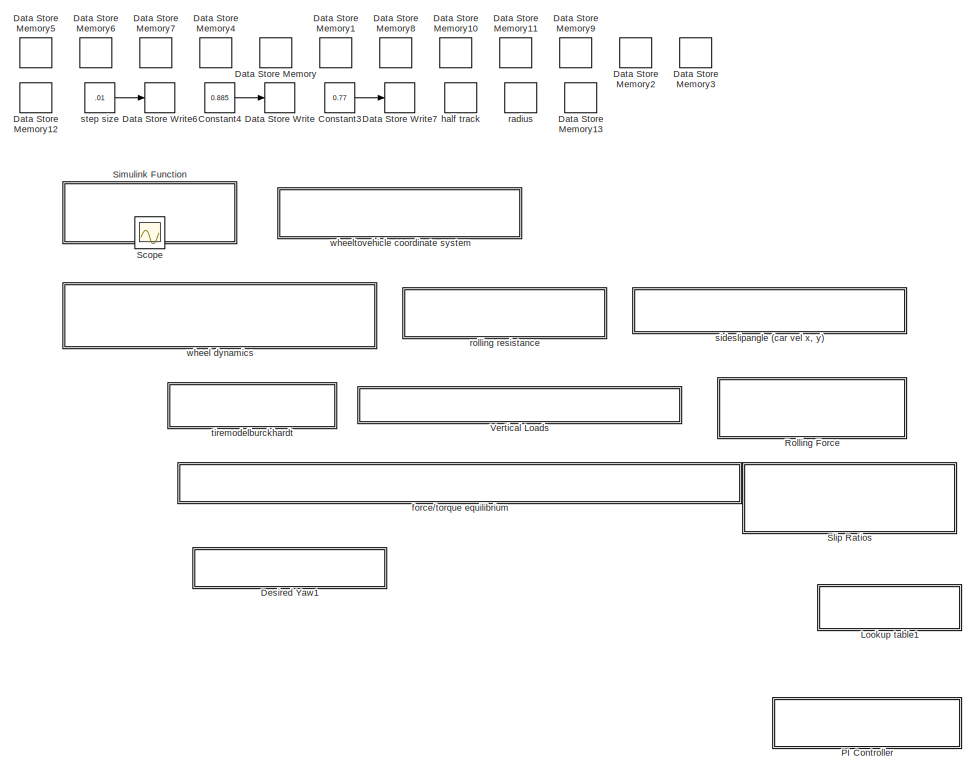
[diagram: root canvas - part 1/2, right side, full height]
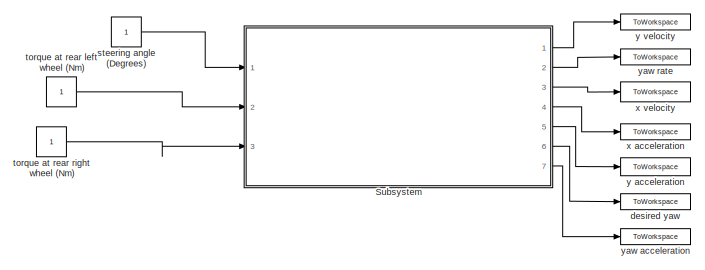
[diagram: root canvas - part 2/2, middle left region]
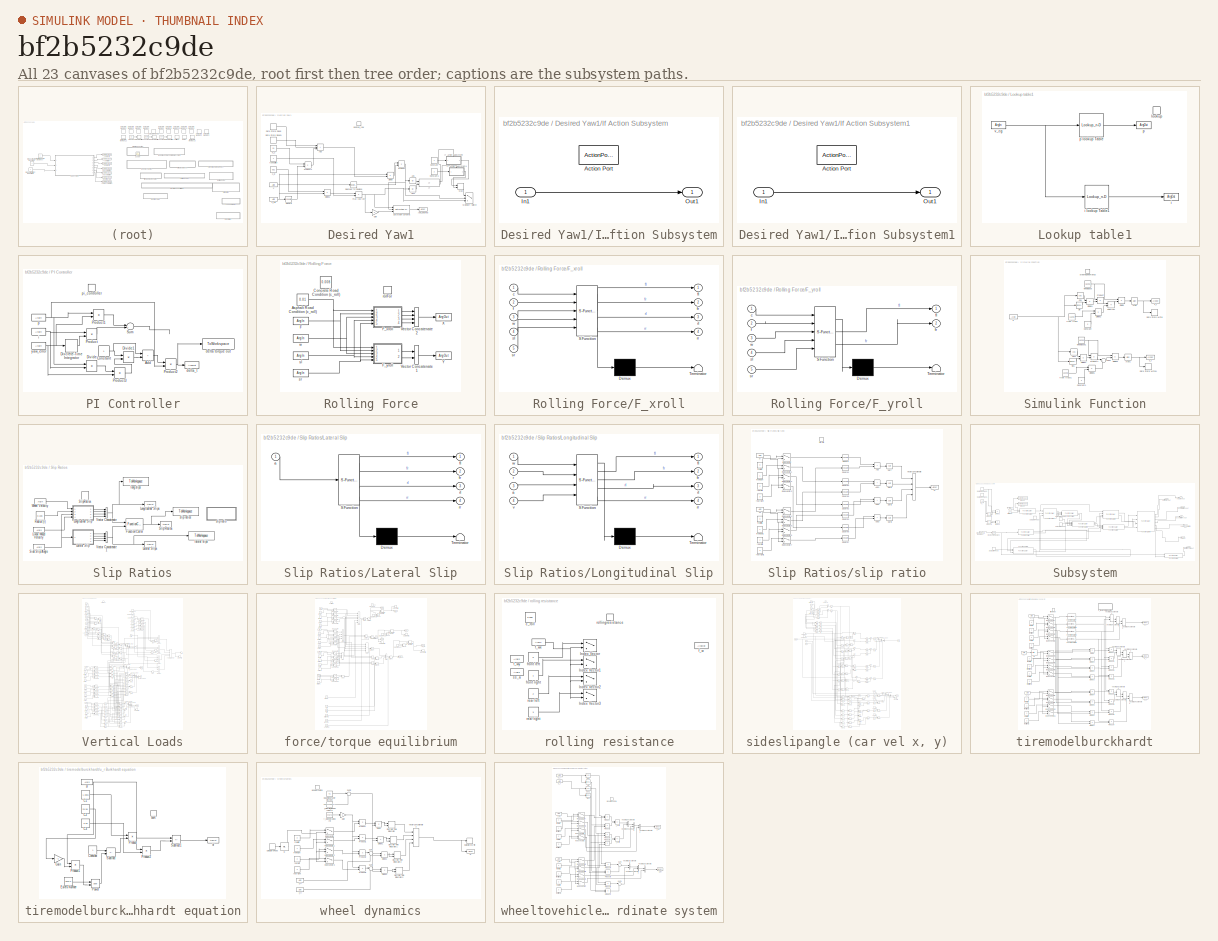
[diagram: thumbnail index - all 23 canvases of the model, root first then tree order]
MODEL slx_bf2b5232c9de
KIND model
CONFIG AbsTol = auto
CONFIG EnableMultiTasking = off
CONFIG FixedStep = 0.01
CONFIG MaxStep = auto
CONFIG MinStep = auto
CONFIG RelTol = 1e-3
CONFIG SampleTimeConstraint = Unconstrained
CONFIG SolverName = FixedStepAuto
CONFIG StartTime = 0.0
CONFIG StopTime = 5
BLOCK [Constant] Constant3
  Value = 0.77
BLOCK [Constant] Constant4
  Value = 0.885
BLOCK [DataStoreMemory] Data Store Memory
  DataStoreName = v_x
  InitialValue = 0.1
  OutMax = 20
  OutMin = -10
  ShowAdditionalParam = off
  WriteAfterWriteMsg = warning
BLOCK [DataStoreMemory] Data Store Memory1
  DataStoreName = v_y
  InitialValue = 0.0001
  ShowAdditionalParam = off
  WriteAfterWriteMsg = warning
BLOCK [DataStoreMemory] Data Store Memory10
  DataStoreName = a_y
  ShowAdditionalParam = off
  WriteAfterWriteMsg = warning
BLOCK [DataStoreMemory] Data Store Memory11
  DataStoreName = step_size
  InitialValue = 0.01
  ShowAdditionalParam = off
  WriteAfterWriteMsg = warning
BLOCK [DataStoreMemory] Data Store Memory12
  DataStoreName = f_wx
  InitialValue = [0.1, 0.1, 0.1, 0.1]
  ShowAdditionalParam = off
  WriteAfterWriteMsg = warning
BLOCK [DataStoreMemory] Data Store Memory13
  DataStoreName = ss_a
  InitialValue = [0, 0, 0, 0]
  ShowAdditionalParam = off
  WriteAfterWriteMsg = warning
BLOCK [DataStoreMemory] Data Store Memory2
  DataStoreName = l_r
  ShowAdditionalParam = off
  WriteAfterWriteMsg = warning
BLOCK [DataStoreMemory] Data Store Memory3
  DataStoreName = l_f
  ShowAdditionalParam = off
  WriteAfterWriteMsg = warning
BLOCK [DataStoreMemory] Data Store Memory4
  DataStoreName = yaw_rate
  InitialValue = 0.001
  ShowAdditionalParam = off
  WriteAfterWriteMsg = warning
BLOCK [DataStoreMemory] Data Store Memory5
  DataStoreName = s_l
  ShowAdditionalParam = off
  WriteAfterWriteMsg = warning
BLOCK [DataStoreMemory] Data Store Memory6
  DataStoreName = s_r
  ShowAdditionalParam = off
  WriteAfterWriteMsg = warning
BLOCK [DataStoreMemory] Data Store Memory7
  DataStoreName = w_ang
  Dimensions = 4
  ShowAdditionalParam = off
  WriteAfterWriteMsg = warning
BLOCK [DataStoreMemory] Data Store Memory8
  DataStoreName = f_xroll
  Dimensions = 4
  InitialValue = [.01, .01, .01, .01]
  ShowAdditionalParam = off
  WriteAfterWriteMsg = warning
BLOCK [DataStoreMemory] Data Store Memory9
  DataStoreName = a_x
  ShowAdditionalParam = off
  WriteAfterWriteMsg = warning
BLOCK [DataStoreWrite] Data Store Write
  DataStoreName = l_r
  IndexOptions = Index vector (dialog)
  Indices = 1
  OutputSizes = 1
  Ports = [1]
BLOCK [DataStoreWrite] Data Store Write6
  DataStoreName = step_size
  IndexOptions = Index vector (dialog)
  Indices = 1
  OutputSizes = 1
  Ports = [1]
BLOCK [DataStoreWrite] Data Store Write7
  DataStoreName = l_f
  IndexOptions = Index vector (dialog)
  Indices = 1
  OutputSizes = 1
  Ports = [1]
BLOCK [SubSystem] Desired Yaw1
  Ports = [0, 0, 0, 1]
  RequestExecContextInheritance = off
  TreatAsAtomicUnit = on
BLOCK [Abs] Desired Yaw1/Abs
  SaturateOnIntegerOverflow = off
BLOCK [Abs] Desired Yaw1/Abs1
  SaturateOnIntegerOverflow = off
BLOCK [Sum] Desired Yaw1/Add
  IconShape = rectangular
  Inputs = +++
  Ports = [3, 1]
BLOCK [Constant] Desired Yaw1/Constant
BLOCK [Constant] Desired Yaw1/Constant1
  Value = 2
BLOCK [DataStoreRead] Desired Yaw1/Data Store Read
  DataStoreName = l_f
  IndexOptions = Index vector (dialog)
  Indices = 1
  OutputSizes = 1
  Ports = [0, 1]
BLOCK [DataStoreRead] Desired Yaw1/Data Store Read1
  DataStoreName = l_r
  IndexOptions = Index vector (dialog)
  Indices = 1
  OutputSizes = 1
  Ports = [0, 1]
BLOCK [Reference] Desired Yaw1/Degrees to Radians  REF=simulink_extras/Transformations/Degrees to
Radians
  Ports = [1, 1]
  SourceBlock = simulink_extras/Transformations/Degrees to\nRadians
  SourceProductBaseCode = SL
  SourceType = DegreesToRadians
BLOCK [Product] Desired Yaw1/Divide
  Inputs = */
  Ports = [2, 1]
BLOCK [Product] Desired Yaw1/Divide1
  Inputs = */
  Ports = [2, 1]
BLOCK [Gain] Desired Yaw1/Gain
  Gain = -1
BLOCK [If] Desired Yaw1/If
  IfExpression = u2 < u1
  NumInputs = 2
  Ports = [2, 2]
BLOCK [SubSystem] Desired Yaw1/If Action Subsystem
  Ports = [1, 1, 0, 0, 0, 0, 0, 1]
  RequestExecContextInheritance = off
  TreatAsAtomicUnit = on
BLOCK [ActionPort] Desired Yaw1/If Action Subsystem/Action Port
  ActionPortLabel = else
BLOCK [Inport] Desired Yaw1/If Action Subsystem/In1
BLOCK [Outport] Desired Yaw1/If Action Subsystem/Out1
BLOCK [SubSystem] Desired Yaw1/If Action Subsystem1
  Ports = [1, 1, 0, 0, 0, 0, 0, 1]
  RequestExecContextInheritance = off
  TreatAsAtomicUnit = on
BLOCK [ActionPort] Desired Yaw1/If Action Subsystem1/Action Port
  ActionPortLabel = if(u2 < u1)
BLOCK [Inport] Desired Yaw1/If Action Subsystem1/In1
BLOCK [Outport] Desired Yaw1/If Action Subsystem1/Out1
BLOCK [Constant] Desired Yaw1/K_u
  Value = 0.1
BLOCK [MinMax] Desired Yaw1/Max
  Function = max
  Inputs = 2
  Ports = [2, 1]
BLOCK [MultiPortSwitch] Desired Yaw1/Multiport Switch
  InputSameDT = off
  Inputs = 2
  Ports = [3, 1]
  SaturateOnIntegerOverflow = off
BLOCK [Product] Desired Yaw1/Product
  Ports = [2, 1]
BLOCK [Product] Desired Yaw1/Product1
  Ports = [2, 1]
BLOCK [Reference] Desired Yaw1/Saturation Dynamic  REF=simulink/Discontinuities/Saturation
Dynamic
  Ports = [3, 1]
  SourceBlock = simulink/Discontinuities/Saturation\nDynamic
  SourceProductBaseCode = SL
  SourceType = Saturation Dynamic
BLOCK [Math] Desired Yaw1/Square
  Operator = square
  Ports = [1, 1]
BLOCK [TriggerPort] Desired Yaw1/desired_yaw
  FunctionName = desired_yaw
  FunctionVisibility = scoped
  IsSimulinkFunction = on
  Ports = []
  StatesWhenEnabling = held
  TriggerType = function-call
  VariantControl = (inherit)
BLOCK [Product] Desired Yaw1/max yaw rate
  Ports = [2, 1]
BLOCK [ArgIn] Desired Yaw1/s
  ArgumentName = s
  DisableCoverage = on
BLOCK [Constant] Desired Yaw1/tuneability
BLOCK [Constant] Desired Yaw1/u_g
  Value = 0.52
BLOCK [ArgIn] Desired Yaw1/v_cg
  ArgumentName = v_cg
  Port = 2
BLOCK [ArgOut] Desired Yaw1/yaw_desired
  ArgumentName = yaw_desired
  DisableCoverage = on
BLOCK [SubSystem] Lookup table1
  Commented = on
  Ports = [0, 0, 0, 1]
  RequestExecContextInheritance = off
  TreatAsAtomicUnit = on
BLOCK [ArgOut] Lookup table1/i
  ArgumentName = i
  Port = 2
BLOCK [Lookup_n-D] Lookup table1/i lookup Table1
  BreakpointsForDimension1 = [7 10 13 16 19 22]
  InputPortMap = u0
  InternalRulePriority = Speed
  NumberOfTableDimensions = 1
  Ports = [1, 1]
  RndMeth = Simplest
  Table = [12716.7 12492.5 12040 11536.07 11058.5 13650]
BLOCK [TriggerPort] Lookup table1/lookup
  FunctionName = lookup
  FunctionVisibility = scoped
  IsSimulinkFunction = on
  Ports = []
  StatesWhenEnabling = held
  TriggerType = function-call
  VariantControl = (inherit)
BLOCK [ArgOut] Lookup table1/p
  ArgumentName = p
  DisableCoverage = on
BLOCK [Lookup_n-D] Lookup table1/p lookup Table
  BreakpointsForDimension1 = [7 10 13 16 19 22]
  InputPortMap = u0
  InternalRulePriority = Speed
  NumberOfTableDimensions = 1
  Ports = [1, 1]
  RndMeth = Simplest
  Table = [296.29 392.23 421.72 479.87 396.22 404.79]
BLOCK [ArgIn] Lookup table1/v_cg
  ArgumentName = v_cg
  DisableCoverage = on
BLOCK [SubSystem] PI Controller
  Commented = on
  Ports = [0, 0, 0, 1]
  RequestExecContextInheritance = off
  TreatAsAtomicUnit = on
BLOCK [Sum] PI Controller/Add
  IconShape = rectangular
  Ports = [2, 1]
BLOCK [Constant] PI Controller/Constant
BLOCK [DiscreteIntegrator] PI Controller/Discrete-Time Integrator
  ICPrevOutput = DiscIntNeverNeededParam
  ICPrevScaledInput = DiscIntNeverNeededParam
  InitialConditionSetting = Auto
  Ports = [1, 1]
  SampleTime = -1
BLOCK [Product] PI Controller/Divide
  Inputs = */
  Ports = [2, 1]
BLOCK [Product] PI Controller/Divide1
  Inputs = */
  Ports = [2, 1]
BLOCK [Product] PI Controller/Product
  Ports = [2, 1]
BLOCK [Product] PI Controller/Product1
  Ports = [2, 1]
BLOCK [Product] PI Controller/Product2
  Ports = [2, 1]
BLOCK [Product] PI Controller/Product3
  Ports = [2, 1]
BLOCK [Sum] PI Controller/Sum
  Inputs = |++
  Ports = [2, 1]
BLOCK [ToWorkspace] PI Controller/delta torque out
  FixptAsFi = on
  MaxDataPoints = inf
  Ports = [1]
  SampleTime = -1
  SaveFormat = Timeseries
  VariableName = simout2
BLOCK [ArgOut] PI Controller/delta_t
  ArgumentName = delta_t
  DisableCoverage = on
BLOCK [ArgIn] PI Controller/i
  ArgumentName = i
  Port = 2
BLOCK [ArgIn] PI Controller/p
  ArgumentName = p
  DisableCoverage = on
BLOCK [TriggerPort] PI Controller/pi_controller
  FunctionName = pi_controller
  FunctionVisibility = scoped
  IsSimulinkFunction = on
  Ports = []
  StatesWhenEnabling = held
  TriggerType = function-call
  VariantControl = (inherit)
BLOCK [ArgIn] PI Controller/yaw_error
  ArgumentName = yaw_error
  Port = 3
BLOCK [SubSystem] Rolling Force
  Ports = [0, 0, 0, 1]
  RequestExecContextInheritance = off
  TreatAsAtomicUnit = on
BLOCK [Constant] Rolling Force/Asphalt Road Condition (c_roll)
  Value = 0.01
BLOCK [Constant] Rolling Force/Concrete Road Condition (c_roll)
  Value = 0.008
BLOCK [ArgIn] Rolling Force/F
  ArgumentName = F
  Port = 4
  PortDimensions = 4
BLOCK [SubSystem] Rolling Force/F_xroll
  ErrorFcn = Stateflow.Translate.translate
  PermitHierarchicalResolution = ExplicitOnly
  Ports = [5, 4]
  RequestExecContextInheritance = off
  SFBlockType = MATLAB Function
  TreatAsAtomicUnit = on
BLOCK [Demux] Rolling Force/F_xroll/ Demux 
  Outputs = 1
  Ports = [1, 1]
BLOCK [S-Function] Rolling Force/F_xroll/ SFunction 
  EnableBusSupport = on
  FunctionName = sf_sfun
  PortCounts = [5 5]
  Ports = [5, 5]
  SFcnIsStateOwnerBlock = off
  SFunctionDeploymentMode = off
  Tag = Stateflow S-Function 7
BLOCK [Terminator] Rolling Force/F_xroll/ Terminator 
BLOCK [Inport] Rolling Force/F_xroll/c
BLOCK [Inport] Rolling Force/F_xroll/f
  Port = 2
BLOCK [Outport] Rolling Force/F_xroll/fl
BLOCK [Outport] Rolling Force/F_xroll/fr
  Port = 2
BLOCK [Outport] Rolling Force/F_xroll/rl
  Port = 3
BLOCK [Outport] Rolling Force/F_xroll/rr
  Port = 4
BLOCK [Inport] Rolling Force/F_xroll/sl
  Port = 4
BLOCK [Inport] Rolling Force/F_xroll/sr
  Port = 5
BLOCK [Inport] Rolling Force/F_xroll/w
  Port = 3
BLOCK [SubSystem] Rolling Force/F_yroll
  ErrorFcn = Stateflow.Translate.translate
  PermitHierarchicalResolution = ExplicitOnly
  Ports = [5, 2]
  RequestExecContextInheritance = off
  SFBlockType = MATLAB Function
  TreatAsAtomicUnit = on
BLOCK [Demux] Rolling Force/F_yroll/ Demux 
  Outputs = 1
  Ports = [1, 1]
BLOCK [S-Function] Rolling Force/F_yroll/ SFunction 
  EnableBusSupport = on
  FunctionName = sf_sfun
  PortCounts = [5 3]
  Ports = [5, 3]
  SFcnIsStateOwnerBlock = off
  SFunctionDeploymentMode = off
  Tag = Stateflow S-Function 6
BLOCK [Terminator] Rolling Force/F_yroll/ Terminator 
BLOCK [Inport] Rolling Force/F_yroll/c
BLOCK [Inport] Rolling Force/F_yroll/f
  Port = 2
BLOCK [Outport] Rolling Force/F_yroll/fl
BLOCK [Outport] Rolling Force/F_yroll/fr
  Port = 2
BLOCK [Inport] Rolling Force/F_yroll/sl
  Port = 4
BLOCK [Inport] Rolling Force/F_yroll/sr
  Port = 5
BLOCK [Inport] Rolling Force/F_yroll/w
  Port = 3
BLOCK [Concatenate] Rolling Force/Vector Concatenate1
  Ports = [2, 1]
BLOCK [Concatenate] Rolling Force/Vector Concatenate2
  NumInputs = 4
  Ports = [4, 1]
BLOCK [ArgOut] Rolling Force/X
  ArgumentName = X
  DisableCoverage = on
  PortDimensions = 4
BLOCK [ArgOut] Rolling Force/Y
  ArgumentName = Y
  DisableCoverage = on
  Port = 2
  PortDimensions = 2
BLOCK [TriggerPort] Rolling Force/rolFor
  FunctionName = rolFor
  FunctionVisibility = scoped
  IsSimulinkFunction = on
  Ports = []
  StatesWhenEnabling = held
  TriggerType = function-call
  VariantControl = (inherit)
BLOCK [ArgIn] Rolling Force/sl
  ArgumentName = sl
  DisableCoverage = on
  Port = 2
BLOCK [ArgIn] Rolling Force/sr
  ArgumentName = sr
  DisableCoverage = on
  Port = 3
BLOCK [ArgIn] Rolling Force/w
  ArgumentName = w
  DisableCoverage = on
  PortDimensions = 4
BLOCK [Scope] Scope
  Floating = off
  IOType = viewer
  NumInputPorts = 1
  Ports = []
  ScopeSpecificationString = Simulink.scopes.TimeScopeBlockCfg('CurrentConfiguration', extmgr.ConfigurationSet(extmgr.Configuration('Core','General UI',true),extmgr.Configuration('Core','Source UI',true),extmgr.Configuration('Sources','WiredSimulink',true),extmgr.Configuration('Visuals','Time Domain',true,'SerializedDisplays',{struct('MinYLimReal','-22.46115','MaxYLimReal','202.36886','YLabelReal','','MinYLimMag','0.00000','M...<+1330ch>
BLOCK [SubSystem] Simulink Function
  Ports = [0, 0, 0, 1]
  RequestExecContextInheritance = off
  TreatAsAtomicUnit = on
BLOCK [Trigonometry] Simulink Function/Atan
  Operator = atan
  Ports = [1, 1]
BLOCK [Trigonometry] Simulink Function/Atan1
  Operator = atan
  Ports = [1, 1]
BLOCK [Constant] Simulink Function/Constant
  Value = 2
BLOCK [Constant] Simulink Function/Constant1
  Value = 2
BLOCK [Trigonometry] Simulink Function/Cos
  Operator = cos
  Ports = [1, 1]
BLOCK [Trigonometry] Simulink Function/Cos1
  Operator = cos
  Ports = [1, 1]
BLOCK [DataStoreWrite] Simulink Function/Data Store Write
  DataStoreName = s_l
  IndexOptions = Index vector (dialog)
  Indices = 1
  OutputSizes = 1
  Ports = [1]
BLOCK [DataStoreWrite] Simulink Function/Data Store Write1
  DataStoreName = s_r
  IndexOptions = Index vector (dialog)
  Indices = 1
  OutputSizes = 1
  Ports = [1]
BLOCK [Product] Simulink Function/Divide
  Inputs = */
  Ports = [2, 1]
BLOCK [Product] Simulink Function/Divide1
  Inputs = */
  Ports = [2, 1]
BLOCK [Product] Simulink Function/Divide2
  Inputs = */
  Ports = [2, 1]
BLOCK [Product] Simulink Function/Divide3
  Inputs = */
  Ports = [2, 1]
BLOCK [Product] Simulink Function/Divide4
  Inputs = */
  Ports = [2, 1]
BLOCK [Product] Simulink Function/Divide5
  Inputs = */
  Ports = [2, 1]
BLOCK [Product] Simulink Function/Product
  Ports = [2, 1]
BLOCK [Product] Simulink Function/Product1
  Ports = [2, 1]
BLOCK [ArgIn] Simulink Function/S
  ArgumentName = S
  DisableCoverage = on
BLOCK [Trigonometry] Simulink Function/Sin
  Ports = [1, 1]
BLOCK [Trigonometry] Simulink Function/Sin1
  Ports = [1, 1]
BLOCK [Sum] Simulink Function/Subtract
  IconShape = rectangular
  Inputs = +-
  Ports = [2, 1]
BLOCK [Sum] Simulink Function/Sum
  Inputs = |++
  Ports = [2, 1]
BLOCK [Constant] Simulink Function/front track
  Value = 1.3208
BLOCK [Constant] Simulink Function/front track1
  Value = 1.3208
BLOCK [ArgOut] Simulink Function/s_l
  ArgumentName = s_l
  DisableCoverage = on
BLOCK [ArgOut] Simulink Function/s_r
  ArgumentName = s_r
  DisableCoverage = on
  Port = 2
BLOCK [TriggerPort] Simulink Function/steeringkinematics
  FunctionName = steeringkinematics
  FunctionVisibility = scoped
  IsSimulinkFunction = on
  Ports = []
  StatesWhenEnabling = held
  TriggerType = function-call
  VariantControl = (inherit)
BLOCK [Constant] Simulink Function/wheelbase
  Value = 1.6256
BLOCK [Constant] Simulink Function/wheelbase1
  Value = 1.6256
BLOCK [SubSystem] Slip Ratios
  Ports = [0, 0, 0, 1]
  RequestExecContextInheritance = off
  TreatAsAtomicUnit = on
BLOCK [FunctionCaller] Slip Ratios/Function Caller
  FunctionPrototype = sr = slipratio(sl,ss)
  InputArgumentSpecifications = <Enter example>
  OutputArgumentSpecifications = <Enter example>
  Ports = [2, 1]
BLOCK [SubSystem] Slip Ratios/Lateral Slip
  ErrorFcn = Stateflow.Translate.translate
  PermitHierarchicalResolution = ExplicitOnly
  Ports = [1, 4]
  RequestExecContextInheritance = off
  SFBlockType = MATLAB Function
  TreatAsAtomicUnit = on
BLOCK [Demux] Slip Ratios/Lateral Slip/ Demux 
  Outputs = 1
  Ports = [1, 1]
BLOCK [S-Function] Slip Ratios/Lateral Slip/ SFunction 
  EnableBusSupport = on
  FunctionName = sf_sfun
  PortCounts = [1 5]
  Ports = [1, 5]
  SFcnIsStateOwnerBlock = off
  SFunctionDeploymentMode = off
  Tag = Stateflow S-Function 5
BLOCK [Terminator] Slip Ratios/Lateral Slip/ Terminator 
BLOCK [Inport] Slip Ratios/Lateral Slip/a
BLOCK [Outport] Slip Ratios/Lateral Slip/fl
BLOCK [Outport] Slip Ratios/Lateral Slip/fr
  Port = 2
BLOCK [Outport] Slip Ratios/Lateral Slip/rl
  Port = 3
BLOCK [Outport] Slip Ratios/Lateral Slip/rr
  Port = 4
BLOCK [ArgOut] Slip Ratios/Lateral Slips
  ArgumentName = s_s
  DisableCoverage = on
  Port = 2
  PortDimensions = 4
BLOCK [ArgIn] Slip Ratios/Linear Wheel Velocity
  ArgumentName = v
  DisableCoverage = on
  Port = 3
  PortDimensions = 4
BLOCK [SubSystem] Slip Ratios/Longitudinal Slip
  ErrorFcn = Stateflow.Translate.translate
  PermitHierarchicalResolution = ExplicitOnly
  Ports = [4, 4]
  RequestExecContextInheritance = off
  SFBlockType = MATLAB Function
  TreatAsAtomicUnit = on
BLOCK [Demux] Slip Ratios/Longitudinal Slip/ Demux 
  Outputs = 1
  Ports = [1, 1]
BLOCK [S-Function] Slip Ratios/Longitudinal Slip/ SFunction 
  EnableBusSupport = on
  FunctionName = sf_sfun
  PortCounts = [4 5]
  Ports = [4, 5]
  SFcnIsStateOwnerBlock = off
  SFunctionDeploymentMode = off
  Tag = Stateflow S-Function 2
BLOCK [Terminator] Slip Ratios/Longitudinal Slip/ Terminator 
BLOCK [Inport] Slip Ratios/Longitudinal Slip/a
  Port = 3
BLOCK [Outport] Slip Ratios/Longitudinal Slip/fl
BLOCK [Outport] Slip Ratios/Longitudinal Slip/fr
  Port = 2
BLOCK [Inport] Slip Ratios/Longitudinal Slip/r
  Port = 2
BLOCK [Outport] Slip Ratios/Longitudinal Slip/rl
  Port = 3
BLOCK [Outport] Slip Ratios/Longitudinal Slip/rr
  Port = 4
BLOCK [Inport] Slip Ratios/Longitudinal Slip/v
  Port = 4
BLOCK [Inport] Slip Ratios/Longitudinal Slip/w
BLOCK [ArgOut] Slip Ratios/Longitudinal Slips
  ArgumentName = s_l
  DisableCoverage = on
  PortDimensions = 4
BLOCK [Constant] Slip Ratios/Radius (r)
  Value = 0.228
BLOCK [ArgIn] Slip Ratios/Side Slip Angle
  ArgumentName = a
  DisableCoverage = on
  Port = 2
  PortDimensions = 4
BLOCK [ArgOut] Slip Ratios/Slip Ratios
  ArgumentName = s_r
  DisableCoverage = on
  Port = 3
  PortDimensions = 4
BLOCK [TriggerPort] Slip Ratios/SlipRatios
  FunctionName = slipRat
  FunctionVisibility = scoped
  IsSimulinkFunction = on
  Ports = []
  StatesWhenEnabling = held
  TriggerType = function-call
  VariantControl = (inherit)
BLOCK [Concatenate] Slip Ratios/Vector Concatenate
  NameLocation = right
  NumInputs = 4
  Ports = [4, 1]
BLOCK [Concatenate] Slip Ratios/Vector Concatenate1
  NameLocation = right
  NumInputs = 4
  Ports = [4, 1]
BLOCK [ArgIn] Slip Ratios/Wheel Velocity
  ArgumentName = w
  DisableCoverage = on
  PortDimensions = 4
BLOCK [ToWorkspace] Slip Ratios/lateral slips
  FixptAsFi = on
  MaxDataPoints = inf
  Ports = [1]
  SampleTime = -1
  SaveFormat = Timeseries
  VariableName = s_s_out
BLOCK [ToWorkspace] Slip Ratios/long slips
  FixptAsFi = on
  MaxDataPoints = inf
  Ports = [1]
  SampleTime = -1
  SaveFormat = Timeseries
  VariableName = s_l_out
BLOCK [SubSystem] Slip Ratios/slip ratio
  Ports = [0, 0, 0, 1]
  RequestExecContextInheritance = off
  TreatAsAtomicUnit = on
BLOCK [Sum] Slip Ratios/slip ratio/Add
  IconShape = rectangular
  Ports = [2, 1]
BLOCK [Sum] Slip Ratios/slip ratio/Add1
  IconShape = rectangular
  Ports = [2, 1]
BLOCK [Sum] Slip Ratios/slip ratio/Add2
  IconShape = rectangular
  Ports = [2, 1]
BLOCK [Sum] Slip Ratios/slip ratio/Add3
  IconShape = rectangular
  Ports = [2, 1]
BLOCK [MultiPortSwitch] Slip Ratios/slip ratio/Index Vector
  DataPortOrder = Zero-based contiguous
  InputSameDT = off
  Inputs = 1
  Ports = [2, 1]
  SaturateOnIntegerOverflow = off
  zeroidx = on
BLOCK [MultiPortSwitch] Slip Ratios/slip ratio/Index Vector1
  DataPortOrder = Zero-based contiguous
  InputSameDT = off
  Inputs = 1
  Ports = [2, 1]
  SaturateOnIntegerOverflow = off
  zeroidx = on
BLOCK [MultiPortSwitch] Slip Ratios/slip ratio/Index Vector2
  DataPortOrder = Zero-based contiguous
  InputSameDT = off
  Inputs = 1
  Ports = [2, 1]
  SaturateOnIntegerOverflow = off
  zeroidx = on
BLOCK [MultiPortSwitch] Slip Ratios/slip ratio/Index Vector3
  DataPortOrder = Zero-based contiguous
  InputSameDT = off
  Inputs = 1
  Ports = [2, 1]
  SaturateOnIntegerOverflow = off
  zeroidx = on
BLOCK [MultiPortSwitch] Slip Ratios/slip ratio/Index Vector4
  DataPortOrder = Zero-based contiguous
  InputSameDT = off
  Inputs = 1
  Ports = [2, 1]
  SaturateOnIntegerOverflow = off
  zeroidx = on
BLOCK [MultiPortSwitch] Slip Ratios/slip ratio/Index Vector5
  DataPortOrder = Zero-based contiguous
  InputSameDT = off
  Inputs = 1
  Ports = [2, 1]
  SaturateOnIntegerOverflow = off
  zeroidx = on
BLOCK [MultiPortSwitch] Slip Ratios/slip ratio/Index Vector6
  DataPortOrder = Zero-based contiguous
  InputSameDT = off
  Inputs = 1
  Ports = [2, 1]
  SaturateOnIntegerOverflow = off
  zeroidx = on
BLOCK [MultiPortSwitch] Slip Ratios/slip ratio/Index Vector7
  DataPortOrder = Zero-based contiguous
  InputSameDT = off
  Inputs = 1
  Ports = [2, 1]
  SaturateOnIntegerOverflow = off
  zeroidx = on
BLOCK [Sqrt] Slip Ratios/slip ratio/Sqrt
BLOCK [Sqrt] Slip Ratios/slip ratio/Sqrt1
BLOCK [Sqrt] Slip Ratios/slip ratio/Sqrt2
BLOCK [Sqrt] Slip Ratios/slip ratio/Sqrt3
BLOCK [Math] Slip Ratios/slip ratio/Square
  Operator = square
  Ports = [1, 1]
BLOCK [Math] Slip Ratios/slip ratio/Square1
  Operator = square
  Ports = [1, 1]
BLOCK [Math] Slip Ratios/slip ratio/Square2
  Operator = square
  Ports = [1, 1]
BLOCK [Math] Slip Ratios/slip ratio/Square3
  Operator = square
  Ports = [1, 1]
BLOCK [Math] Slip Ratios/slip ratio/Square4
  Operator = square
  Ports = [1, 1]
BLOCK [Math] Slip Ratios/slip ratio/Square5
  Operator = square
  Ports = [1, 1]
BLOCK [Math] Slip Ratios/slip ratio/Square6
  Operator = square
  Ports = [1, 1]
BLOCK [Math] Slip Ratios/slip ratio/Square7
  Operator = square
  Ports = [1, 1]
BLOCK [Concatenate] Slip Ratios/slip ratio/Vector Concatenate
  NumInputs = 4
  Ports = [4, 1]
BLOCK [Constant] Slip Ratios/slip ratio/front left
  Value = 0
BLOCK [Constant] Slip Ratios/slip ratio/front left1
  Value = 0
BLOCK [Constant] Slip Ratios/slip ratio/front right
BLOCK [Constant] Slip Ratios/slip ratio/front right1
BLOCK [Constant] Slip Ratios/slip ratio/rear left
  Value = 2
BLOCK [Constant] Slip Ratios/slip ratio/rear left1
  Value = 2
BLOCK [Constant] Slip Ratios/slip ratio/rear right
  Value = 3
BLOCK [Constant] Slip Ratios/slip ratio/rear right1
  Value = 3
BLOCK [ArgIn] Slip Ratios/slip ratio/sl
  ArgumentName = sl
  DisableCoverage = on
  PortDimensions = 4
BLOCK [TriggerPort] Slip Ratios/slip ratio/slipratio
  FunctionName = slipratio
  FunctionVisibility = scoped
  IsSimulinkFunction = on
  Ports = []
  StatesWhenEnabling = held
  TriggerType = function-call
  VariantControl = (inherit)
BLOCK [ArgOut] Slip Ratios/slip ratio/sr
  ArgumentName = sr
  DisableCoverage = on
  PortDimensions = 4
BLOCK [ArgIn] Slip Ratios/slip ratio/ss
  ArgumentName = ss
  Port = 2
  PortDimensions = 4
BLOCK [ToWorkspace] Slip Ratios/slip ratios
  FixptAsFi = on
  MaxDataPoints = inf
  Ports = [1]
  SampleTime = -1
  SaveFormat = Timeseries
  VariableName = s_r_out
BLOCK [SubSystem] Subsystem
  Ports = [3, 7]
  RequestExecContextInheritance = off
BLOCK [DataStoreRead] Subsystem/Data Store Read
  DataStoreName = yaw_rate
  IndexOptions = Index vector (dialog)
  Indices = 1
  OutputSizes = 1
  Ports = [0, 1]
BLOCK [DataStoreRead] Subsystem/Data Store Read3
  DataStoreName = a_x
  IndexOptions = Index vector (dialog)
  Indices = 1
  OutputSizes = 1
  Ports = [0, 1]
BLOCK [DataStoreRead] Subsystem/Data Store Read4
  DataStoreName = a_y
  IndexOptions = Index vector (dialog)
  Indices = 1
  OutputSizes = 1
  Ports = [0, 1]
BLOCK [DataStoreRead] Subsystem/Data Store Read5
  Commented = on
  DataStoreName = t_r
  IndexOptions = Index vector (dialog)
  Indices = 1
  OutputSizes = 1
  Ports = [0, 1]
BLOCK [DataStoreRead] Subsystem/Data Store Read6
  Commented = on
  DataStoreName = r_w
  IndexOptions = Index vector (dialog)
  Indices = 1
  OutputSizes = 1
  Ports = [0, 1]
BLOCK [DataStoreRead] Subsystem/Data Store Read7
  DataStoreName = ss_a
  IndexOptions = Index vector (dialog)
  Indices = 1
  OutputSizes = 1
  Ports = [0, 1]
BLOCK [Reference] Subsystem/Degrees to Radians  REF=simulink_extras/Transformations/Degrees to
Radians
  Ports = [1, 1]
  SourceBlock = simulink_extras/Transformations/Degrees to\nRadians
  SourceProductBaseCode = SL
  SourceType = DegreesToRadians
BLOCK [Outport] Subsystem/Desired yaw out
  Port = 6
BLOCK [Product] Subsystem/Divide3
  Commented = on
  Inputs = */
  Ports = [2, 1]
BLOCK [Product] Subsystem/Divide4
  Commented = on
  Inputs = */
  Ports = [2, 1]
BLOCK [FunctionCaller] Subsystem/Function Caller
  FunctionPrototype = [s_l,s_r] = steeringkinematics(S)
  InputArgumentSpecifications = <Enter example>
  OutputArgumentSpecifications = <Enter example>
  Ports = [1, 2]
BLOCK [FunctionCaller] Subsystem/Function Caller1
  FunctionPrototype = w = wheeldynamics(t_rr,t_rl)
  InputArgumentSpecifications = <Enter example>
  OutputArgumentSpecifications = <Enter example>
  Ports = [2, 1]
BLOCK [FunctionCaller] Subsystem/Function Caller2
  FunctionPrototype = [u_r,u_l,u_s] = tiremodel(s_r,s_l,s_s)
  InputArgumentSpecifications = <Enter example>
  OutputArgumentSpecifications = <Enter example>
  Ports = [3, 3]
BLOCK [FunctionCaller] Subsystem/Function Caller3
  FunctionPrototype = [f_z,f_wl,f_wy,f_wx,f_xroll] = verticalloads(a_x,a_y,ss_a,u_l,u_s)
  InputArgumentSpecifications = <Enter example>
  OutputArgumentSpecifications = <Enter example>
  Ports = [5, 5]
BLOCK [FunctionCaller] Subsystem/Function Caller4
  FunctionPrototype = [f_bx,f_by] = wheeltovehicle(f_wx,f_wy,s_l,s_r)
  OutputArgumentSpecifications = <Enter example>
  Ports = [4, 2]
BLOCK [FunctionCaller] Subsystem/Function Caller5
  FunctionPrototype = [v_w,ss_a] = sideslipangle(yaw_rate,s_l,s_r)
  InputArgumentSpecifications = <Enter example>
  OutputArgumentSpecifications = <Enter example>
  Ports = [3, 2]
BLOCK [FunctionCaller] Subsystem/Function Caller6
  FunctionPrototype = [v_x,v_y,a_x,a_y,yaw_rate,yaw_accel] = equilibrium(f_bx,f_by,f_bxroll,f_byroll)
  InputArgumentSpecifications = <Enter example>
  OutputArgumentSpecifications = <Enter example>
  Ports = [4, 6]
BLOCK [FunctionCaller] Subsystem/Function Caller7
  FunctionPrototype = [s_l,s_s,s_r] = slipRat(w,a,v)
  InputArgumentSpecifications = <Enter example>
  OutputArgumentSpecifications = <Enter example>
  Ports = [3, 3]
BLOCK [FunctionCaller] Subsystem/Function Caller8
  FunctionPrototype = [X,Y] = rolFor(w,sl,sr,F)
  InputArgumentSpecifications = <Enter example>
  OutputArgumentSpecifications = <Enter example>
  Ports = [4, 2]
BLOCK [FunctionCaller] Subsystem/Function Caller9
  FunctionPrototype = yaw_desired = desired_yaw(s,v_cg)
  InputArgumentSpecifications = <Enter example>
  OutputArgumentSpecifications = <Enter example>
  Ports = [2, 1]
BLOCK [Constant] Subsystem/G_r
  Commented = on
  Value = 4.4
BLOCK [Product] Subsystem/Product1
  Commented = on
  Ports = [2, 1]
BLOCK [Product] Subsystem/Product2
  Commented = on
  Ports = [2, 1]
BLOCK [Outport] Subsystem/acceleration x out
  Port = 4
BLOCK [Outport] Subsystem/acceleration y out
  Port = 5
BLOCK [Inport] Subsystem/left forque
  Port = 2
BLOCK [Inport] Subsystem/right torque
  Port = 3
BLOCK [Inport] Subsystem/steering angle (degrees)
BLOCK [ToWorkspace] Subsystem/torque rl
  FixptAsFi = on
  MaxDataPoints = inf
  Ports = [1]
  SampleTime = -1
  SaveFormat = Timeseries
  VariableName = simout1
BLOCK [ToWorkspace] Subsystem/torque rr
  FixptAsFi = on
  MaxDataPoints = inf
  Ports = [1]
  SampleTime = -1
  SaveFormat = Timeseries
  VariableName = simout
BLOCK [Outport] Subsystem/velocity x out
  Port = 3
BLOCK [Outport] Subsystem/velocity y out
BLOCK [Outport] Subsystem/yaw acceleration out
  Port = 7
BLOCK [Outport] Subsystem/yaw out
  Port = 2
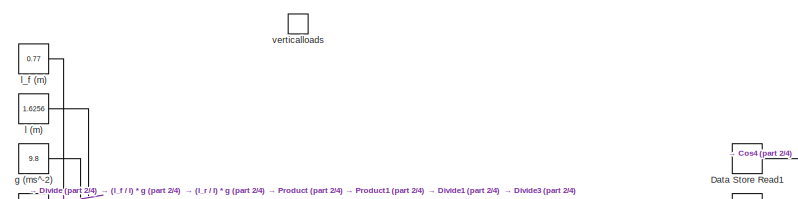
[diagram: Vertical Loads - part 1/4, top left region]
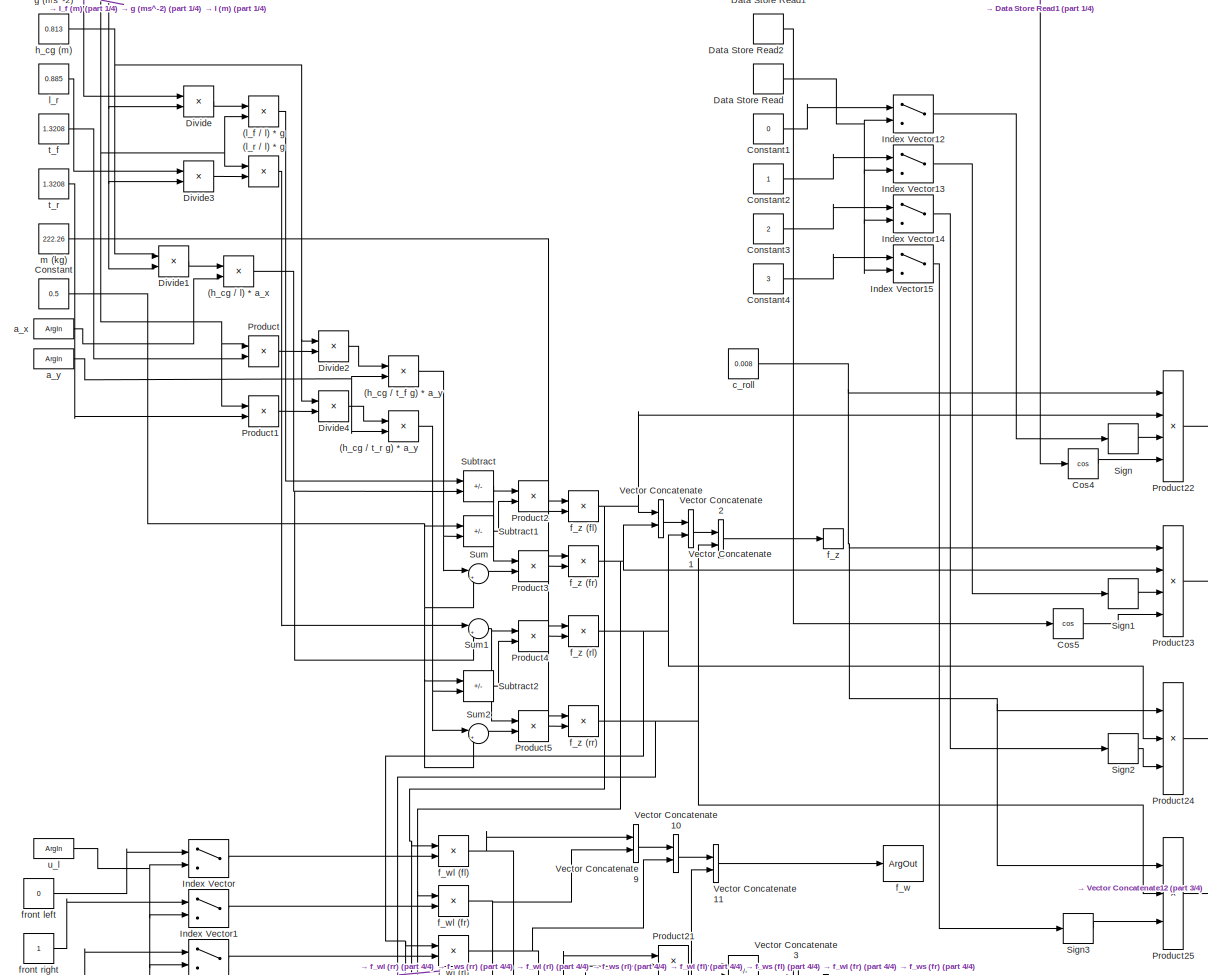
[diagram: Vertical Loads - part 2/4, full width, middle band]
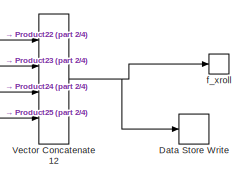
[diagram: Vertical Loads - part 3/4, middle right region]
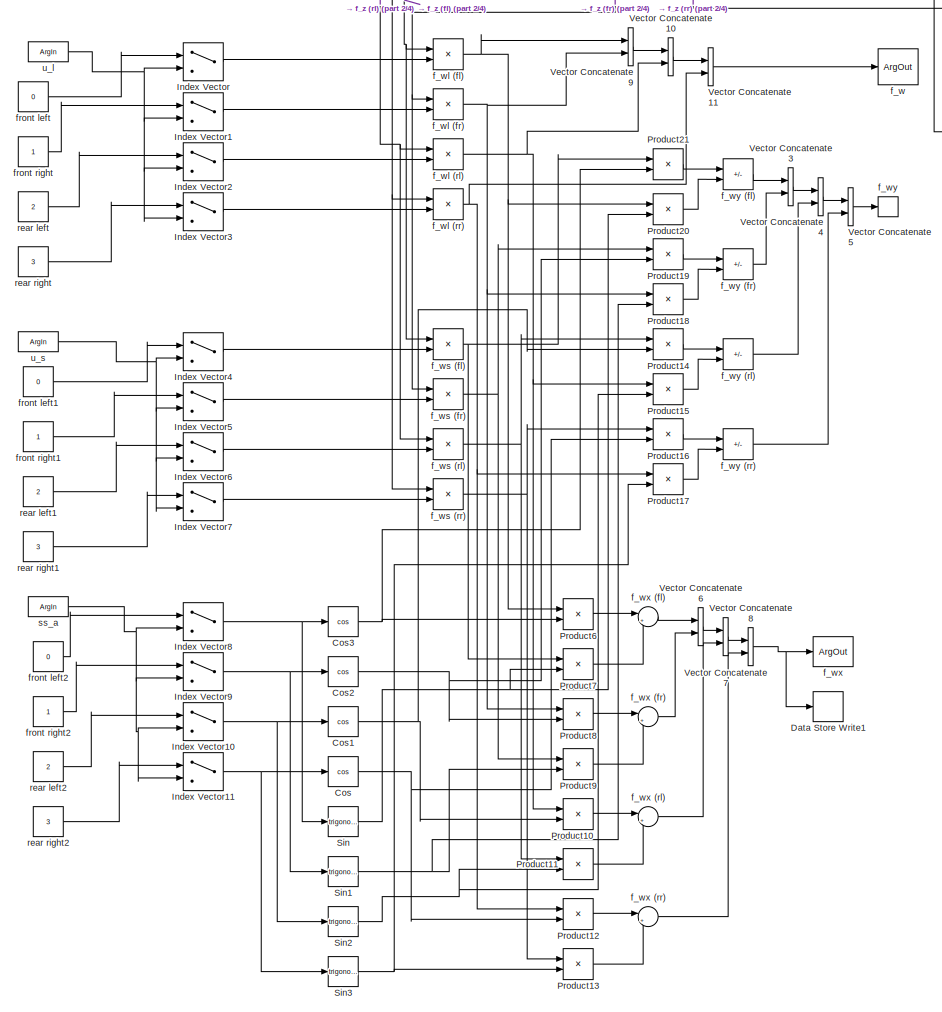
[diagram: Vertical Loads - part 4/4, bottom left region]
BLOCK [SubSystem] Vertical Loads
  Ports = [0, 0, 0, 1]
  RequestExecContextInheritance = off
  TreatAsAtomicUnit = on
BLOCK [Product] Vertical Loads/(h_cg // l) * a_x
  Ports = [2, 1]
BLOCK [Product] Vertical Loads/(h_cg // t_f g) * a_y
  Ports = [2, 1]
BLOCK [Product] Vertical Loads/(h_cg // t_r g) * a_y
  Ports = [2, 1]
BLOCK [Product] Vertical Loads/(l_f // l) * g
  Ports = [2, 1]
BLOCK [Product] Vertical Loads/(l_r // l) * g
  Ports = [2, 1]
BLOCK [Constant] Vertical Loads/Constant
  Value = 0.5
BLOCK [Constant] Vertical Loads/Constant1
  Value = 0
BLOCK [Constant] Vertical Loads/Constant2
BLOCK [Constant] Vertical Loads/Constant3
  Value = 2
BLOCK [Constant] Vertical Loads/Constant4
  Value = 3
BLOCK [Trigonometry] Vertical Loads/Cos
  Operator = cos
  Ports = [1, 1]
BLOCK [Trigonometry] Vertical Loads/Cos1
  Operator = cos
  Ports = [1, 1]
BLOCK [Trigonometry] Vertical Loads/Cos2
  Operator = cos
  Ports = [1, 1]
BLOCK [Trigonometry] Vertical Loads/Cos3
  Operator = cos
  Ports = [1, 1]
BLOCK [Trigonometry] Vertical Loads/Cos4
  Operator = cos
  Ports = [1, 1]
BLOCK [Trigonometry] Vertical Loads/Cos5
  Operator = cos
  Ports = [1, 1]
BLOCK [DataStoreRead] Vertical Loads/Data Store Read
  DataStoreName = w_ang
  IndexOptions = Index vector (dialog)
  Indices = 1
  OutputSizes = 1
  Ports = [0, 1]
BLOCK [DataStoreRead] Vertical Loads/Data Store Read1
  DataStoreName = s_l
  IndexOptions = Index vector (dialog)
  Indices = 1
  OutputSizes = 1
  Ports = [0, 1]
BLOCK [DataStoreRead] Vertical Loads/Data Store Read2
  DataStoreName = s_r
  IndexOptions = Index vector (dialog)
  Indices = 1
  OutputSizes = 1
  Ports = [0, 1]
BLOCK [DataStoreWrite] Vertical Loads/Data Store Write
  DataStoreName = f_xroll
  IndexOptions = Index vector (dialog)
  Indices = 1
  OutputSizes = 1
  Ports = [1]
BLOCK [DataStoreWrite] Vertical Loads/Data Store Write1
  DataStoreName = f_wx
  IndexOptions = Index vector (dialog)
  Indices = 1
  OutputSizes = 1
  Ports = [1]
BLOCK [Product] Vertical Loads/Divide
  Inputs = */
  Ports = [2, 1]
BLOCK [Product] Vertical Loads/Divide1
  Inputs = */
  Ports = [2, 1]
BLOCK [Product] Vertical Loads/Divide2
  Inputs = */
  Ports = [2, 1]
BLOCK [Product] Vertical Loads/Divide3
  Inputs = */
  Ports = [2, 1]
BLOCK [Product] Vertical Loads/Divide4
  Inputs = */
  Ports = [2, 1]
BLOCK [MultiPortSwitch] Vertical Loads/Index Vector
  DataPortOrder = Zero-based contiguous
  InputSameDT = off
  Inputs = 1
  Ports = [2, 1]
  SaturateOnIntegerOverflow = off
  zeroidx = on
BLOCK [MultiPortSwitch] Vertical Loads/Index Vector1
  DataPortOrder = Zero-based contiguous
  InputSameDT = off
  Inputs = 1
  Ports = [2, 1]
  SaturateOnIntegerOverflow = off
  zeroidx = on
BLOCK [MultiPortSwitch] Vertical Loads/Index Vector10
  DataPortOrder = Zero-based contiguous
  InputSameDT = off
  Inputs = 1
  Ports = [2, 1]
  SaturateOnIntegerOverflow = off
  zeroidx = on
BLOCK [MultiPortSwitch] Vertical Loads/Index Vector11
  DataPortOrder = Zero-based contiguous
  InputSameDT = off
  Inputs = 1
  Ports = [2, 1]
  SaturateOnIntegerOverflow = off
  zeroidx = on
BLOCK [MultiPortSwitch] Vertical Loads/Index Vector12
  DataPortOrder = Zero-based contiguous
  InputSameDT = off
  Inputs = 1
  Ports = [2, 1]
  SaturateOnIntegerOverflow = off
  zeroidx = on
BLOCK [MultiPortSwitch] Vertical Loads/Index Vector13
  DataPortOrder = Zero-based contiguous
  InputSameDT = off
  Inputs = 1
  Ports = [2, 1]
  SaturateOnIntegerOverflow = off
  zeroidx = on
BLOCK [MultiPortSwitch] Vertical Loads/Index Vector14
  DataPortOrder = Zero-based contiguous
  InputSameDT = off
  Inputs = 1
  Ports = [2, 1]
  SaturateOnIntegerOverflow = off
  zeroidx = on
BLOCK [MultiPortSwitch] Vertical Loads/Index Vector15
  DataPortOrder = Zero-based contiguous
  InputSameDT = off
  Inputs = 1
  Ports = [2, 1]
  SaturateOnIntegerOverflow = off
  zeroidx = on
BLOCK [MultiPortSwitch] Vertical Loads/Index Vector2
  DataPortOrder = Zero-based contiguous
  InputSameDT = off
  Inputs = 1
  Ports = [2, 1]
  SaturateOnIntegerOverflow = off
  zeroidx = on
BLOCK [MultiPortSwitch] Vertical Loads/Index Vector3
  DataPortOrder = Zero-based contiguous
  InputSameDT = off
  Inputs = 1
  Ports = [2, 1]
  SaturateOnIntegerOverflow = off
  zeroidx = on
BLOCK [MultiPortSwitch] Vertical Loads/Index Vector4
  DataPortOrder = Zero-based contiguous
  InputSameDT = off
  Inputs = 1
  Ports = [2, 1]
  SaturateOnIntegerOverflow = off
  zeroidx = on
BLOCK [MultiPortSwitch] Vertical Loads/Index Vector5
  DataPortOrder = Zero-based contiguous
  InputSameDT = off
  Inputs = 1
  Ports = [2, 1]
  SaturateOnIntegerOverflow = off
  zeroidx = on
BLOCK [MultiPortSwitch] Vertical Loads/Index Vector6
  DataPortOrder = Zero-based contiguous
  InputSameDT = off
  Inputs = 1
  Ports = [2, 1]
  SaturateOnIntegerOverflow = off
  zeroidx = on
BLOCK [MultiPortSwitch] Vertical Loads/Index Vector7
  DataPortOrder = Zero-based contiguous
  InputSameDT = off
  Inputs = 1
  Ports = [2, 1]
  SaturateOnIntegerOverflow = off
  zeroidx = on
BLOCK [MultiPortSwitch] Vertical Loads/Index Vector8
  DataPortOrder = Zero-based contiguous
  InputSameDT = off
  Inputs = 1
  Ports = [2, 1]
  SaturateOnIntegerOverflow = off
  zeroidx = on
BLOCK [MultiPortSwitch] Vertical Loads/Index Vector9
  DataPortOrder = Zero-based contiguous
  InputSameDT = off
  Inputs = 1
  Ports = [2, 1]
  SaturateOnIntegerOverflow = off
  zeroidx = on
BLOCK [Product] Vertical Loads/Product
  Ports = [2, 1]
BLOCK [Product] Vertical Loads/Product1
  Ports = [2, 1]
BLOCK [Product] Vertical Loads/Product10
  Ports = [2, 1]
BLOCK [Product] Vertical Loads/Product11
  Ports = [2, 1]
BLOCK [Product] Vertical Loads/Product12
  Ports = [2, 1]
BLOCK [Product] Vertical Loads/Product13
  Ports = [2, 1]
BLOCK [Product] Vertical Loads/Product14
  Ports = [2, 1]
BLOCK [Product] Vertical Loads/Product15
  Ports = [2, 1]
BLOCK [Product] Vertical Loads/Product16
  Ports = [2, 1]
BLOCK [Product] Vertical Loads/Product17
  Ports = [2, 1]
BLOCK [Product] Vertical Loads/Product18
  Ports = [2, 1]
BLOCK [Product] Vertical Loads/Product19
  Ports = [2, 1]
BLOCK [Product] Vertical Loads/Product2
  Ports = [2, 1]
BLOCK [Product] Vertical Loads/Product20
  Ports = [2, 1]
BLOCK [Product] Vertical Loads/Product21
  Ports = [2, 1]
BLOCK [Product] Vertical Loads/Product22
  Inputs = 4
  Ports = [4, 1]
BLOCK [Product] Vertical Loads/Product23
  Inputs = 4
  Ports = [4, 1]
BLOCK [Product] Vertical Loads/Product24
  Inputs = 3
  Ports = [3, 1]
BLOCK [Product] Vertical Loads/Product25
  Inputs = 3
  Ports = [3, 1]
BLOCK [Product] Vertical Loads/Product3
  Ports = [2, 1]
BLOCK [Product] Vertical Loads/Product4
  Ports = [2, 1]
BLOCK [Product] Vertical Loads/Product5
  Ports = [2, 1]
BLOCK [Product] Vertical Loads/Product6
  Ports = [2, 1]
BLOCK [Product] Vertical Loads/Product7
  Ports = [2, 1]
BLOCK [Product] Vertical Loads/Product8
  Ports = [2, 1]
BLOCK [Product] Vertical Loads/Product9
  Ports = [2, 1]
BLOCK [Signum] Vertical Loads/Sign
BLOCK [Signum] Vertical Loads/Sign1
BLOCK [Signum] Vertical Loads/Sign2
BLOCK [Signum] Vertical Loads/Sign3
BLOCK [Trigonometry] Vertical Loads/Sin
  Ports = [1, 1]
BLOCK [Trigonometry] Vertical Loads/Sin1
  Ports = [1, 1]
BLOCK [Trigonometry] Vertical Loads/Sin2
  Ports = [1, 1]
BLOCK [Trigonometry] Vertical Loads/Sin3
  Ports = [1, 1]
BLOCK [Sum] Vertical Loads/Subtract
  IconShape = rectangular
  Inputs = +-
  Ports = [2, 1]
BLOCK [Sum] Vertical Loads/Subtract1
  IconShape = rectangular
  Inputs = +-
  Ports = [2, 1]
BLOCK [Sum] Vertical Loads/Subtract2
  IconShape = rectangular
  Inputs = +-
  Ports = [2, 1]
BLOCK [Sum] Vertical Loads/Sum
  Inputs = |++
  Ports = [2, 1]
BLOCK [Sum] Vertical Loads/Sum1
  Inputs = |++
  Ports = [2, 1]
BLOCK [Sum] Vertical Loads/Sum2
  Inputs = |++
  Ports = [2, 1]
BLOCK [Concatenate] Vertical Loads/Vector Concatenate
  Ports = [2, 1]
BLOCK [Concatenate] Vertical Loads/Vector Concatenate1
  Ports = [2, 1]
BLOCK [Concatenate] Vertical Loads/Vector Concatenate10
  Ports = [2, 1]
BLOCK [Concatenate] Vertical Loads/Vector Concatenate11
  Ports = [2, 1]
BLOCK [Concatenate] Vertical Loads/Vector Concatenate12
  NumInputs = 4
  Ports = [4, 1]
BLOCK [Concatenate] Vertical Loads/Vector Concatenate2
  Ports = [2, 1]
BLOCK [Concatenate] Vertical Loads/Vector Concatenate3
  Ports = [2, 1]
BLOCK [Concatenate] Vertical Loads/Vector Concatenate4
  Ports = [2, 1]
BLOCK [Concatenate] Vertical Loads/Vector Concatenate5
  Ports = [2, 1]
BLOCK [Concatenate] Vertical Loads/Vector Concatenate6
  Ports = [2, 1]
BLOCK [Concatenate] Vertical Loads/Vector Concatenate7
  Ports = [2, 1]
BLOCK [Concatenate] Vertical Loads/Vector Concatenate8
  Ports = [2, 1]
BLOCK [Concatenate] Vertical Loads/Vector Concatenate9
  Ports = [2, 1]
BLOCK [ArgIn] Vertical Loads/a_x
  ArgumentName = a_x
BLOCK [ArgIn] Vertical Loads/a_y
  ArgumentName = a_y
  Port = 2
BLOCK [Constant] Vertical Loads/c_roll
  Value = 0.008
BLOCK [ArgOut] Vertical Loads/f_w
  ArgumentName = f_wl
  Port = 2
  PortDimensions = 4
BLOCK [Product] Vertical Loads/f_wl (fl)
  Ports = [2, 1]
BLOCK [Product] Vertical Loads/f_wl (fr)
  Ports = [2, 1]
BLOCK [Product] Vertical Loads/f_wl (rl)
  Ports = [2, 1]
BLOCK [Product] Vertical Loads/f_wl (rr)
  Ports = [2, 1]
BLOCK [Product] Vertical Loads/f_ws (fl)
  Ports = [2, 1]
BLOCK [Product] Vertical Loads/f_ws (fr)
  Ports = [2, 1]
BLOCK [Product] Vertical Loads/f_ws (rl)
  Ports = [2, 1]
BLOCK [Product] Vertical Loads/f_ws (rr)
  Ports = [2, 1]
BLOCK [ArgOut] Vertical Loads/f_wx
  ArgumentName = f_wx
  Port = 4
  PortDimensions = 4
BLOCK [Sum] Vertical Loads/f_wx (fl)
  Inputs = |++
  Ports = [2, 1]
BLOCK [Sum] Vertical Loads/f_wx (fr)
  Inputs = |++
  Ports = [2, 1]
BLOCK [Sum] Vertical Loads/f_wx (rl)
  Inputs = |++
  Ports = [2, 1]
BLOCK [Sum] Vertical Loads/f_wx (rr)
  Inputs = |++
  Ports = [2, 1]
BLOCK [ArgOut] Vertical Loads/f_wy
  ArgumentName = f_wy
  Port = 3
  PortDimensions = 4
BLOCK [Sum] Vertical Loads/f_wy (fl)
  IconShape = rectangular
  Inputs = +-
  Ports = [2, 1]
BLOCK [Sum] Vertical Loads/f_wy (fr)
  IconShape = rectangular
  Inputs = +-
  Ports = [2, 1]
BLOCK [Sum] Vertical Loads/f_wy (rl)
  IconShape = rectangular
  Inputs = +-
  Ports = [2, 1]
BLOCK [Sum] Vertical Loads/f_wy (rr)
  IconShape = rectangular
  Inputs = +-
  Ports = [2, 1]
BLOCK [ArgOut] Vertical Loads/f_xroll
  ArgumentName = f_xroll
  Port = 5
  PortDimensions = 4
BLOCK [ArgOut] Vertical Loads/f_z
  ArgumentName = f_z
  PortDimensions = 4
BLOCK [Product] Vertical Loads/f_z (fl)
  Ports = [2, 1]
BLOCK [Product] Vertical Loads/f_z (fr)
  Ports = [2, 1]
BLOCK [Product] Vertical Loads/f_z (rl)
  Ports = [2, 1]
BLOCK [Product] Vertical Loads/f_z (rr)
  Ports = [2, 1]
BLOCK [Constant] Vertical Loads/front left
  Value = 0
BLOCK [Constant] Vertical Loads/front left1
  Value = 0
BLOCK [Constant] Vertical Loads/front left2
  Value = 0
BLOCK [Constant] Vertical Loads/front right
BLOCK [Constant] Vertical Loads/front right1
BLOCK [Constant] Vertical Loads/front right2
BLOCK [Constant] Vertical Loads/g (ms^-2)
  Value = 9.8
BLOCK [Constant] Vertical Loads/h_cg (m)
  Value = 0.813
BLOCK [Constant] Vertical Loads/l (m)
  Value = 1.6256
BLOCK [Constant] Vertical Loads/l_f (m)
  Value = 0.77
BLOCK [Constant] Vertical Loads/l_r
  Value = 0.885
BLOCK [Constant] Vertical Loads/m (kg)
  Value = 222.26
BLOCK [Constant] Vertical Loads/rear left
  Value = 2
BLOCK [Constant] Vertical Loads/rear left1
  Value = 2
BLOCK [Constant] Vertical Loads/rear left2
  Value = 2
BLOCK [Constant] Vertical Loads/rear right
  Value = 3
BLOCK [Constant] Vertical Loads/rear right1
  Value = 3
BLOCK [Constant] Vertical Loads/rear right2
  Value = 3
BLOCK [ArgIn] Vertical Loads/ss_a
  ArgumentName = ss_a
  Port = 3
  PortDimensions = 4
BLOCK [Constant] Vertical Loads/t_f
  Value = 1.3208
BLOCK [Constant] Vertical Loads/t_r
  Value = 1.3208
BLOCK [ArgIn] Vertical Loads/u_l
  ArgumentName = u_l
  Port = 4
  PortDimensions = 4
BLOCK [ArgIn] Vertical Loads/u_s
  ArgumentName = u_s
  Port = 5
  PortDimensions = 4
BLOCK [TriggerPort] Vertical Loads/verticalloads
  FunctionName = verticalloads
  FunctionVisibility = scoped
  IsSimulinkFunction = on
  Ports = []
  StatesWhenEnabling = held
  TriggerType = function-call
  VariantControl = (inherit)
BLOCK [ToWorkspace] desired yaw
  FixptAsFi = on
  MaxDataPoints = inf
  Ports = [1]
  SampleTime = -1
  SaveFormat = Timeseries
  VariableName = simout3
BLOCK [SubSystem] force//torque equilibrium
  Ports = [0, 0, 0, 1]
  RequestExecContextInheritance = off
  TreatAsAtomicUnit = on
BLOCK [Sum] force//torque equilibrium/Add
  IconShape = rectangular
  Inputs = ++++
  Ports = [4, 1]
BLOCK [Sum] force//torque equilibrium/Add1
  IconShape = rectangular
  Inputs = ++++--
  Ports = [6, 1]
BLOCK [Sum] force//torque equilibrium/Add2
  IconShape = rectangular
  Inputs = ++++
  Ports = [4, 1]
BLOCK [Sum] force//torque equilibrium/Add3
  IconShape = rectangular
  Ports = [2, 1]
BLOCK [Sum] force//torque equilibrium/Add4
  IconShape = rectangular
  Inputs = -+-+
  Ports = [4, 1]
BLOCK [Sum] force//torque equilibrium/Add5
  IconShape = rectangular
  Ports = [2, 1]
BLOCK [Sum] force//torque equilibrium/Add6
  IconShape = rectangular
  Ports = [2, 1]
BLOCK [Sum] force//torque equilibrium/Add7
  IconShape = rectangular
  Inputs = ++-
  Ports = [3, 1]
BLOCK [DataStoreRead] force//torque equilibrium/Data Store Read
  DataStoreName = step_size
  IndexOptions = Index vector (dialog)
  Indices = 1
  OutputSizes = 1
  Ports = [0, 1]
BLOCK [DataStoreRead] force//torque equilibrium/Data Store Read1
  DataStoreName = step_size
  IndexOptions = Index vector (dialog)
  Indices = 1
  OutputSizes = 1
  Ports = [0, 1]
BLOCK [DataStoreRead] force//torque equilibrium/Data Store Read2
  DataStoreName = step_size
  IndexOptions = Index vector (dialog)
  Indices = 1
  OutputSizes = 1
  Ports = [0, 1]
BLOCK [DataStoreWrite] force//torque equilibrium/Data Store Write
  DataStoreName = v_x
  IndexOptions = Index vector (dialog)
  Indices = 1
  OutputSizes = 1
  Ports = [1]
BLOCK [DataStoreWrite] force//torque equilibrium/Data Store Write1
  DataStoreName = v_y
  IndexOptions = Index vector (dialog)
  Indices = 1
  OutputSizes = 1
  Ports = [1]
BLOCK [DataStoreWrite] force//torque equilibrium/Data Store Write2
  DataStoreName = yaw_rate
  IndexOptions = Index vector (dialog)
  Indices = 1
  OutputSizes = 1
  Ports = [1]
BLOCK [DataStoreWrite] force//torque equilibrium/Data Store Write3
  DataStoreName = a_y
  IndexOptions = Index vector (dialog)
  Indices = 1
  OutputSizes = 1
  Ports = [1]
BLOCK [DiscreteIntegrator] force//torque equilibrium/Discrete-Time Integrator
  ICPrevOutput = DiscIntNeverNeededParam
  ICPrevScaledInput = DiscIntNeverNeededParam
  InitialConditionSetting = Auto
  InitialConditionSource = external
  LimitOutput = on
  LowerSaturationLimit = -50
  Ports = [2, 1]
  SampleTime = -1
  UpperSaturationLimit = 50
BLOCK [DiscreteIntegrator] force//torque equilibrium/Discrete-Time Integrator1
  ICPrevOutput = DiscIntNeverNeededParam
  ICPrevScaledInput = DiscIntNeverNeededParam
  InitialConditionSetting = Auto
  InitialConditionSource = external
  LimitOutput = on
  LowerSaturationLimit = -50
  Ports = [2, 1]
  SampleTime = -1
  UpperSaturationLimit = 50
BLOCK [DiscreteIntegrator] force//torque equilibrium/Discrete-Time Integrator2
  ICPrevOutput = DiscIntNeverNeededParam
  ICPrevScaledInput = DiscIntNeverNeededParam
  InitialCondition = 0.1
  InitialConditionSetting = Auto
  InitialConditionSource = external
  LimitOutput = on
  LowerSaturationLimit = -50
  Ports = [2, 1]
  SampleTime = -1
  UpperSaturationLimit = 50
BLOCK [Product] force//torque equilibrium/Divide
  Inputs = */
  OutMax = 50
  OutMin = -50
  Ports = [2, 1]
BLOCK [Product] force//torque equilibrium/Divide1
  Inputs = */
  OutMax = 50
  OutMin = -50
  Ports = [2, 1]
BLOCK [Product] force//torque equilibrium/Divide2
  Inputs = */
  Ports = [2, 1]
BLOCK [MultiPortSwitch] force//torque equilibrium/Index Vector
  DataPortOrder = Zero-based contiguous
  InputSameDT = off
  Inputs = 1
  Ports = [2, 1]
  SaturateOnIntegerOverflow = off
  zeroidx = on
BLOCK [MultiPortSwitch] force//torque equilibrium/Index Vector1
  DataPortOrder = Zero-based contiguous
  InputSameDT = off
  Inputs = 1
  Ports = [2, 1]
  SaturateOnIntegerOverflow = off
  zeroidx = on
BLOCK [MultiPortSwitch] force//torque equilibrium/Index Vector10
  DataPortOrder = Zero-based contiguous
  InputSameDT = off
  Inputs = 1
  Ports = [2, 1]
  SaturateOnIntegerOverflow = off
  zeroidx = on
BLOCK [MultiPortSwitch] force//torque equilibrium/Index Vector11
  DataPortOrder = Zero-based contiguous
  InputSameDT = off
  Inputs = 1
  Ports = [2, 1]
  SaturateOnIntegerOverflow = off
  zeroidx = on
BLOCK [MultiPortSwitch] force//torque equilibrium/Index Vector12
  DataPortOrder = Zero-based contiguous
  InputSameDT = off
  Inputs = 1
  Ports = [2, 1]
  SaturateOnIntegerOverflow = off
  zeroidx = on
BLOCK [MultiPortSwitch] force//torque equilibrium/Index Vector13
  DataPortOrder = Zero-based contiguous
  InputSameDT = off
  Inputs = 1
  Ports = [2, 1]
  SaturateOnIntegerOverflow = off
  zeroidx = on
BLOCK [MultiPortSwitch] force//torque equilibrium/Index Vector2
  DataPortOrder = Zero-based contiguous
  InputSameDT = off
  Inputs = 1
  Ports = [2, 1]
  SaturateOnIntegerOverflow = off
  zeroidx = on
BLOCK [MultiPortSwitch] force//torque equilibrium/Index Vector3
  DataPortOrder = Zero-based contiguous
  InputSameDT = off
  Inputs = 1
  Ports = [2, 1]
  SaturateOnIntegerOverflow = off
  zeroidx = on
BLOCK [MultiPortSwitch] force//torque equilibrium/Index Vector4
  DataPortOrder = Zero-based contiguous
  InputSameDT = off
  Inputs = 1
  Ports = [2, 1]
  SaturateOnIntegerOverflow = off
  zeroidx = on
BLOCK [MultiPortSwitch] force//torque equilibrium/Index Vector5
  DataPortOrder = Zero-based contiguous
  InputSameDT = off
  Inputs = 1
  Ports = [2, 1]
  SaturateOnIntegerOverflow = off
  zeroidx = on
BLOCK [MultiPortSwitch] force//torque equilibrium/Index Vector6
  DataPortOrder = Zero-based contiguous
  InputSameDT = off
  Inputs = 1
  Ports = [2, 1]
  SaturateOnIntegerOverflow = off
  zeroidx = on
BLOCK [MultiPortSwitch] force//torque equilibrium/Index Vector7
  DataPortOrder = Zero-based contiguous
  InputSameDT = off
  Inputs = 1
  Ports = [2, 1]
  SaturateOnIntegerOverflow = off
  zeroidx = on
BLOCK [MultiPortSwitch] force//torque equilibrium/Index Vector8
  DataPortOrder = Zero-based contiguous
  InputSameDT = off
  Inputs = 1
  Ports = [2, 1]
  SaturateOnIntegerOverflow = off
  zeroidx = on
BLOCK [MultiPortSwitch] force//torque equilibrium/Index Vector9
  DataPortOrder = Zero-based contiguous
  InputSameDT = off
  Inputs = 1
  Ports = [2, 1]
  SaturateOnIntegerOverflow = off
  zeroidx = on
BLOCK [Constant] force//torque equilibrium/Mass (kg)
  Value = 222.26
BLOCK [Product] force//torque equilibrium/Product
  Ports = [2, 1]
BLOCK [Product] force//torque equilibrium/Product1
  Ports = [2, 1]
BLOCK [Product] force//torque equilibrium/Product2
  Ports = [2, 1]
BLOCK [Product] force//torque equilibrium/Product3
  Ports = [2, 1]
BLOCK [Product] force//torque equilibrium/Product4
  Ports = [2, 1]
BLOCK [Product] force//torque equilibrium/Product5
  Ports = [2, 1]
BLOCK [Saturate] force//torque equilibrium/Saturation
  LowerLimit = -50
  UpperLimit = 50
BLOCK [Saturate] force//torque equilibrium/Saturation1
  LowerLimit = -50
  UpperLimit = 50
BLOCK [Sum] force//torque equilibrium/Subtract
  IconShape = rectangular
  Inputs = +-
  Ports = [2, 1]
BLOCK [ArgOut] force//torque equilibrium/a_x
  ArgumentName = a_x
  OutMax = [35]
  OutMin = [-35]
  Port = 3
BLOCK [ArgOut] force//torque equilibrium/a_y
  ArgumentName = a_y
  OutMax = [35]
  OutMin = [-35]
  Port = 4
BLOCK [TriggerPort] force//torque equilibrium/equilibrium
  FunctionName = equilibrium
  FunctionVisibility = scoped
  IsSimulinkFunction = on
  Ports = []
  StatesWhenEnabling = held
  TriggerType = function-call
  VariantControl = (inherit)
BLOCK [ArgIn] force//torque equilibrium/f_bx
  ArgumentName = f_bx
  DisableCoverage = on
  PortDimensions = 4
BLOCK [ArgIn] force//torque equilibrium/f_bxroll
  ArgumentName = f_bxroll
  Port = 3
  PortDimensions = 4
BLOCK [ArgIn] force//torque equilibrium/f_by
  ArgumentName = f_by
  Port = 2
  PortDimensions = 4
BLOCK [ArgIn] force//torque equilibrium/f_byroll
  ArgumentName = f_byroll
  Port = 4
  PortDimensions = 2
BLOCK [Constant] force//torque equilibrium/fdrag (N)
  Value = 1.29
BLOCK [Constant] force//torque equilibrium/front left
  Value = 0
BLOCK [Constant] force//torque equilibrium/front left1
  Value = 0
BLOCK [Constant] force//torque equilibrium/front left2
  Value = 0
BLOCK [Constant] force//torque equilibrium/front left3
  Value = 0
BLOCK [Constant] force//torque equilibrium/front right
BLOCK [Constant] force//torque equilibrium/front right1
BLOCK [Constant] force//torque equilibrium/front right2
BLOCK [Constant] force//torque equilibrium/front right3
BLOCK [Constant] force//torque equilibrium/i_zz (Kgm^2)
  Value = 120
BLOCK [Constant] force//torque equilibrium/l_f (m)
  Value = 0.77
BLOCK [Constant] force//torque equilibrium/l_r (m)
  Value = 0.885
BLOCK [Constant] force//torque equilibrium/max velocity
  Value = 50
BLOCK [Constant] force//torque equilibrium/rear left
  Value = 2
BLOCK [Constant] force//torque equilibrium/rear left1
  Value = 2
BLOCK [Constant] force//torque equilibrium/rear left2
  Value = 2
BLOCK [Constant] force//torque equilibrium/rear right
  Value = 3
BLOCK [Constant] force//torque equilibrium/rear right1
  Value = 3
BLOCK [Constant] force//torque equilibrium/rear right2
  Value = 3
BLOCK [Constant] force//torque equilibrium/rear track (m)
  Value = 1.3208
BLOCK [ArgOut] force//torque equilibrium/v_x
  ArgumentName = v_x
  DisableCoverage = on
  OutMax = [35]
  OutMin = [-35]
BLOCK [ArgOut] force//torque equilibrium/v_y
  ArgumentName = v_y
  OutMax = [35]
  OutMin = [-35]
  Port = 2
BLOCK [ArgOut] force//torque equilibrium/yaw_accel
  ArgumentName = yaw_accel
  Port = 6
BLOCK [ArgOut] force//torque equilibrium/yaw_rate
  ArgumentName = yaw_rate
  Port = 5
BLOCK [DataStoreMemory] half track
  DataStoreName = t_r
  InitialValue = 1.3208
  ShowAdditionalParam = off
  WriteAfterWriteMsg = warning
BLOCK [DataStoreMemory] radius
  DataStoreName = r_w
  InitialValue = 0.4572
  ShowAdditionalParam = off
  WriteAfterWriteMsg = warning
BLOCK [SubSystem] rolling resistance
  Ports = [0, 0, 0, 1]
  RequestExecContextInheritance = off
  TreatAsAtomicUnit = on
BLOCK [MultiPortSwitch] rolling resistance/Index Vector
  DataPortOrder = Zero-based contiguous
  InputSameDT = off
  Inputs = 1
  Ports = [2, 1]
  SaturateOnIntegerOverflow = off
  zeroidx = on
BLOCK [MultiPortSwitch] rolling resistance/Index Vector1
  DataPortOrder = Zero-based contiguous
  InputSameDT = off
  Inputs = 1
  Ports = [2, 1]
  SaturateOnIntegerOverflow = off
  zeroidx = on
BLOCK [MultiPortSwitch] rolling resistance/Index Vector2
  DataPortOrder = Zero-based contiguous
  InputSameDT = off
  Inputs = 1
  Ports = [2, 1]
  SaturateOnIntegerOverflow = off
  zeroidx = on
BLOCK [MultiPortSwitch] rolling resistance/Index Vector3
  DataPortOrder = Zero-based contiguous
  InputSameDT = off
  Inputs = 1
  Ports = [2, 1]
  SaturateOnIntegerOverflow = off
  zeroidx = on
BLOCK [Constant] rolling resistance/c_roll
  Value = 0.008
BLOCK [ArgOut] rolling resistance/f_w
  ArgumentName = f_w
  DisableCoverage = on
BLOCK [ArgIn] rolling resistance/f_wx
  ArgumentName = f_wx
  DisableCoverage = on
BLOCK [ArgIn] rolling resistance/f_wy
  ArgumentName = f_wy
  Port = 2
BLOCK [Constant] rolling resistance/front left
  Value = 0
BLOCK [Constant] rolling resistance/front right
BLOCK [Constant] rolling resistance/rear left
  Value = 2
BLOCK [Constant] rolling resistance/rear right
  Value = 3
BLOCK [TriggerPort] rolling resistance/rollingresistance
  FunctionName = rollingresistance
  FunctionVisibility = scoped
  IsSimulinkFunction = on
  Ports = []
  StatesWhenEnabling = held
  TriggerType = function-call
  VariantControl = (inherit)
BLOCK [ArgIn] rolling resistance/ss_a
  ArgumentName = ss_a
  Port = 3
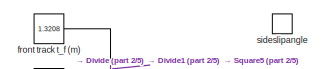
[diagram: sideslipangle (car vel x, y) - part 1/5, top left region]
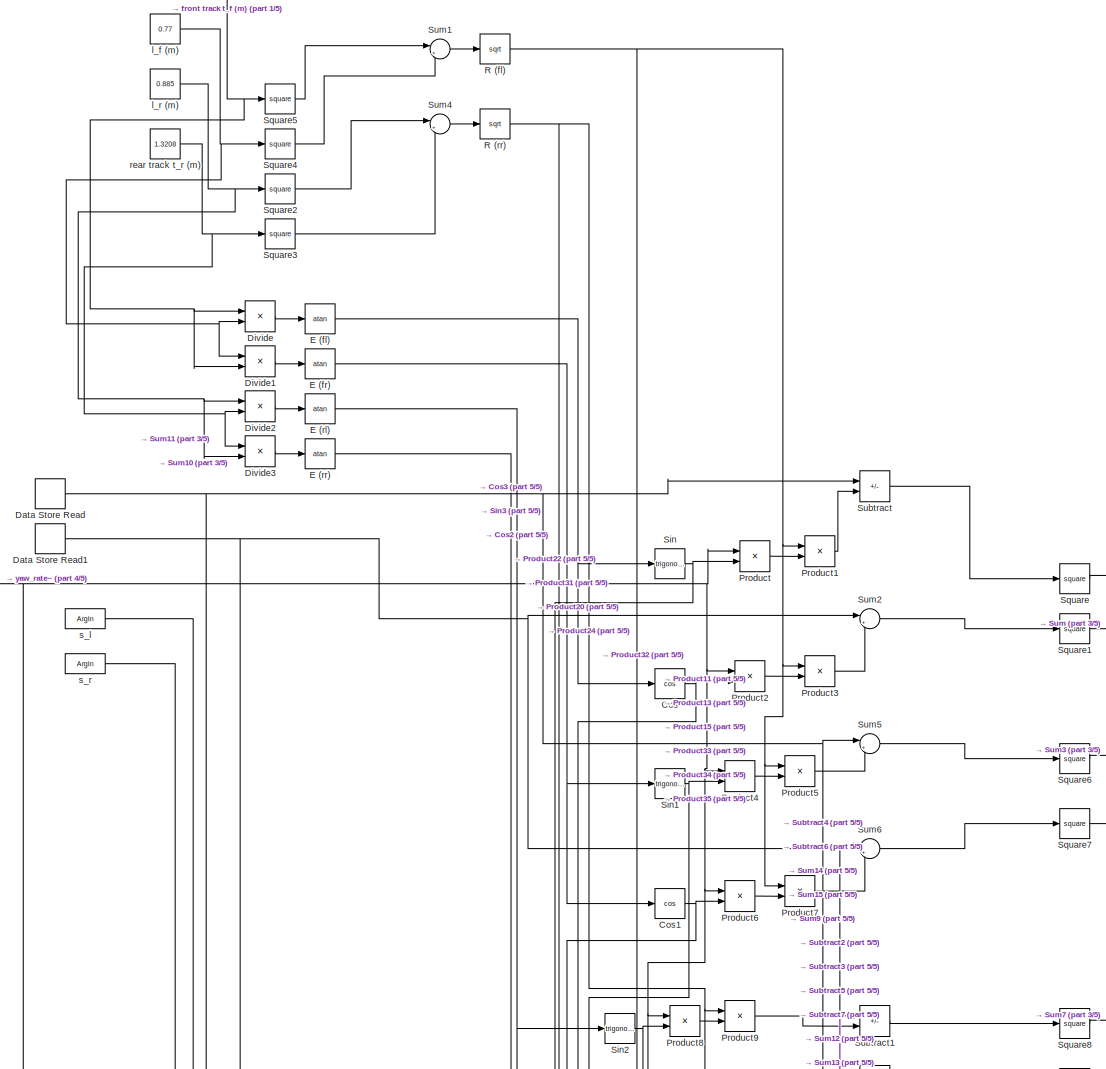
[diagram: sideslipangle (car vel x, y) - part 2/5, top center region]
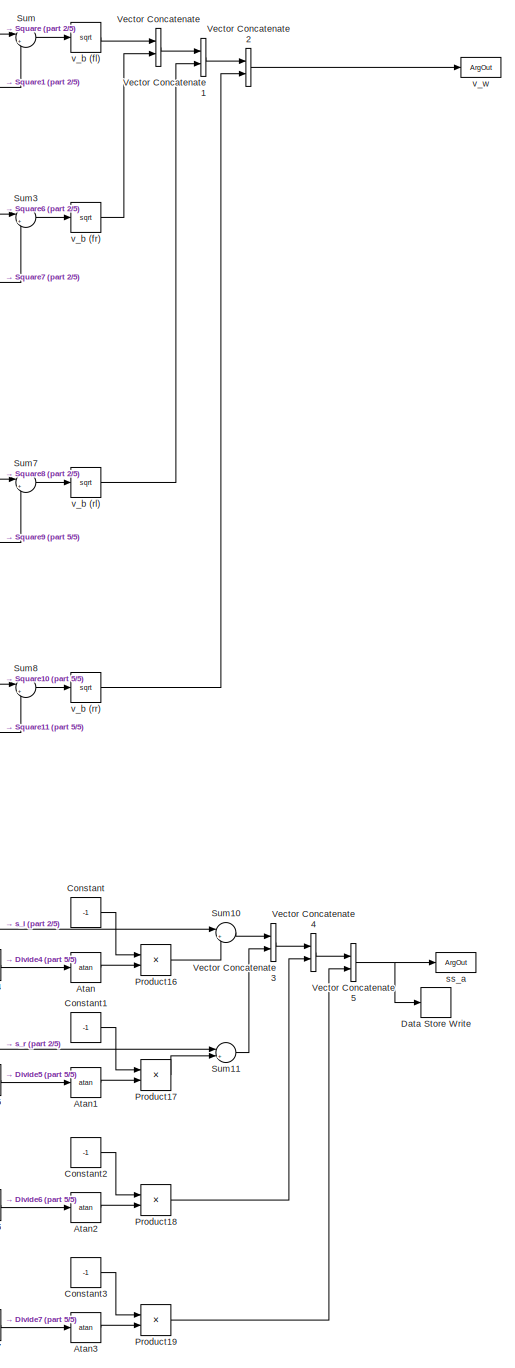
[diagram: sideslipangle (car vel x, y) - part 3/5, middle right region]
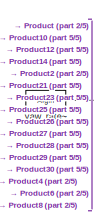
[diagram: sideslipangle (car vel x, y) - part 4/5, top left region]
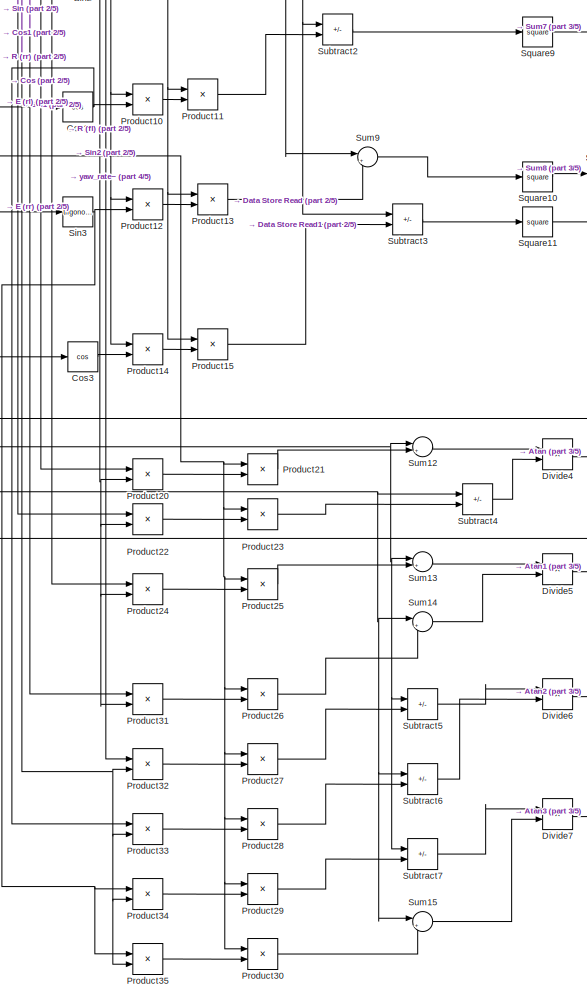
[diagram: sideslipangle (car vel x, y) - part 5/5, bottom center region]
BLOCK [SubSystem] sideslipangle (car vel x, y)
  Ports = [0, 0, 0, 1]
  RequestExecContextInheritance = off
  TreatAsAtomicUnit = on
BLOCK [Trigonometry] sideslipangle (car vel x, y)/Atan
  Operator = atan
  Ports = [1, 1]
BLOCK [Trigonometry] sideslipangle (car vel x, y)/Atan1
  Operator = atan
  Ports = [1, 1]
BLOCK [Trigonometry] sideslipangle (car vel x, y)/Atan2
  Operator = atan
  Ports = [1, 1]
BLOCK [Trigonometry] sideslipangle (car vel x, y)/Atan3
  Operator = atan
  Ports = [1, 1]
BLOCK [Constant] sideslipangle (car vel x, y)/Constant
  Value = -1
BLOCK [Constant] sideslipangle (car vel x, y)/Constant1
  Value = -1
BLOCK [Constant] sideslipangle (car vel x, y)/Constant2
  Value = -1
BLOCK [Constant] sideslipangle (car vel x, y)/Constant3
  Value = -1
BLOCK [Trigonometry] sideslipangle (car vel x, y)/Cos
  Operator = cos
  Ports = [1, 1]
BLOCK [Trigonometry] sideslipangle (car vel x, y)/Cos1
  Operator = cos
  Ports = [1, 1]
BLOCK [Trigonometry] sideslipangle (car vel x, y)/Cos2
  Operator = cos
  Ports = [1, 1]
BLOCK [Trigonometry] sideslipangle (car vel x, y)/Cos3
  Operator = cos
  Ports = [1, 1]
BLOCK [DataStoreRead] sideslipangle (car vel x, y)/Data Store Read
  DataStoreName = v_x
  IndexOptions = Index vector (dialog)
  Indices = 1
  OutputSizes = 1
  Ports = [0, 1]
BLOCK [DataStoreRead] sideslipangle (car vel x, y)/Data Store Read1
  DataStoreName = v_y
  IndexOptions = Index vector (dialog)
  Indices = 1
  OutputSizes = 1
  Ports = [0, 1]
BLOCK [DataStoreWrite] sideslipangle (car vel x, y)/Data Store Write
  DataStoreName = ss_a
  IndexOptions = Index vector (dialog)
  Indices = 1
  OutputSizes = 1
  Ports = [1]
BLOCK [Product] sideslipangle (car vel x, y)/Divide
  Inputs = */
  Ports = [2, 1]
BLOCK [Product] sideslipangle (car vel x, y)/Divide1
  Inputs = */
  Ports = [2, 1]
BLOCK [Product] sideslipangle (car vel x, y)/Divide2
  Inputs = */
  Ports = [2, 1]
BLOCK [Product] sideslipangle (car vel x, y)/Divide3
  Inputs = */
  Ports = [2, 1]
BLOCK [Product] sideslipangle (car vel x, y)/Divide4
  Inputs = */
  Ports = [2, 1]
BLOCK [Product] sideslipangle (car vel x, y)/Divide5
  Inputs = */
  Ports = [2, 1]
BLOCK [Product] sideslipangle (car vel x, y)/Divide6
  Inputs = */
  Ports = [2, 1]
BLOCK [Product] sideslipangle (car vel x, y)/Divide7
  Inputs = */
  Ports = [2, 1]
BLOCK [Trigonometry] sideslipangle (car vel x, y)/E (fl)
  Operator = atan
  Ports = [1, 1]
BLOCK [Trigonometry] sideslipangle (car vel x, y)/E (fr)
  Operator = atan
  Ports = [1, 1]
BLOCK [Trigonometry] sideslipangle (car vel x, y)/E (rl)
  Operator = atan
  Ports = [1, 1]
BLOCK [Trigonometry] sideslipangle (car vel x, y)/E (rr)
  Operator = atan
  Ports = [1, 1]
BLOCK [Product] sideslipangle (car vel x, y)/Product
  Ports = [2, 1]
BLOCK [Product] sideslipangle (car vel x, y)/Product1
  Ports = [2, 1]
BLOCK [Product] sideslipangle (car vel x, y)/Product10
  Ports = [2, 1]
BLOCK [Product] sideslipangle (car vel x, y)/Product11
  Ports = [2, 1]
BLOCK [Product] sideslipangle (car vel x, y)/Product12
  Ports = [2, 1]
BLOCK [Product] sideslipangle (car vel x, y)/Product13
  Ports = [2, 1]
BLOCK [Product] sideslipangle (car vel x, y)/Product14
  Ports = [2, 1]
BLOCK [Product] sideslipangle (car vel x, y)/Product15
  Ports = [2, 1]
BLOCK [Product] sideslipangle (car vel x, y)/Product16
  Ports = [2, 1]
BLOCK [Product] sideslipangle (car vel x, y)/Product17
  Ports = [2, 1]
BLOCK [Product] sideslipangle (car vel x, y)/Product18
  Ports = [2, 1]
BLOCK [Product] sideslipangle (car vel x, y)/Product19
  Ports = [2, 1]
BLOCK [Product] sideslipangle (car vel x, y)/Product2
  Ports = [2, 1]
BLOCK [Product] sideslipangle (car vel x, y)/Product20
  Ports = [2, 1]
BLOCK [Product] sideslipangle (car vel x, y)/Product21
  Ports = [2, 1]
BLOCK [Product] sideslipangle (car vel x, y)/Product22
  Ports = [2, 1]
BLOCK [Product] sideslipangle (car vel x, y)/Product23
  Ports = [2, 1]
BLOCK [Product] sideslipangle (car vel x, y)/Product24
  Ports = [2, 1]
BLOCK [Product] sideslipangle (car vel x, y)/Product25
  Ports = [2, 1]
BLOCK [Product] sideslipangle (car vel x, y)/Product26
  Ports = [2, 1]
BLOCK [Product] sideslipangle (car vel x, y)/Product27
  Ports = [2, 1]
BLOCK [Product] sideslipangle (car vel x, y)/Product28
  Ports = [2, 1]
BLOCK [Product] sideslipangle (car vel x, y)/Product29
  Ports = [2, 1]
BLOCK [Product] sideslipangle (car vel x, y)/Product3
  Ports = [2, 1]
BLOCK [Product] sideslipangle (car vel x, y)/Product30
  Ports = [2, 1]
BLOCK [Product] sideslipangle (car vel x, y)/Product31
  Ports = [2, 1]
BLOCK [Product] sideslipangle (car vel x, y)/Product32
  Ports = [2, 1]
BLOCK [Product] sideslipangle (car vel x, y)/Product33
  Ports = [2, 1]
BLOCK [Product] sideslipangle (car vel x, y)/Product34
  Ports = [2, 1]
BLOCK [Product] sideslipangle (car vel x, y)/Product35
  Ports = [2, 1]
BLOCK [Product] sideslipangle (car vel x, y)/Product4
  Ports = [2, 1]
BLOCK [Product] sideslipangle (car vel x, y)/Product5
  Ports = [2, 1]
BLOCK [Product] sideslipangle (car vel x, y)/Product6
  Ports = [2, 1]
BLOCK [Product] sideslipangle (car vel x, y)/Product7
  Ports = [2, 1]
BLOCK [Product] sideslipangle (car vel x, y)/Product8
  Ports = [2, 1]
BLOCK [Product] sideslipangle (car vel x, y)/Product9
  Ports = [2, 1]
BLOCK [Sqrt] sideslipangle (car vel x, y)/R (fl)
BLOCK [Sqrt] sideslipangle (car vel x, y)/R (rr)
BLOCK [Trigonometry] sideslipangle (car vel x, y)/Sin
  Ports = [1, 1]
BLOCK [Trigonometry] sideslipangle (car vel x, y)/Sin1
  Ports = [1, 1]
BLOCK [Trigonometry] sideslipangle (car vel x, y)/Sin2
  Ports = [1, 1]
BLOCK [Trigonometry] sideslipangle (car vel x, y)/Sin3
  Ports = [1, 1]
BLOCK [Math] sideslipangle (car vel x, y)/Square
  Operator = square
  Ports = [1, 1]
BLOCK [Math] sideslipangle (car vel x, y)/Square1
  Operator = square
  Ports = [1, 1]
BLOCK [Math] sideslipangle (car vel x, y)/Square10
  Operator = square
  Ports = [1, 1]
BLOCK [Math] sideslipangle (car vel x, y)/Square11
  Operator = square
  Ports = [1, 1]
BLOCK [Math] sideslipangle (car vel x, y)/Square2
  Operator = square
  Ports = [1, 1]
BLOCK [Math] sideslipangle (car vel x, y)/Square3
  Operator = square
  Ports = [1, 1]
BLOCK [Math] sideslipangle (car vel x, y)/Square4
  Operator = square
  Ports = [1, 1]
BLOCK [Math] sideslipangle (car vel x, y)/Square5
  Operator = square
  Ports = [1, 1]
BLOCK [Math] sideslipangle (car vel x, y)/Square6
  Operator = square
  Ports = [1, 1]
BLOCK [Math] sideslipangle (car vel x, y)/Square7
  Operator = square
  Ports = [1, 1]
BLOCK [Math] sideslipangle (car vel x, y)/Square8
  Operator = square
  Ports = [1, 1]
BLOCK [Math] sideslipangle (car vel x, y)/Square9
  Operator = square
  Ports = [1, 1]
BLOCK [Sum] sideslipangle (car vel x, y)/Subtract
  IconShape = rectangular
  Inputs = +-
  Ports = [2, 1]
BLOCK [Sum] sideslipangle (car vel x, y)/Subtract1
  IconShape = rectangular
  Inputs = +-
  Ports = [2, 1]
BLOCK [Sum] sideslipangle (car vel x, y)/Subtract2
  IconShape = rectangular
  Inputs = +-
  Ports = [2, 1]
BLOCK [Sum] sideslipangle (car vel x, y)/Subtract3
  IconShape = rectangular
  Inputs = +-
  Ports = [2, 1]
BLOCK [Sum] sideslipangle (car vel x, y)/Subtract4
  IconShape = rectangular
  Inputs = +-
  Ports = [2, 1]
BLOCK [Sum] sideslipangle (car vel x, y)/Subtract5
  IconShape = rectangular
  Inputs = +-
  Ports = [2, 1]
BLOCK [Sum] sideslipangle (car vel x, y)/Subtract6
  IconShape = rectangular
  Inputs = +-
  Ports = [2, 1]
BLOCK [Sum] sideslipangle (car vel x, y)/Subtract7
  IconShape = rectangular
  Inputs = +-
  Ports = [2, 1]
BLOCK [Sum] sideslipangle (car vel x, y)/Sum
  Inputs = |++
  Ports = [2, 1]
BLOCK [Sum] sideslipangle (car vel x, y)/Sum1
  Inputs = |++
  Ports = [2, 1]
BLOCK [Sum] sideslipangle (car vel x, y)/Sum10
  Inputs = |++
  Ports = [2, 1]
BLOCK [Sum] sideslipangle (car vel x, y)/Sum11
  Inputs = |++
  Ports = [2, 1]
BLOCK [Sum] sideslipangle (car vel x, y)/Sum12
  Inputs = |++
  Ports = [2, 1]
BLOCK [Sum] sideslipangle (car vel x, y)/Sum13
  Inputs = |++
  Ports = [2, 1]
BLOCK [Sum] sideslipangle (car vel x, y)/Sum14
  Inputs = |++
  Ports = [2, 1]
BLOCK [Sum] sideslipangle (car vel x, y)/Sum15
  Inputs = |++
  Ports = [2, 1]
BLOCK [Sum] sideslipangle (car vel x, y)/Sum2
  Inputs = |++
  Ports = [2, 1]
BLOCK [Sum] sideslipangle (car vel x, y)/Sum3
  Inputs = |++
  Ports = [2, 1]
BLOCK [Sum] sideslipangle (car vel x, y)/Sum4
  Inputs = |++
  Ports = [2, 1]
BLOCK [Sum] sideslipangle (car vel x, y)/Sum5
  Inputs = |++
  Ports = [2, 1]
BLOCK [Sum] sideslipangle (car vel x, y)/Sum6
  Inputs = |++
  Ports = [2, 1]
BLOCK [Sum] sideslipangle (car vel x, y)/Sum7
  Inputs = |++
  Ports = [2, 1]
BLOCK [Sum] sideslipangle (car vel x, y)/Sum8
  Inputs = |++
  Ports = [2, 1]
BLOCK [Sum] sideslipangle (car vel x, y)/Sum9
  Inputs = |++
  Ports = [2, 1]
BLOCK [Concatenate] sideslipangle (car vel x, y)/Vector Concatenate
  Ports = [2, 1]
BLOCK [Concatenate] sideslipangle (car vel x, y)/Vector Concatenate1
  Ports = [2, 1]
BLOCK [Concatenate] sideslipangle (car vel x, y)/Vector Concatenate2
  Ports = [2, 1]
BLOCK [Concatenate] sideslipangle (car vel x, y)/Vector Concatenate3
  Ports = [2, 1]
BLOCK [Concatenate] sideslipangle (car vel x, y)/Vector Concatenate4
  Ports = [2, 1]
BLOCK [Concatenate] sideslipangle (car vel x, y)/Vector Concatenate5
  Ports = [2, 1]
BLOCK [Constant] sideslipangle (car vel x, y)/front track t_f (m)
  Value = 1.3208
BLOCK [Constant] sideslipangle (car vel x, y)/l_f (m)
  Value = 0.77
BLOCK [Constant] sideslipangle (car vel x, y)/l_r (m)
  Value = 0.885
BLOCK [Constant] sideslipangle (car vel x, y)/rear track t_r (m)
  Value = 1.3208
BLOCK [ArgIn] sideslipangle (car vel x, y)/s_l
  ArgumentName = s_l
  Port = 2
BLOCK [ArgIn] sideslipangle (car vel x, y)/s_r
  ArgumentName = s_r
  Port = 3
BLOCK [TriggerPort] sideslipangle (car vel x, y)/sideslipangle
  FunctionName = sideslipangle
  FunctionVisibility = scoped
  IsSimulinkFunction = on
  Ports = []
  StatesWhenEnabling = held
  TriggerType = function-call
  VariantControl = (inherit)
BLOCK [ArgOut] sideslipangle (car vel x, y)/ss_a
  ArgumentName = ss_a
  Port = 2
  PortDimensions = 4
BLOCK [Sqrt] sideslipangle (car vel x, y)/v_b (fl)
BLOCK [Sqrt] sideslipangle (car vel x, y)/v_b (fr)
BLOCK [Sqrt] sideslipangle (car vel x, y)/v_b (rl)
BLOCK [Sqrt] sideslipangle (car vel x, y)/v_b (rr)
BLOCK [ArgOut] sideslipangle (car vel x, y)/v_w
  ArgumentName = v_w
  DisableCoverage = on
  PortDimensions = 4
BLOCK [ArgIn] sideslipangle (car vel x, y)/yaw_rate~
  ArgumentName = yaw_rate
  DisableCoverage = on
BLOCK [Constant] steering angle (Degrees)
BLOCK [Constant] step size
  Value = .01
BLOCK [SubSystem] tiremodelburckhardt
  Ports = [0, 0, 0, 1]
  RequestExecContextInheritance = off
  TreatAsAtomicUnit = on
BLOCK [Product] tiremodelburckhardt/Divide
  Inputs = */
  Ports = [2, 1]
BLOCK [Product] tiremodelburckhardt/Divide1
  Inputs = */
  Ports = [2, 1]
BLOCK [Product] tiremodelburckhardt/Divide2
  Inputs = */
  Ports = [2, 1]
BLOCK [Product] tiremodelburckhardt/Divide3
  Inputs = */
  Ports = [2, 1]
BLOCK [Product] tiremodelburckhardt/Divide4
  Inputs = */
  Ports = [2, 1]
BLOCK [Product] tiremodelburckhardt/Divide5
  Inputs = */
  Ports = [2, 1]
BLOCK [Product] tiremodelburckhardt/Divide6
  Inputs = */
  Ports = [2, 1]
BLOCK [Product] tiremodelburckhardt/Divide7
  Inputs = */
  Ports = [2, 1]
BLOCK [FunctionCaller] tiremodelburckhardt/Function Caller
  FunctionPrototype = ur = burk(sr)
  InputArgumentSpecifications = <Enter example>
  OutputArgumentSpecifications = <Enter example>
  Ports = [1, 1]
BLOCK [FunctionCaller] tiremodelburckhardt/Function Caller1
  FunctionPrototype = ur = burk(sr)
  InputArgumentSpecifications = <Enter example>
  OutputArgumentSpecifications = <Enter example>
  Ports = [1, 1]
BLOCK [FunctionCaller] tiremodelburckhardt/Function Caller2
  FunctionPrototype = ur = burk(sr)
  InputArgumentSpecifications = <Enter example>
  OutputArgumentSpecifications = <Enter example>
  Ports = [1, 1]
BLOCK [FunctionCaller] tiremodelburckhardt/Function Caller3
  FunctionPrototype = ur = burk(sr)
  InputArgumentSpecifications = <Enter example>
  OutputArgumentSpecifications = <Enter example>
  Ports = [1, 1]
BLOCK [InitialCondition] tiremodelburckhardt/IC
  Value = [1, 1, 1, 1]
BLOCK [MultiPortSwitch] tiremodelburckhardt/Index Vector
  DataPortOrder = Zero-based contiguous
  InputSameDT = off
  Inputs = 1
  Ports = [2, 1]
  SaturateOnIntegerOverflow = off
  zeroidx = on
BLOCK [MultiPortSwitch] tiremodelburckhardt/Index Vector1
  DataPortOrder = Zero-based contiguous
  InputSameDT = off
  Inputs = 1
  Ports = [2, 1]
  SaturateOnIntegerOverflow = off
  zeroidx = on
BLOCK [MultiPortSwitch] tiremodelburckhardt/Index Vector10
  DataPortOrder = Zero-based contiguous
  InputSameDT = off
  Inputs = 1
  Ports = [2, 1]
  SaturateOnIntegerOverflow = off
  zeroidx = on
BLOCK [MultiPortSwitch] tiremodelburckhardt/Index Vector11
  DataPortOrder = Zero-based contiguous
  InputSameDT = off
  Inputs = 1
  Ports = [2, 1]
  SaturateOnIntegerOverflow = off
  zeroidx = on
BLOCK [MultiPortSwitch] tiremodelburckhardt/Index Vector2
  DataPortOrder = Zero-based contiguous
  InputSameDT = off
  Inputs = 1
  Ports = [2, 1]
  SaturateOnIntegerOverflow = off
  zeroidx = on
BLOCK [MultiPortSwitch] tiremodelburckhardt/Index Vector3
  DataPortOrder = Zero-based contiguous
  InputSameDT = off
  Inputs = 1
  Ports = [2, 1]
  SaturateOnIntegerOverflow = off
  zeroidx = on
BLOCK [MultiPortSwitch] tiremodelburckhardt/Index Vector4
  DataPortOrder = Zero-based contiguous
  InputSameDT = off
  Inputs = 1
  Ports = [2, 1]
  SaturateOnIntegerOverflow = off
  zeroidx = on
BLOCK [MultiPortSwitch] tiremodelburckhardt/Index Vector5
  DataPortOrder = Zero-based contiguous
  InputSameDT = off
  Inputs = 1
  Ports = [2, 1]
  SaturateOnIntegerOverflow = off
  zeroidx = on
BLOCK [MultiPortSwitch] tiremodelburckhardt/Index Vector6
  DataPortOrder = Zero-based contiguous
  InputSameDT = off
  Inputs = 1
  Ports = [2, 1]
  SaturateOnIntegerOverflow = off
  zeroidx = on
BLOCK [MultiPortSwitch] tiremodelburckhardt/Index Vector7
  DataPortOrder = Zero-based contiguous
  InputSameDT = off
  Inputs = 1
  Ports = [2, 1]
  SaturateOnIntegerOverflow = off
  zeroidx = on
BLOCK [MultiPortSwitch] tiremodelburckhardt/Index Vector8
  DataPortOrder = Zero-based contiguous
  InputSameDT = off
  Inputs = 1
  Ports = [2, 1]
  SaturateOnIntegerOverflow = off
  zeroidx = on
BLOCK [MultiPortSwitch] tiremodelburckhardt/Index Vector9
  DataPortOrder = Zero-based contiguous
  InputSameDT = off
  Inputs = 1
  Ports = [2, 1]
  SaturateOnIntegerOverflow = off
  zeroidx = on
BLOCK [Product] tiremodelburckhardt/Product
  Ports = [2, 1]
BLOCK [Product] tiremodelburckhardt/Product1
  Ports = [2, 1]
BLOCK [Product] tiremodelburckhardt/Product2
  Ports = [2, 1]
BLOCK [Product] tiremodelburckhardt/Product3
  Ports = [2, 1]
BLOCK [Product] tiremodelburckhardt/Product4
  Ports = [2, 1]
BLOCK [Product] tiremodelburckhardt/Product5
  Ports = [2, 1]
BLOCK [Product] tiremodelburckhardt/Product6
  Ports = [2, 1]
BLOCK [Product] tiremodelburckhardt/Product7
  Ports = [2, 1]
BLOCK [Concatenate] tiremodelburckhardt/Vector Concatenate
  Ports = [2, 1]
BLOCK [Concatenate] tiremodelburckhardt/Vector Concatenate1
  Ports = [2, 1]
BLOCK [Concatenate] tiremodelburckhardt/Vector Concatenate2
  Ports = [2, 1]
BLOCK [Concatenate] tiremodelburckhardt/Vector Concatenate3
  Ports = [2, 1]
BLOCK [Concatenate] tiremodelburckhardt/Vector Concatenate4
  Ports = [2, 1]
BLOCK [Concatenate] tiremodelburckhardt/Vector Concatenate5
  Ports = [2, 1]
BLOCK [Concatenate] tiremodelburckhardt/Vector Concatenate6
  Ports = [2, 1]
BLOCK [Concatenate] tiremodelburckhardt/Vector Concatenate7
  Ports = [2, 1]
BLOCK [Concatenate] tiremodelburckhardt/Vector Concatenate8
  Ports = [2, 1]
BLOCK [Constant] tiremodelburckhardt/front left
  Value = 0
BLOCK [Constant] tiremodelburckhardt/front left1
  Value = 0
BLOCK [Constant] tiremodelburckhardt/front left2
  Value = 0
BLOCK [Constant] tiremodelburckhardt/front right
BLOCK [Constant] tiremodelburckhardt/front right1
BLOCK [Constant] tiremodelburckhardt/front right2
BLOCK [Constant] tiremodelburckhardt/rear left
  Value = 2
BLOCK [Constant] tiremodelburckhardt/rear left1
  Value = 2
BLOCK [Constant] tiremodelburckhardt/rear left2
  Value = 2
BLOCK [Constant] tiremodelburckhardt/rear right
  Value = 3
BLOCK [Constant] tiremodelburckhardt/rear right1
  Value = 3
BLOCK [Constant] tiremodelburckhardt/rear right2
  Value = 3
BLOCK [ArgIn] tiremodelburckhardt/s_l
  ArgumentName = s_l
  Port = 2
  PortDimensions = 4
BLOCK [ArgIn] tiremodelburckhardt/s_r
  ArgumentName = s_r
  DisableCoverage = on
  PortDimensions = 4
BLOCK [ArgIn] tiremodelburckhardt/s_s
  ArgumentName = s_s
  Port = 3
  PortDimensions = 4
BLOCK [TriggerPort] tiremodelburckhardt/tiremodel
  FunctionName = tiremodel
  FunctionVisibility = scoped
  IsSimulinkFunction = on
  Ports = []
  StatesWhenEnabling = held
  TriggerType = function-call
  VariantControl = (inherit)
BLOCK [ArgOut] tiremodelburckhardt/u_l
  ArgumentName = u_l
  Port = 2
  PortDimensions = 4
BLOCK [ArgOut] tiremodelburckhardt/u_r
  ArgumentName = u_r
  DisableCoverage = on
  PortDimensions = 4
BLOCK [SubSystem] tiremodelburckhardt/u_r Burkhardt equation
  Ports = [0, 0, 0, 1]
  RequestExecContextInheritance = off
  TreatAsAtomicUnit = on
BLOCK [Constant] tiremodelburckhardt/u_r Burkhardt equation/C1
  Value = 1.2801
BLOCK [Constant] tiremodelburckhardt/u_r Burkhardt equation/C2
  Value = 23.99
BLOCK [Constant] tiremodelburckhardt/u_r Burkhardt equation/C3
  Value = 0.52
BLOCK [Constant] tiremodelburckhardt/u_r Burkhardt equation/Constant
BLOCK [Constant] tiremodelburckhardt/u_r Burkhardt equation/Eulers Number
  OutDataTypeStr = Inherit: Inherit via back propagation
  Value = exp(1)
BLOCK [Gain] tiremodelburckhardt/u_r Burkhardt equation/Gain
  Gain = -1
BLOCK [Math] tiremodelburckhardt/u_r Burkhardt equation/Power
  Operator = pow
  OutputSignalType = real
  Ports = [2, 1]
BLOCK [Product] tiremodelburckhardt/u_r Burkhardt equation/Product
  Ports = [2, 1]
BLOCK [Product] tiremodelburckhardt/u_r Burkhardt equation/Product1
  Ports = [2, 1]
BLOCK [Product] tiremodelburckhardt/u_r Burkhardt equation/Product2
  Ports = [2, 1]
BLOCK [Sum] tiremodelburckhardt/u_r Burkhardt equation/Subtract
  IconShape = rectangular
  Inputs = +-
  Ports = [2, 1]
BLOCK [Sum] tiremodelburckhardt/u_r Burkhardt equation/Subtract1
  IconShape = rectangular
  Inputs = +-
  Ports = [2, 1]
BLOCK [TriggerPort] tiremodelburckhardt/u_r Burkhardt equation/burk
  FunctionName = burk
  FunctionVisibility = scoped
  IsSimulinkFunction = on
  Ports = []
  StatesWhenEnabling = held
  TriggerType = function-call
  VariantControl = (inherit)
BLOCK [ArgIn] tiremodelburckhardt/u_r Burkhardt equation/sr
  ArgumentName = sr
  DisableCoverage = on
BLOCK [ArgOut] tiremodelburckhardt/u_r Burkhardt equation/ur
  ArgumentName = ur
  DisableCoverage = on
BLOCK [ArgOut] tiremodelburckhardt/u_s
  ArgumentName = u_s
  Port = 3
  PortDimensions = 4
BLOCK [Constant] torque at rear left wheel (Nm)
BLOCK [Constant] torque at rear right wheel (Nm)
BLOCK [SubSystem] wheel dynamics
  Ports = [0, 0, 0, 1]
  RequestExecContextInheritance = off
  TreatAsAtomicUnit = on
BLOCK [DataStoreRead] wheel dynamics/Data Store Read
  DataStoreName = f_xroll
  IndexOptions = Index vector (dialog)
  Indices = 1
  OutputSizes = 1
  Ports = [0, 1]
BLOCK [DataStoreWrite] wheel dynamics/Data Store Write
  DataStoreName = w_ang
  IndexOptions = Index vector (dialog)
  Indices = 1
  OutputSizes = 1
  Ports = [1]
BLOCK [DiscreteIntegrator] wheel dynamics/Discrete-Time Integrator
  ICPrevOutput = DiscIntNeverNeededParam
  ICPrevScaledInput = DiscIntNeverNeededParam
  InitialConditionSetting = Auto
  InitialConditionSource = external
  Ports = [2, 1]
  SampleTime = -1
BLOCK [DiscreteIntegrator] wheel dynamics/Discrete-Time Integrator1
  ICPrevOutput = DiscIntNeverNeededParam
  ICPrevScaledInput = DiscIntNeverNeededParam
  InitialConditionSetting = Auto
  InitialConditionSource = external
  Ports = [2, 1]
  SampleTime = -1
BLOCK [DiscreteIntegrator] wheel dynamics/Discrete-Time Integrator2
  ICPrevOutput = DiscIntNeverNeededParam
  ICPrevScaledInput = DiscIntNeverNeededParam
  InitialConditionSetting = Auto
  InitialConditionSource = external
  Ports = [2, 1]
  SampleTime = -1
BLOCK [DiscreteIntegrator] wheel dynamics/Discrete-Time Integrator3
  ICPrevOutput = DiscIntNeverNeededParam
  ICPrevScaledInput = DiscIntNeverNeededParam
  InitialConditionSetting = Auto
  InitialConditionSource = external
  Ports = [2, 1]
  SampleTime = -1
BLOCK [Product] wheel dynamics/Divide
  Inputs = */
  Ports = [2, 1]
BLOCK [Product] wheel dynamics/Divide1
  Inputs = */
  Ports = [2, 1]
BLOCK [Product] wheel dynamics/Divide2
  Inputs = */
  Ports = [2, 1]
BLOCK [Product] wheel dynamics/Divide3
  Inputs = */
  Ports = [2, 1]
BLOCK [Gain] wheel dynamics/Gain
  Gain = -1
BLOCK [InitialCondition] wheel dynamics/IC
  Value = [60, 60, 60, 60]
BLOCK [MultiPortSwitch] wheel dynamics/Index Vector
  DataPortOrder = Zero-based contiguous
  InputSameDT = off
  Inputs = 1
  Ports = [2, 1]
  SaturateOnIntegerOverflow = off
  zeroidx = on
BLOCK [MultiPortSwitch] wheel dynamics/Index Vector1
  DataPortOrder = Zero-based contiguous
  InputSameDT = off
  Inputs = 1
  Ports = [2, 1]
  SaturateOnIntegerOverflow = off
  zeroidx = on
BLOCK [MultiPortSwitch] wheel dynamics/Index Vector2
  DataPortOrder = Zero-based contiguous
  InputSameDT = off
  Inputs = 1
  Ports = [2, 1]
  SaturateOnIntegerOverflow = off
  zeroidx = on
BLOCK [MultiPortSwitch] wheel dynamics/Index Vector3
  DataPortOrder = Zero-based contiguous
  InputSameDT = off
  Inputs = 1
  Ports = [2, 1]
  SaturateOnIntegerOverflow = off
  zeroidx = on
BLOCK [Product] wheel dynamics/Product
  Ports = [2, 1]
BLOCK [Product] wheel dynamics/Product1
  Ports = [2, 1]
BLOCK [Product] wheel dynamics/Product2
  Ports = [2, 1]
BLOCK [Product] wheel dynamics/Product3
  Ports = [2, 1]
BLOCK [Sum] wheel dynamics/Sum
  Inputs = |++
  Ports = [2, 1]
BLOCK [Sum] wheel dynamics/Sum1
  Inputs = |++
  Ports = [2, 1]
BLOCK [Sum] wheel dynamics/Sum2
  Inputs = |++
  Ports = [2, 1]
BLOCK [Concatenate] wheel dynamics/Vector Concatenate2
  NumInputs = 4
  Ports = [4, 1]
BLOCK [Constant] wheel dynamics/b, Damping Factor of Wheel
  Value = 0.1
BLOCK [Constant] wheel dynamics/front left
  Value = 0
BLOCK [Constant] wheel dynamics/front right
BLOCK [Constant] wheel dynamics/i_w Inertia of wheel (Kgm^2) 
  Value = 0.68741050775
BLOCK [Constant] wheel dynamics/r_w wheel radius (m)
  Value = 0.4572
BLOCK [Constant] wheel dynamics/rear left
  Value = 2
BLOCK [Constant] wheel dynamics/rear right
  Value = 3
BLOCK [ArgIn] wheel dynamics/t_rl
  ArgumentName = t_rl
  Port = 2
BLOCK [ArgIn] wheel dynamics/t_rr
  ArgumentName = t_rr
  DisableCoverage = on
BLOCK [ArgOut] wheel dynamics/w
  ArgumentName = w
  DisableCoverage = on
  PortDimensions = 4
BLOCK [TriggerPort] wheel dynamics/wheeldynamics
  FunctionName = wheeldynamics
  FunctionVisibility = scoped
  IsSimulinkFunction = on
  Ports = []
  StatesWhenEnabling = held
  TriggerType = function-call
  VariantControl = (inherit)
BLOCK [SubSystem] wheeltovehicle coordinate system
  Ports = [0, 0, 0, 1]
  RequestExecContextInheritance = off
  TreatAsAtomicUnit = on
BLOCK [Trigonometry] wheeltovehicle coordinate system/Cos
  Operator = cos
  Ports = [1, 1]
BLOCK [Trigonometry] wheeltovehicle coordinate system/Cos1
  Operator = cos
  Ports = [1, 1]
BLOCK [MultiPortSwitch] wheeltovehicle coordinate system/Index Vector
  DataPortOrder = Zero-based contiguous
  InputSameDT = off
  Inputs = 1
  Ports = [2, 1]
  SaturateOnIntegerOverflow = off
  zeroidx = on
BLOCK [MultiPortSwitch] wheeltovehicle coordinate system/Index Vector1
  DataPortOrder = Zero-based contiguous
  InputSameDT = off
  Inputs = 1
  Ports = [2, 1]
  SaturateOnIntegerOverflow = off
  zeroidx = on
BLOCK [MultiPortSwitch] wheeltovehicle coordinate system/Index Vector2
  DataPortOrder = Zero-based contiguous
  InputSameDT = off
  Inputs = 1
  Ports = [2, 1]
  SaturateOnIntegerOverflow = off
  zeroidx = on
BLOCK [MultiPortSwitch] wheeltovehicle coordinate system/Index Vector3
  DataPortOrder = Zero-based contiguous
  InputSameDT = off
  Inputs = 1
  Ports = [2, 1]
  SaturateOnIntegerOverflow = off
  zeroidx = on
BLOCK [MultiPortSwitch] wheeltovehicle coordinate system/Index Vector4
  DataPortOrder = Zero-based contiguous
  InputSameDT = off
  Inputs = 1
  Ports = [2, 1]
  SaturateOnIntegerOverflow = off
  zeroidx = on
BLOCK [MultiPortSwitch] wheeltovehicle coordinate system/Index Vector5
  DataPortOrder = Zero-based contiguous
  InputSameDT = off
  Inputs = 1
  Ports = [2, 1]
  SaturateOnIntegerOverflow = off
  zeroidx = on
BLOCK [MultiPortSwitch] wheeltovehicle coordinate system/Index Vector6
  DataPortOrder = Zero-based contiguous
  InputSameDT = off
  Inputs = 1
  Ports = [2, 1]
  SaturateOnIntegerOverflow = off
  zeroidx = on
BLOCK [MultiPortSwitch] wheeltovehicle coordinate system/Index Vector7
  DataPortOrder = Zero-based contiguous
  InputSameDT = off
  Inputs = 1
  Ports = [2, 1]
  SaturateOnIntegerOverflow = off
  zeroidx = on
BLOCK [Product] wheeltovehicle coordinate system/Product
  Ports = [2, 1]
BLOCK [Product] wheeltovehicle coordinate system/Product1
  Ports = [2, 1]
BLOCK [Product] wheeltovehicle coordinate system/Product2
  Ports = [2, 1]
BLOCK [Product] wheeltovehicle coordinate system/Product3
  Ports = [2, 1]
BLOCK [Product] wheeltovehicle coordinate system/Product4
  Ports = [2, 1]
BLOCK [Product] wheeltovehicle coordinate system/Product5
  Ports = [2, 1]
BLOCK [Product] wheeltovehicle coordinate system/Product6
  Ports = [2, 1]
BLOCK [Product] wheeltovehicle coordinate system/Product7
  Ports = [2, 1]
BLOCK [Trigonometry] wheeltovehicle coordinate system/Sin
  Ports = [1, 1]
BLOCK [Trigonometry] wheeltovehicle coordinate system/Sin1
  Ports = [1, 1]
BLOCK [Sum] wheeltovehicle coordinate system/Sum
  Inputs = |++
  Ports = [2, 1]
BLOCK [Sum] wheeltovehicle coordinate system/Sum1
  Inputs = |++
  Ports = [2, 1]
BLOCK [Concatenate] wheeltovehicle coordinate system/Vector Concatenate
  Ports = [2, 1]
BLOCK [Concatenate] wheeltovehicle coordinate system/Vector Concatenate1
  Ports = [2, 1]
BLOCK [Concatenate] wheeltovehicle coordinate system/Vector Concatenate2
  Ports = [2, 1]
BLOCK [Concatenate] wheeltovehicle coordinate system/Vector Concatenate3
  Ports = [2, 1]
BLOCK [Concatenate] wheeltovehicle coordinate system/Vector Concatenate4
  Ports = [2, 1]
BLOCK [Concatenate] wheeltovehicle coordinate system/Vector Concatenate5
  Ports = [2, 1]
BLOCK [ArgOut] wheeltovehicle coordinate system/f_bx
  ArgumentName = f_bx
  DisableCoverage = on
  PortDimensions = 4
BLOCK [Sum] wheeltovehicle coordinate system/f_bx (fl)
  IconShape = rectangular
  Inputs = +-
  Ports = [2, 1]
BLOCK [Sum] wheeltovehicle coordinate system/f_bx (fr)
  IconShape = rectangular
  Inputs = +-
  Ports = [2, 1]
BLOCK [ArgOut] wheeltovehicle coordinate system/f_by
  ArgumentName = f_by
  Port = 2
  PortDimensions = 4
BLOCK [ArgIn] wheeltovehicle coordinate system/f_wx
  ArgumentName = f_wx
  DisableCoverage = on
  PortDimensions = 4
BLOCK [ArgIn] wheeltovehicle coordinate system/f_wy
  ArgumentName = f_wy
  Port = 2
  PortDimensions = 4
BLOCK [Constant] wheeltovehicle coordinate system/front left
  Value = 0
BLOCK [Constant] wheeltovehicle coordinate system/front left1
  Value = 0
BLOCK [Constant] wheeltovehicle coordinate system/front right
BLOCK [Constant] wheeltovehicle coordinate system/front right1
BLOCK [Constant] wheeltovehicle coordinate system/rear left
  Value = 2
BLOCK [Constant] wheeltovehicle coordinate system/rear left1
  Value = 2
BLOCK [Constant] wheeltovehicle coordinate system/rear right
  Value = 3
BLOCK [Constant] wheeltovehicle coordinate system/rear right1
  Value = 3
BLOCK [ArgIn] wheeltovehicle coordinate system/s_l
  ArgumentName = s_l
  Port = 3
BLOCK [ArgIn] wheeltovehicle coordinate system/s_r
  ArgumentName = s_r
  Port = 4
BLOCK [TriggerPort] wheeltovehicle coordinate system/wheeltovehicle
  FunctionName = wheeltovehicle
  FunctionVisibility = scoped
  IsSimulinkFunction = on
  Ports = []
  StatesWhenEnabling = held
  TriggerType = function-call
  VariantControl = (inherit)
BLOCK [ToWorkspace] x acceleration
  FixptAsFi = on
  MaxDataPoints = inf
  Ports = [1]
  SampleTime = -1
  SaveFormat = Timeseries
  VariableName = axout1
BLOCK [ToWorkspace] x velocity
  FixptAsFi = on
  MaxDataPoints = inf
  Ports = [1]
  SampleTime = -1
  SaveFormat = Timeseries
  VariableName = vxout1
BLOCK [ToWorkspace] y acceleration
  FixptAsFi = on
  MaxDataPoints = inf
  Ports = [1]
  SampleTime = -1
  SaveFormat = Timeseries
  VariableName = ayout1
BLOCK [ToWorkspace] y velocity
  FixptAsFi = on
  MaxDataPoints = inf
  Ports = [1]
  SampleTime = -1
  SaveFormat = Timeseries
  VariableName = vyout1
BLOCK [ToWorkspace] yaw acceleration
  FixptAsFi = on
  MaxDataPoints = inf
  Ports = [1]
  SampleTime = -1
  SaveFormat = Timeseries
  VariableName = yawout1
BLOCK [ToWorkspace] yaw rate
  FixptAsFi = on
  MaxDataPoints = inf
  Ports = [1]
  SampleTime = -1
  SaveFormat = Timeseries
  VariableName = simout5
LINE Constant3:1 -> Data Store Write7:1
LINE Constant4:1 -> Data Store Write:1
LINE Desired Yaw1/Abs1:1 -> Desired Yaw1/If:2
LINE Desired Yaw1/Abs:1 -> Desired Yaw1/If:1
LINE Desired Yaw1/Add:1 -> Desired Yaw1/Divide:2
LINE Desired Yaw1/Constant1:1 -> Desired Yaw1/If Action Subsystem1:1
LINE Desired Yaw1/Constant:1 -> Desired Yaw1/If Action Subsystem:1
LINE Desired Yaw1/Data Store Read1:1 -> Desired Yaw1/Add:2
LINE Desired Yaw1/Data Store Read:1 -> Desired Yaw1/Add:1
LINE Desired Yaw1/Degrees to Radians:1 -> Desired Yaw1/Product:2
LINE Desired Yaw1/Divide1:1 -> Desired Yaw1/max yaw rate:1
LINE Desired Yaw1/Divide:1 -> Desired Yaw1/Product:1
LINE Desired Yaw1/Gain:1 -> Desired Yaw1/Saturation Dynamic:3
LINE Desired Yaw1/If Action Subsystem/In1:1 -> Desired Yaw1/If Action Subsystem/Out1:1
LINE Desired Yaw1/If Action Subsystem1/In1:1 -> Desired Yaw1/If Action Subsystem1/Out1:1
LINE Desired Yaw1/If Action Subsystem1:1 -> Desired Yaw1/Max:2
LINE Desired Yaw1/If Action Subsystem:1 -> Desired Yaw1/Max:1
LINE Desired Yaw1/If:1 -> Desired Yaw1/If Action Subsystem1:ifaction
LINE Desired Yaw1/If:2 -> Desired Yaw1/If Action Subsystem:ifaction
LINE Desired Yaw1/K_u:1 -> Desired Yaw1/Product1:1
LINE Desired Yaw1/Max:1 -> Desired Yaw1/Multiport Switch:1
LINE Desired Yaw1/Product1:1 -> Desired Yaw1/Add:3
NET Desired Yaw1/Product:1 -> Desired Yaw1/Abs:1, Desired Yaw1/Multiport Switch:2, Desired Yaw1/Saturation Dynamic:2
LINE Desired Yaw1/Saturation Dynamic:1 -> Desired Yaw1/yaw_desired:1
LINE Desired Yaw1/Square:1 -> Desired Yaw1/Product1:2
NET Desired Yaw1/max yaw rate:1 -> Desired Yaw1/Abs1:1, Desired Yaw1/Gain:1, Desired Yaw1/Multiport Switch:3, Desired Yaw1/Saturation Dynamic:1
LINE Desired Yaw1/s:1 -> Desired Yaw1/Degrees to Radians:1
LINE Desired Yaw1/tuneability:1 -> Desired Yaw1/max yaw rate:2
LINE Desired Yaw1/u_g:1 -> Desired Yaw1/Divide1:1
NET Desired Yaw1/v_cg:1 -> Desired Yaw1/Divide1:2, Desired Yaw1/Divide:1, Desired Yaw1/Square:1
LINE Lookup table1/i lookup Table1:1 -> Lookup table1/i:1
LINE Lookup table1/p lookup Table:1 -> Lookup table1/p:1
NET Lookup table1/v_cg:1 -> Lookup table1/i lookup Table1:1, Lookup table1/p lookup Table:1
LINE PI Controller/Add:1 -> PI Controller/Product2:1
NET PI Controller/Constant:1 -> PI Controller/Add:1, PI Controller/Divide1:1
LINE PI Controller/Discrete-Time Integrator:1 -> PI Controller/Product:2
LINE PI Controller/Divide1:1 -> PI Controller/Add:2
LINE PI Controller/Divide:1 -> PI Controller/Product3:1
LINE PI Controller/Product1:1 -> PI Controller/Sum:1
NET PI Controller/Product2:1 -> PI Controller/delta torque out:1, PI Controller/delta_t:1
LINE PI Controller/Product3:1 -> PI Controller/Divide1:2
LINE PI Controller/Product:1 -> PI Controller/Sum:2
NET PI Controller/i:1 -> PI Controller/Divide:2, PI Controller/Product:1
NET PI Controller/p:1 -> PI Controller/Divide:1, PI Controller/Product1:1, PI Controller/Product2:2
NET PI Controller/yaw_error:1 -> PI Controller/Discrete-Time Integrator:1, PI Controller/Product1:2, PI Controller/Product3:2
NET Rolling Force/Asphalt Road Condition (c_roll):1 -> Rolling Force/F_xroll:1, Rolling Force/F_yroll:1
NET Rolling Force/F:1 -> Rolling Force/F_xroll:2, Rolling Force/F_yroll:2
LINE Rolling Force/F_xroll:1 -> Rolling Force/Vector Concatenate2:1
LINE Rolling Force/F_xroll:2 -> Rolling Force/Vector Concatenate2:2
LINE Rolling Force/F_xroll:3 -> Rolling Force/Vector Concatenate2:3
LINE Rolling Force/F_xroll:4 -> Rolling Force/Vector Concatenate2:4
LINE Rolling Force/F_yroll:1 -> Rolling Force/Vector Concatenate1:1
LINE Rolling Force/F_yroll:2 -> Rolling Force/Vector Concatenate1:2
LINE Rolling Force/Vector Concatenate1:1 -> Rolling Force/Y:1
LINE Rolling Force/Vector Concatenate2:1 -> Rolling Force/X:1
NET Rolling Force/sl:1 -> Rolling Force/F_xroll:4, Rolling Force/F_yroll:4
NET Rolling Force/sr:1 -> Rolling Force/F_xroll:5, Rolling Force/F_yroll:5
NET Rolling Force/w:1 -> Rolling Force/F_xroll:3, Rolling Force/F_yroll:3
NET Simulink Function/Atan1:1 -> Simulink Function/Data Store Write1:1, Simulink Function/s_r:1
NET Simulink Function/Atan:1 -> Simulink Function/Data Store Write:1, Simulink Function/s_l:1
LINE Simulink Function/Constant1:1 -> Simulink Function/Divide5:2
LINE Simulink Function/Constant:1 -> Simulink Function/Divide2:2
LINE Simulink Function/Cos1:1 -> Simulink Function/Divide4:1
LINE Simulink Function/Cos:1 -> Simulink Function/Divide1:1
LINE Simulink Function/Divide1:1 -> Simulink Function/Product:2
LINE Simulink Function/Divide2:1 -> Simulink Function/Subtract:2
LINE Simulink Function/Divide3:1 -> Simulink Function/Atan1:1
LINE Simulink Function/Divide4:1 -> Simulink Function/Product1:2
LINE Simulink Function/Divide5:1 -> Simulink Function/Sum:2
LINE Simulink Function/Divide:1 -> Simulink Function/Atan:1
LINE Simulink Function/Product1:1 -> Simulink Function/Sum:1
LINE Simulink Function/Product:1 -> Simulink Function/Subtract:1
NET Simulink Function/S:1 -> Simulink Function/Cos1:1, Simulink Function/Cos:1, Simulink Function/Sin1:1, Simulink Function/Sin:1
LINE Simulink Function/Sin1:1 -> Simulink Function/Divide4:2
LINE Simulink Function/Sin:1 -> Simulink Function/Divide1:2
LINE Simulink Function/Subtract:1 -> Simulink Function/Divide:2
LINE Simulink Function/Sum:1 -> Simulink Function/Divide3:2
LINE Simulink Function/front track1:1 -> Simulink Function/Divide5:1
LINE Simulink Function/front track:1 -> Simulink Function/Divide2:1
NET Simulink Function/wheelbase1:1 -> Simulink Function/Divide3:1, Simulink Function/Product1:1
NET Simulink Function/wheelbase:1 -> Simulink Function/Divide:1, Simulink Function/Product:1
NET Slip Ratios/Function Caller:1 -> Slip Ratios/Slip Ratios:1, Slip Ratios/slip ratios:1
LINE Slip Ratios/Lateral Slip:1 -> Slip Ratios/Vector Concatenate1:1
LINE Slip Ratios/Lateral Slip:2 -> Slip Ratios/Vector Concatenate1:2
LINE Slip Ratios/Lateral Slip:3 -> Slip Ratios/Vector Concatenate1:3
LINE Slip Ratios/Lateral Slip:4 -> Slip Ratios/Vector Concatenate1:4
LINE Slip Ratios/Linear Wheel Velocity:1 -> Slip Ratios/Longitudinal Slip:4
LINE Slip Ratios/Longitudinal Slip:1 -> Slip Ratios/Vector Concatenate:1
LINE Slip Ratios/Longitudinal Slip:2 -> Slip Ratios/Vector Concatenate:2
LINE Slip Ratios/Longitudinal Slip:3 -> Slip Ratios/Vector Concatenate:3
LINE Slip Ratios/Longitudinal Slip:4 -> Slip Ratios/Vector Concatenate:4
LINE Slip Ratios/Radius (r):1 -> Slip Ratios/Longitudinal Slip:2
NET Slip Ratios/Side Slip Angle:1 -> Slip Ratios/Lateral Slip:1, Slip Ratios/Longitudinal Slip:3
NET Slip Ratios/Vector Concatenate1:1 -> Slip Ratios/Function Caller:2, Slip Ratios/Lateral Slips:1, Slip Ratios/lateral slips:1
NET Slip Ratios/Vector Concatenate:1 -> Slip Ratios/Function Caller:1, Slip Ratios/Longitudinal Slips:1, Slip Ratios/long slips:1
LINE Slip Ratios/Wheel Velocity:1 -> Slip Ratios/Longitudinal Slip:1
LINE Slip Ratios/slip ratio/Add1:1 -> Slip Ratios/slip ratio/Sqrt1:1
LINE Slip Ratios/slip ratio/Add2:1 -> Slip Ratios/slip ratio/Sqrt2:1
LINE Slip Ratios/slip ratio/Add3:1 -> Slip Ratios/slip ratio/Sqrt3:1
LINE Slip Ratios/slip ratio/Add:1 -> Slip Ratios/slip ratio/Sqrt:1
LINE Slip Ratios/slip ratio/Index Vector1:1 -> Slip Ratios/slip ratio/Square4:1
LINE Slip Ratios/slip ratio/Index Vector2:1 -> Slip Ratios/slip ratio/Square2:1
LINE Slip Ratios/slip ratio/Index Vector3:1 -> Slip Ratios/slip ratio/Square6:1
LINE Slip Ratios/slip ratio/Index Vector4:1 -> Slip Ratios/slip ratio/Square1:1
LINE Slip Ratios/slip ratio/Index Vector5:1 -> Slip Ratios/slip ratio/Square5:1
LINE Slip Ratios/slip ratio/Index Vector6:1 -> Slip Ratios/slip ratio/Square3:1
LINE Slip Ratios/slip ratio/Index Vector7:1 -> Slip Ratios/slip ratio/Square7:1
LINE Slip Ratios/slip ratio/Index Vector:1 -> Slip Ratios/slip ratio/Square:1
LINE Slip Ratios/slip ratio/Sqrt1:1 -> Slip Ratios/slip ratio/Vector Concatenate:2
LINE Slip Ratios/slip ratio/Sqrt2:1 -> Slip Ratios/slip ratio/Vector Concatenate:3
LINE Slip Ratios/slip ratio/Sqrt3:1 -> Slip Ratios/slip ratio/Vector Concatenate:4
LINE Slip Ratios/slip ratio/Sqrt:1 -> Slip Ratios/slip ratio/Vector Concatenate:1
LINE Slip Ratios/slip ratio/Square1:1 -> Slip Ratios/slip ratio/Add:2
LINE Slip Ratios/slip ratio/Square2:1 -> Slip Ratios/slip ratio/Add2:1
LINE Slip Ratios/slip ratio/Square3:1 -> Slip Ratios/slip ratio/Add2:2
LINE Slip Ratios/slip ratio/Square4:1 -> Slip Ratios/slip ratio/Add1:1
LINE Slip Ratios/slip ratio/Square5:1 -> Slip Ratios/slip ratio/Add1:2
LINE Slip Ratios/slip ratio/Square6:1 -> Slip Ratios/slip ratio/Add3:1
LINE Slip Ratios/slip ratio/Square7:1 -> Slip Ratios/slip ratio/Add3:2
LINE Slip Ratios/slip ratio/Square:1 -> Slip Ratios/slip ratio/Add:1
LINE Slip Ratios/slip ratio/Vector Concatenate:1 -> Slip Ratios/slip ratio/sr:1
LINE Slip Ratios/slip ratio/front left1:1 -> Slip Ratios/slip ratio/Index Vector4:1
LINE Slip Ratios/slip ratio/front left:1 -> Slip Ratios/slip ratio/Index Vector:1
LINE Slip Ratios/slip ratio/front right1:1 -> Slip Ratios/slip ratio/Index Vector5:1
LINE Slip Ratios/slip ratio/front right:1 -> Slip Ratios/slip ratio/Index Vector1:1
LINE Slip Ratios/slip ratio/rear left1:1 -> Slip Ratios/slip ratio/Index Vector6:1
LINE Slip Ratios/slip ratio/rear left:1 -> Slip Ratios/slip ratio/Index Vector2:1
LINE Slip Ratios/slip ratio/rear right1:1 -> Slip Ratios/slip ratio/Index Vector7:1
LINE Slip Ratios/slip ratio/rear right:1 -> Slip Ratios/slip ratio/Index Vector3:1
NET Slip Ratios/slip ratio/sl:1 -> Slip Ratios/slip ratio/Index Vector1:2, Slip Ratios/slip ratio/Index Vector2:2, Slip Ratios/slip ratio/Index Vector3:2, Slip Ratios/slip ratio/Index Vector:2
NET Slip Ratios/slip ratio/ss:1 -> Slip Ratios/slip ratio/Index Vector4:2, Slip Ratios/slip ratio/Index Vector5:2, Slip Ratios/slip ratio/Index Vector6:2, Slip Ratios/slip ratio/Index Vector7:2
LINE Subsystem/Data Store Read3:1 -> Subsystem/Function Caller3:1
LINE Subsystem/Data Store Read4:1 -> Subsystem/Function Caller3:2
NET Subsystem/Data Store Read6:1 -> Subsystem/Divide3:2, Subsystem/Divide4:2
LINE Subsystem/Data Store Read:1 -> Subsystem/Function Caller5:1
NET Subsystem/Degrees to Radians:1 -> Subsystem/Function Caller9:1, Subsystem/Function Caller:1
NET Subsystem/Function Caller1:1 -> Subsystem/Function Caller7:1, Subsystem/Function Caller8:1
LINE Subsystem/Function Caller2:2 -> Subsystem/Function Caller3:4
LINE Subsystem/Function Caller2:3 -> Subsystem/Function Caller3:5
LINE Subsystem/Function Caller3:1 -> Subsystem/Function Caller8:4
LINE Subsystem/Function Caller3:3 -> Subsystem/Function Caller4:2
LINE Subsystem/Function Caller3:4 -> Subsystem/Function Caller4:1
LINE Subsystem/Function Caller4:1 -> Subsystem/Function Caller6:1
LINE Subsystem/Function Caller4:2 -> Subsystem/Function Caller6:2
LINE Subsystem/Function Caller5:1 -> Subsystem/Function Caller7:3
NET Subsystem/Function Caller5:2 -> Subsystem/Function Caller3:3, Subsystem/Function Caller7:2
NET Subsystem/Function Caller6:1 -> Subsystem/Function Caller9:2, Subsystem/velocity x out:1
LINE Subsystem/Function Caller6:2 -> Subsystem/velocity y out:1
LINE Subsystem/Function Caller6:3 -> Subsystem/acceleration x out:1
LINE Subsystem/Function Caller6:4 -> Subsystem/acceleration y out:1
LINE Subsystem/Function Caller6:5 -> Subsystem/yaw out:1
LINE Subsystem/Function Caller6:6 -> Subsystem/yaw acceleration out:1
LINE Subsystem/Function Caller7:1 -> Subsystem/Function Caller2:2
LINE Subsystem/Function Caller7:2 -> Subsystem/Function Caller2:3
LINE Subsystem/Function Caller7:3 -> Subsystem/Function Caller2:1
LINE Subsystem/Function Caller8:1 -> Subsystem/Function Caller6:3
LINE Subsystem/Function Caller8:2 -> Subsystem/Function Caller6:4
LINE Subsystem/Function Caller9:1 -> Subsystem/Desired yaw out:1
NET Subsystem/Function Caller:1 -> Subsystem/Function Caller4:3, Subsystem/Function Caller5:2, Subsystem/Function Caller8:2
NET Subsystem/Function Caller:2 -> Subsystem/Function Caller4:4, Subsystem/Function Caller5:3, Subsystem/Function Caller8:3
NET Subsystem/G_r:1 -> Subsystem/Product1:1, Subsystem/Product2:1
LINE Subsystem/Product1:1 -> Subsystem/Divide3:1
LINE Subsystem/Product2:1 -> Subsystem/Divide4:1
NET Subsystem/left forque:1 -> Subsystem/Function Caller1:2, Subsystem/torque rl:1
NET Subsystem/right torque:1 -> Subsystem/Function Caller1:1, Subsystem/torque rr:1
LINE Subsystem/steering angle (degrees):1 -> Subsystem/Degrees to Radians:1
LINE Subsystem:1 -> y velocity:1
LINE Subsystem:2 -> yaw rate:1
LINE Subsystem:3 -> x velocity:1
LINE Subsystem:4 -> x acceleration:1
LINE Subsystem:5 -> y acceleration:1
LINE Subsystem:6 -> desired yaw:1
LINE Subsystem:7 -> yaw acceleration:1
NET Vertical Loads/(h_cg // l) * a_x:1 -> Vertical Loads/Subtract:2, Vertical Loads/Sum1:2
NET Vertical Loads/(h_cg // t_f g) * a_y:1 -> Vertical Loads/Subtract1:2, Vertical Loads/Sum:1
NET Vertical Loads/(h_cg // t_r g) * a_y:1 -> Vertical Loads/Subtract2:2, Vertical Loads/Sum2:1
LINE Vertical Loads/(l_f // l) * g:1 -> Vertical Loads/Subtract:1
LINE Vertical Loads/(l_r // l) * g:1 -> Vertical Loads/Sum1:1
LINE Vertical Loads/Constant1:1 -> Vertical Loads/Index Vector12:1
LINE Vertical Loads/Constant2:1 -> Vertical Loads/Index Vector13:1
LINE Vertical Loads/Constant3:1 -> Vertical Loads/Index Vector14:1
LINE Vertical Loads/Constant4:1 -> Vertical Loads/Index Vector15:1
NET Vertical Loads/Constant:1 -> Vertical Loads/Subtract1:1, Vertical Loads/Subtract2:1, Vertical Loads/Sum2:2, Vertical Loads/Sum:2
NET Vertical Loads/Cos1:1 -> Vertical Loads/Product10:2, Vertical Loads/Product14:2
NET Vertical Loads/Cos2:1 -> Vertical Loads/Product19:2, Vertical Loads/Product8:2
NET Vertical Loads/Cos3:1 -> Vertical Loads/Product21:2, Vertical Loads/Product6:2
LINE Vertical Loads/Cos4:1 -> Vertical Loads/Product22:4
LINE Vertical Loads/Cos5:1 -> Vertical Loads/Product23:4
NET Vertical Loads/Cos:1 -> Vertical Loads/Product12:2, Vertical Loads/Product16:2
LINE Vertical Loads/Data Store Read1:1 -> Vertical Loads/Cos4:1
LINE Vertical Loads/Data Store Read2:1 -> Vertical Loads/Cos5:1
NET Vertical Loads/Data Store Read:1 -> Vertical Loads/Index Vector12:2, Vertical Loads/Index Vector13:2, Vertical Loads/Index Vector14:2, Vertical Loads/Index Vector15:2
LINE Vertical Loads/Divide1:1 -> Vertical Loads/(h_cg // l) * a_x:1
LINE Vertical Loads/Divide2:1 -> Vertical Loads/(h_cg // t_f g) * a_y:1
LINE Vertical Loads/Divide3:1 -> Vertical Loads/(l_r // l) * g:2
LINE Vertical Loads/Divide4:1 -> Vertical Loads/(h_cg // t_r g) * a_y:1
LINE Vertical Loads/Divide:1 -> Vertical Loads/(l_f // l) * g:1
NET Vertical Loads/Index Vector10:1 -> Vertical Loads/Cos1:1, Vertical Loads/Sin2:1
NET Vertical Loads/Index Vector11:1 -> Vertical Loads/Cos:1, Vertical Loads/Sin3:1
LINE Vertical Loads/Index Vector12:1 -> Vertical Loads/Sign:1
LINE Vertical Loads/Index Vector13:1 -> Vertical Loads/Sign1:1
LINE Vertical Loads/Index Vector14:1 -> Vertical Loads/Sign2:1
LINE Vertical Loads/Index Vector15:1 -> Vertical Loads/Sign3:1
LINE Vertical Loads/Index Vector1:1 -> Vertical Loads/f_wl (fr):2
LINE Vertical Loads/Index Vector2:1 -> Vertical Loads/f_wl (rl):2
LINE Vertical Loads/Index Vector3:1 -> Vertical Loads/f_wl (rr):2
LINE Vertical Loads/Index Vector4:1 -> Vertical Loads/f_ws (fl):2
LINE Vertical Loads/Index Vector5:1 -> Vertical Loads/f_ws (fr):2
LINE Vertical Loads/Index Vector6:1 -> Vertical Loads/f_ws (rl):2
LINE Vertical Loads/Index Vector7:1 -> Vertical Loads/f_ws (rr):2
NET Vertical Loads/Index Vector8:1 -> Vertical Loads/Cos3:1, Vertical Loads/Sin:1
NET Vertical Loads/Index Vector9:1 -> Vertical Loads/Cos2:1, Vertical Loads/Sin1:1
LINE Vertical Loads/Index Vector:1 -> Vertical Loads/f_wl (fl):2
LINE Vertical Loads/Product10:1 -> Vertical Loads/f_wx (rl):1
LINE Vertical Loads/Product11:1 -> Vertical Loads/f_wx (rl):2
LINE Vertical Loads/Product12:1 -> Vertical Loads/f_wx (rr):1
LINE Vertical Loads/Product13:1 -> Vertical Loads/f_wx (rr):2
LINE Vertical Loads/Product14:1 -> Vertical Loads/f_wy (rl):1
LINE Vertical Loads/Product15:1 -> Vertical Loads/f_wy (rl):2
LINE Vertical Loads/Product16:1 -> Vertical Loads/f_wy (rr):1
LINE Vertical Loads/Product17:1 -> Vertical Loads/f_wy (rr):2
LINE Vertical Loads/Product18:1 -> Vertical Loads/f_wy (fr):2
LINE Vertical Loads/Product19:1 -> Vertical Loads/f_wy (fr):1
LINE Vertical Loads/Product1:1 -> Vertical Loads/Divide4:2
LINE Vertical Loads/Product20:1 -> Vertical Loads/f_wy (fl):2
LINE Vertical Loads/Product21:1 -> Vertical Loads/f_wy (fl):1
LINE Vertical Loads/Product22:1 -> Vertical Loads/Vector Concatenate12:1
LINE Vertical Loads/Product23:1 -> Vertical Loads/Vector Concatenate12:2
LINE Vertical Loads/Product24:1 -> Vertical Loads/Vector Concatenate12:3
LINE Vertical Loads/Product25:1 -> Vertical Loads/Vector Concatenate12:4
LINE Vertical Loads/Product2:1 -> Vertical Loads/f_z (fl):1
LINE Vertical Loads/Product3:1 -> Vertical Loads/f_z (fr):2
LINE Vertical Loads/Product4:1 -> Vertical Loads/f_z (rl):2
LINE Vertical Loads/Product5:1 -> Vertical Loads/f_z (rr):2
LINE Vertical Loads/Product6:1 -> Vertical Loads/f_wx (fl):1
LINE Vertical Loads/Product7:1 -> Vertical Loads/f_wx (fl):2
LINE Vertical Loads/Product8:1 -> Vertical Loads/f_wx (fr):1
LINE Vertical Loads/Product9:1 -> Vertical Loads/f_wx (fr):2
LINE Vertical Loads/Product:1 -> Vertical Loads/Divide2:2
LINE Vertical Loads/Sign1:1 -> Vertical Loads/Product23:3
LINE Vertical Loads/Sign2:1 -> Vertical Loads/Product24:3
LINE Vertical Loads/Sign3:1 -> Vertical Loads/Product25:3
LINE Vertical Loads/Sign:1 -> Vertical Loads/Product22:3
NET Vertical Loads/Sin1:1 -> Vertical Loads/Product18:2, Vertical Loads/Product9:2
NET Vertical Loads/Sin2:1 -> Vertical Loads/Product11:2, Vertical Loads/Product15:2
NET Vertical Loads/Sin3:1 -> Vertical Loads/Product13:2, Vertical Loads/Product17:2
NET Vertical Loads/Sin:1 -> Vertical Loads/Product20:2, Vertical Loads/Product7:2
LINE Vertical Loads/Subtract1:1 -> Vertical Loads/Product2:2
LINE Vertical Loads/Subtract2:1 -> Vertical Loads/Product4:2
NET Vertical Loads/Subtract:1 -> Vertical Loads/Product2:1, Vertical Loads/Product3:1
NET Vertical Loads/Sum1:1 -> Vertical Loads/Product4:1, Vertical Loads/Product5:1
LINE Vertical Loads/Sum2:1 -> Vertical Loads/Product5:2
LINE Vertical Loads/Sum:1 -> Vertical Loads/Product3:2
LINE Vertical Loads/Vector Concatenate10:1 -> Vertical Loads/Vector Concatenate11:1
LINE Vertical Loads/Vector Concatenate11:1 -> Vertical Loads/f_w:1
NET Vertical Loads/Vector Concatenate12:1 -> Vertical Loads/Data Store Write:1, Vertical Loads/f_xroll:1
LINE Vertical Loads/Vector Concatenate1:1 -> Vertical Loads/Vector Concatenate2:1
LINE Vertical Loads/Vector Concatenate2:1 -> Vertical Loads/f_z:1
LINE Vertical Loads/Vector Concatenate3:1 -> Vertical Loads/Vector Concatenate4:1
LINE Vertical Loads/Vector Concatenate4:1 -> Vertical Loads/Vector Concatenate5:1
LINE Vertical Loads/Vector Concatenate5:1 -> Vertical Loads/f_wy:1
LINE Vertical Loads/Vector Concatenate6:1 -> Vertical Loads/Vector Concatenate7:1
LINE Vertical Loads/Vector Concatenate7:1 -> Vertical Loads/Vector Concatenate8:1
NET Vertical Loads/Vector Concatenate8:1 -> Vertical Loads/Data Store Write1:1, Vertical Loads/f_wx:1
LINE Vertical Loads/Vector Concatenate9:1 -> Vertical Loads/Vector Concatenate10:1
LINE Vertical Loads/Vector Concatenate:1 -> Vertical Loads/Vector Concatenate1:1
LINE Vertical Loads/a_x:1 -> Vertical Loads/(h_cg // l) * a_x:2
NET Vertical Loads/a_y:1 -> Vertical Loads/(h_cg // t_f g) * a_y:2, Vertical Loads/(h_cg // t_r g) * a_y:2
NET Vertical Loads/c_roll:1 -> Vertical Loads/Product22:1, Vertical Loads/Product23:1, Vertical Loads/Product24:1, Vertical Loads/Product25:1
NET Vertical Loads/f_wl (fl):1 -> Vertical Loads/Product20:1, Vertical Loads/Product6:1, Vertical Loads/Vector Concatenate9:1
NET Vertical Loads/f_wl (fr):1 -> Vertical Loads/Product18:1, Vertical Loads/Product8:1, Vertical Loads/Vector Concatenate9:2
NET Vertical Loads/f_wl (rl):1 -> Vertical Loads/Product10:1, Vertical Loads/Product15:1, Vertical Loads/Vector Concatenate10:2
NET Vertical Loads/f_wl (rr):1 -> Vertical Loads/Product12:1, Vertical Loads/Product17:1, Vertical Loads/Vector Concatenate11:2
NET Vertical Loads/f_ws (fl):1 -> Vertical Loads/Product21:1, Vertical Loads/Product7:1
NET Vertical Loads/f_ws (fr):1 -> Vertical Loads/Product19:1, Vertical Loads/Product9:1
NET Vertical Loads/f_ws (rl):1 -> Vertical Loads/Product11:1, Vertical Loads/Product14:1
NET Vertical Loads/f_ws (rr):1 -> Vertical Loads/Product13:1, Vertical Loads/Product16:1
LINE Vertical Loads/f_wx (fl):1 -> Vertical Loads/Vector Concatenate6:1
LINE Vertical Loads/f_wx (fr):1 -> Vertical Loads/Vector Concatenate6:2
LINE Vertical Loads/f_wx (rl):1 -> Vertical Loads/Vector Concatenate7:2
LINE Vertical Loads/f_wx (rr):1 -> Vertical Loads/Vector Concatenate8:2
LINE Vertical Loads/f_wy (fl):1 -> Vertical Loads/Vector Concatenate3:1
LINE Vertical Loads/f_wy (fr):1 -> Vertical Loads/Vector Concatenate3:2
LINE Vertical Loads/f_wy (rl):1 -> Vertical Loads/Vector Concatenate4:2
LINE Vertical Loads/f_wy (rr):1 -> Vertical Loads/Vector Concatenate5:2
NET Vertical Loads/f_z (fl):1 -> Vertical Loads/Product22:2, Vertical Loads/Vector Concatenate:1, Vertical Loads/f_wl (fl):1, Vertical Loads/f_ws (fl):1
NET Vertical Loads/f_z (fr):1 -> Vertical Loads/Product23:2, Vertical Loads/Vector Concatenate:2, Vertical Loads/f_wl (fr):1, Vertical Loads/f_ws (fr):1
NET Vertical Loads/f_z (rl):1 -> Vertical Loads/Product24:2, Vertical Loads/Vector Concatenate1:2, Vertical Loads/f_wl (rl):1, Vertical Loads/f_ws (rl):1
NET Vertical Loads/f_z (rr):1 -> Vertical Loads/Product25:2, Vertical Loads/Vector Concatenate2:2, Vertical Loads/f_wl (rr):1, Vertical Loads/f_ws (rr):1
LINE Vertical Loads/front left1:1 -> Vertical Loads/Index Vector4:1
LINE Vertical Loads/front left2:1 -> Vertical Loads/Index Vector8:1
LINE Vertical Loads/front left:1 -> Vertical Loads/Index Vector:1
LINE Vertical Loads/front right1:1 -> Vertical Loads/Index Vector5:1
LINE Vertical Loads/front right2:1 -> Vertical Loads/Index Vector9:1
LINE Vertical Loads/front right:1 -> Vertical Loads/Index Vector1:1
NET Vertical Loads/g (ms^-2):1 -> Vertical Loads/(l_f // l) * g:2, Vertical Loads/(l_r // l) * g:1, Vertical Loads/Product1:1, Vertical Loads/Product:1
NET Vertical Loads/h_cg (m):1 -> Vertical Loads/Divide1:1, Vertical Loads/Divide2:1, Vertical Loads/Divide4:1
NET Vertical Loads/l (m):1 -> Vertical Loads/Divide1:2, Vertical Loads/Divide3:2, Vertical Loads/Divide:2
LINE Vertical Loads/l_f (m):1 -> Vertical Loads/Divide:1
LINE Vertical Loads/l_r:1 -> Vertical Loads/Divide3:1
NET Vertical Loads/m (kg):1 -> Vertical Loads/f_z (fl):2, Vertical Loads/f_z (fr):1, Vertical Loads/f_z (rl):1, Vertical Loads/f_z (rr):1
LINE Vertical Loads/rear left1:1 -> Vertical Loads/Index Vector6:1
LINE Vertical Loads/rear left2:1 -> Vertical Loads/Index Vector10:1
LINE Vertical Loads/rear left:1 -> Vertical Loads/Index Vector2:1
LINE Vertical Loads/rear right1:1 -> Vertical Loads/Index Vector7:1
LINE Vertical Loads/rear right2:1 -> Vertical Loads/Index Vector11:1
LINE Vertical Loads/rear right:1 -> Vertical Loads/Index Vector3:1
NET Vertical Loads/ss_a:1 -> Vertical Loads/Index Vector10:2, Vertical Loads/Index Vector11:2, Vertical Loads/Index Vector8:2, Vertical Loads/Index Vector9:2
LINE Vertical Loads/t_f:1 -> Vertical Loads/Product:2
LINE Vertical Loads/t_r:1 -> Vertical Loads/Product1:2
NET Vertical Loads/u_l:1 -> Vertical Loads/Index Vector1:2, Vertical Loads/Index Vector2:2, Vertical Loads/Index Vector3:2, Vertical Loads/Index Vector:2
NET Vertical Loads/u_s:1 -> Vertical Loads/Index Vector4:2, Vertical Loads/Index Vector5:2, Vertical Loads/Index Vector6:2, Vertical Loads/Index Vector7:2
LINE force//torque equilibrium/Add1:1 -> force//torque equilibrium/Divide:1
LINE force//torque equilibrium/Add2:1 -> force//torque equilibrium/Subtract:1
LINE force//torque equilibrium/Add3:1 -> force//torque equilibrium/Subtract:2
LINE force//torque equilibrium/Add4:1 -> force//torque equilibrium/Product:1
LINE force//torque equilibrium/Add5:1 -> force//torque equilibrium/Product1:1
LINE force//torque equilibrium/Add6:1 -> force//torque equilibrium/Product2:1
LINE force//torque equilibrium/Add7:1 -> force//torque equilibrium/Divide2:1
LINE force//torque equilibrium/Add:1 -> force//torque equilibrium/Add1:5
LINE force//torque equilibrium/Data Store Read1:1 -> force//torque equilibrium/Product4:2
LINE force//torque equilibrium/Data Store Read2:1 -> force//torque equilibrium/Product5:2
LINE force//torque equilibrium/Data Store Read:1 -> force//torque equilibrium/Product3:2
NET force//torque equilibrium/Discrete-Time Integrator1:1 -> force//torque equilibrium/Data Store Write:1, force//torque equilibrium/v_x:1
NET force//torque equilibrium/Discrete-Time Integrator2:1 -> force//torque equilibrium/Data Store Write2:1, force//torque equilibrium/yaw_rate:1
NET force//torque equilibrium/Discrete-Time Integrator:1 -> force//torque equilibrium/Data Store Write1:1, force//torque equilibrium/v_y:1
LINE force//torque equilibrium/Divide1:1 -> force//torque equilibrium/Saturation1:1
NET force//torque equilibrium/Divide2:1 -> force//torque equilibrium/Discrete-Time Integrator2:1, force//torque equilibrium/Product5:1, force//torque equilibrium/yaw_accel:1
LINE force//torque equilibrium/Divide:1 -> force//torque equilibrium/Saturation:1
LINE force//torque equilibrium/Index Vector10:1 -> force//torque equilibrium/Add:3
LINE force//torque equilibrium/Index Vector11:1 -> force//torque equilibrium/Add:4
LINE force//torque equilibrium/Index Vector12:1 -> force//torque equilibrium/Add3:1
LINE force//torque equilibrium/Index Vector13:1 -> force//torque equilibrium/Add3:2
NET force//torque equilibrium/Index Vector1:1 -> force//torque equilibrium/Add1:2, force//torque equilibrium/Add4:2
NET force//torque equilibrium/Index Vector2:1 -> force//torque equilibrium/Add1:3, force//torque equilibrium/Add4:3
NET force//torque equilibrium/Index Vector3:1 -> force//torque equilibrium/Add1:4, force//torque equilibrium/Add4:4
NET force//torque equilibrium/Index Vector4:1 -> force//torque equilibrium/Add2:1, force//torque equilibrium/Add5:1
NET force//torque equilibrium/Index Vector5:1 -> force//torque equilibrium/Add2:2, force//torque equilibrium/Add5:2
NET force//torque equilibrium/Index Vector6:1 -> force//torque equilibrium/Add2:3, force//torque equilibrium/Add6:1
NET force//torque equilibrium/Index Vector7:1 -> force//torque equilibrium/Add2:4, force//torque equilibrium/Add6:2
LINE force//torque equilibrium/Index Vector8:1 -> force//torque equilibrium/Add:1
LINE force//torque equilibrium/Index Vector9:1 -> force//torque equilibrium/Add:2
NET force//torque equilibrium/Index Vector:1 -> force//torque equilibrium/Add1:1, force//torque equilibrium/Add4:1
NET force//torque equilibrium/Mass (kg):1 -> force//torque equilibrium/Divide1:2, force//torque equilibrium/Divide:2
LINE force//torque equilibrium/Product1:1 -> force//torque equilibrium/Add7:2
LINE force//torque equilibrium/Product2:1 -> force//torque equilibrium/Add7:3
LINE force//torque equilibrium/Product3:1 -> force//torque equilibrium/Discrete-Time Integrator1:2
LINE force//torque equilibrium/Product4:1 -> force//torque equilibrium/Discrete-Time Integrator:2
LINE force//torque equilibrium/Product5:1 -> force//torque equilibrium/Discrete-Time Integrator2:2
LINE force//torque equilibrium/Product:1 -> force//torque equilibrium/Add7:1
NET force//torque equilibrium/Saturation1:1 -> force//torque equilibrium/Data Store Write3:1, force//torque equilibrium/Discrete-Time Integrator:1, force//torque equilibrium/Product4:1, force//torque equilibrium/a_y:1
NET force//torque equilibrium/Saturation:1 -> force//torque equilibrium/Discrete-Time Integrator1:1, force//torque equilibrium/Product3:1, force//torque equilibrium/a_x:1
LINE force//torque equilibrium/Subtract:1 -> force//torque equilibrium/Divide1:1
NET force//torque equilibrium/f_bx:1 -> force//torque equilibrium/Index Vector1:2, force//torque equilibrium/Index Vector2:2, force//torque equilibrium/Index Vector3:2, force//torque equilibrium/Index Vector:2
NET force//torque equilibrium/f_bxroll:1 -> force//torque equilibrium/Index Vector10:2, force//torque equilibrium/Index Vector11:2, force//torque equilibrium/Index Vector8:2, force//torque equilibrium/Index Vector9:2
NET force//torque equilibrium/f_by:1 -> force//torque equilibrium/Index Vector4:2, force//torque equilibrium/Index Vector5:2, force//torque equilibrium/Index Vector6:2, force//torque equilibrium/Index Vector7:2
NET force//torque equilibrium/f_byroll:1 -> force//torque equilibrium/Index Vector12:2, force//torque equilibrium/Index Vector13:2
LINE force//torque equilibrium/fdrag (N):1 -> force//torque equilibrium/Add1:6
LINE force//torque equilibrium/front left1:1 -> force//torque equilibrium/Index Vector4:1
LINE force//torque equilibrium/front left2:1 -> force//torque equilibrium/Index Vector8:1
LINE force//torque equilibrium/front left3:1 -> force//torque equilibrium/Index Vector12:1
LINE force//torque equilibrium/front left:1 -> force//torque equilibrium/Index Vector:1
LINE force//torque equilibrium/front right1:1 -> force//torque equilibrium/Index Vector5:1
LINE force//torque equilibrium/front right2:1 -> force//torque equilibrium/Index Vector9:1
LINE force//torque equilibrium/front right3:1 -> force//torque equilibrium/Index Vector13:1
LINE force//torque equilibrium/front right:1 -> force//torque equilibrium/Index Vector1:1
LINE force//torque equilibrium/i_zz (Kgm^2):1 -> force//torque equilibrium/Divide2:2
LINE force//torque equilibrium/l_f (m):1 -> force//torque equilibrium/Product1:2
LINE force//torque equilibrium/l_r (m):1 -> force//torque equilibrium/Product2:2
LINE force//torque equilibrium/rear left1:1 -> force//torque equilibrium/Index Vector6:1
LINE force//torque equilibrium/rear left2:1 -> force//torque equilibrium/Index Vector10:1
LINE force//torque equilibrium/rear left:1 -> force//torque equilibrium/Index Vector2:1
LINE force//torque equilibrium/rear right1:1 -> force//torque equilibrium/Index Vector7:1
LINE force//torque equilibrium/rear right2:1 -> force//torque equilibrium/Index Vector11:1
LINE force//torque equilibrium/rear right:1 -> force//torque equilibrium/Index Vector3:1
LINE force//torque equilibrium/rear track (m):1 -> force//torque equilibrium/Product:2
NET rolling resistance/f_wx:1 -> rolling resistance/Index Vector1:2, rolling resistance/Index Vector2:2, rolling resistance/Index Vector3:2, rolling resistance/Index Vector:2
LINE rolling resistance/front left:1 -> rolling resistance/Index Vector:1
LINE rolling resistance/front right:1 -> rolling resistance/Index Vector1:1
LINE rolling resistance/rear left:1 -> rolling resistance/Index Vector2:1
LINE rolling resistance/rear right:1 -> rolling resistance/Index Vector3:1
LINE sideslipangle (car vel x, y)/Atan1:1 -> sideslipangle (car vel x, y)/Product17:2
LINE sideslipangle (car vel x, y)/Atan2:1 -> sideslipangle (car vel x, y)/Product18:2
LINE sideslipangle (car vel x, y)/Atan3:1 -> sideslipangle (car vel x, y)/Product19:2
LINE sideslipangle (car vel x, y)/Atan:1 -> sideslipangle (car vel x, y)/Product16:2
LINE sideslipangle (car vel x, y)/Constant1:1 -> sideslipangle (car vel x, y)/Product17:1
LINE sideslipangle (car vel x, y)/Constant2:1 -> sideslipangle (car vel x, y)/Product18:1
LINE sideslipangle (car vel x, y)/Constant3:1 -> sideslipangle (car vel x, y)/Product19:1
LINE sideslipangle (car vel x, y)/Constant:1 -> sideslipangle (car vel x, y)/Product16:1
NET sideslipangle (car vel x, y)/Cos1:1 -> sideslipangle (car vel x, y)/Product31:1, sideslipangle (car vel x, y)/Product6:2
NET sideslipangle (car vel x, y)/Cos2:1 -> sideslipangle (car vel x, y)/Product10:2, sideslipangle (car vel x, y)/Product33:1
LINE sideslipangle (car vel x, y)/Cos3:1 -> sideslipangle (car vel x, y)/Product14:2
NET sideslipangle (car vel x, y)/Cos:1 -> sideslipangle (car vel x, y)/Product20:1, sideslipangle (car vel x, y)/Product2:2
NET sideslipangle (car vel x, y)/Data Store Read1:1 -> sideslipangle (car vel x, y)/Subtract2:1, sideslipangle (car vel x, y)/Subtract3:1, sideslipangle (car vel x, y)/Subtract5:1, sideslipangle (car vel x, y)/Subtract7:1, sideslipangle (car vel x, y)/Sum12:1, sideslipangle (car vel x, y)/Sum13:1, sideslipangle (car vel x, y)/Sum2:1, sideslipangle (car vel x, y)/Sum6:1
NET sideslipangle (car vel x, y)/Data Store Read:1 -> sideslipangle (car vel x, y)/Subtract1:1, sideslipangle (car vel x, y)/Subtract4:1, sideslipangle (car vel x, y)/Subtract6:1, sideslipangle (car vel x, y)/Subtract:1, sideslipangle (car vel x, y)/Sum14:1, sideslipangle (car vel x, y)/Sum15:1, sideslipangle (car vel x, y)/Sum5:1, sideslipangle (car vel x, y)/Sum9:1
LINE sideslipangle (car vel x, y)/Divide1:1 -> sideslipangle (car vel x, y)/E (fr):1
LINE sideslipangle (car vel x, y)/Divide2:1 -> sideslipangle (car vel x, y)/E (rl):1
LINE sideslipangle (car vel x, y)/Divide3:1 -> sideslipangle (car vel x, y)/E (rr):1
LINE sideslipangle (car vel x, y)/Divide4:1 -> sideslipangle (car vel x, y)/Atan:1
LINE sideslipangle (car vel x, y)/Divide5:1 -> sideslipangle (car vel x, y)/Atan1:1
LINE sideslipangle (car vel x, y)/Divide6:1 -> sideslipangle (car vel x, y)/Atan2:1
LINE sideslipangle (car vel x, y)/Divide7:1 -> sideslipangle (car vel x, y)/Atan3:1
LINE sideslipangle (car vel x, y)/Divide:1 -> sideslipangle (car vel x, y)/E (fl):1
NET sideslipangle (car vel x, y)/E (fl):1 -> sideslipangle (car vel x, y)/Cos:1, sideslipangle (car vel x, y)/Sin:1
NET sideslipangle (car vel x, y)/E (fr):1 -> sideslipangle (car vel x, y)/Cos1:1, sideslipangle (car vel x, y)/Sin1:1
NET sideslipangle (car vel x, y)/E (rl):1 -> sideslipangle (car vel x, y)/Cos2:1, sideslipangle (car vel x, y)/Sin2:1
NET sideslipangle (car vel x, y)/E (rr):1 -> sideslipangle (car vel x, y)/Cos3:1, sideslipangle (car vel x, y)/Sin3:1
LINE sideslipangle (car vel x, y)/Product10:1 -> sideslipangle (car vel x, y)/Product11:2
LINE sideslipangle (car vel x, y)/Product11:1 -> sideslipangle (car vel x, y)/Subtract2:2
LINE sideslipangle (car vel x, y)/Product12:1 -> sideslipangle (car vel x, y)/Product13:2
LINE sideslipangle (car vel x, y)/Product13:1 -> sideslipangle (car vel x, y)/Sum9:2
LINE sideslipangle (car vel x, y)/Product14:1 -> sideslipangle (car vel x, y)/Product15:2
LINE sideslipangle (car vel x, y)/Product15:1 -> sideslipangle (car vel x, y)/Subtract3:2
LINE sideslipangle (car vel x, y)/Product16:1 -> sideslipangle (car vel x, y)/Sum10:2
LINE sideslipangle (car vel x, y)/Product17:1 -> sideslipangle (car vel x, y)/Sum11:2
LINE sideslipangle (car vel x, y)/Product18:1 -> sideslipangle (car vel x, y)/Vector Concatenate4:2
LINE sideslipangle (car vel x, y)/Product19:1 -> sideslipangle (car vel x, y)/Vector Concatenate5:2
LINE sideslipangle (car vel x, y)/Product1:1 -> sideslipangle (car vel x, y)/Subtract:2
LINE sideslipangle (car vel x, y)/Product20:1 -> sideslipangle (car vel x, y)/Product21:2
LINE sideslipangle (car vel x, y)/Product21:1 -> sideslipangle (car vel x, y)/Sum12:2
LINE sideslipangle (car vel x, y)/Product22:1 -> sideslipangle (car vel x, y)/Product23:2
LINE sideslipangle (car vel x, y)/Product23:1 -> sideslipangle (car vel x, y)/Subtract4:2
LINE sideslipangle (car vel x, y)/Product24:1 -> sideslipangle (car vel x, y)/Product25:2
LINE sideslipangle (car vel x, y)/Product25:1 -> sideslipangle (car vel x, y)/Sum13:2
LINE sideslipangle (car vel x, y)/Product26:1 -> sideslipangle (car vel x, y)/Sum14:2
LINE sideslipangle (car vel x, y)/Product27:1 -> sideslipangle (car vel x, y)/Subtract5:2
LINE sideslipangle (car vel x, y)/Product28:1 -> sideslipangle (car vel x, y)/Subtract6:2
LINE sideslipangle (car vel x, y)/Product29:1 -> sideslipangle (car vel x, y)/Subtract7:2
LINE sideslipangle (car vel x, y)/Product2:1 -> sideslipangle (car vel x, y)/Product3:2
LINE sideslipangle (car vel x, y)/Product30:1 -> sideslipangle (car vel x, y)/Sum15:2
LINE sideslipangle (car vel x, y)/Product31:1 -> sideslipangle (car vel x, y)/Product26:2
LINE sideslipangle (car vel x, y)/Product32:1 -> sideslipangle (car vel x, y)/Product27:2
LINE sideslipangle (car vel x, y)/Product33:1 -> sideslipangle (car vel x, y)/Product28:2
LINE sideslipangle (car vel x, y)/Product34:1 -> sideslipangle (car vel x, y)/Product29:2
LINE sideslipangle (car vel x, y)/Product35:1 -> sideslipangle (car vel x, y)/Product30:2
LINE sideslipangle (car vel x, y)/Product3:1 -> sideslipangle (car vel x, y)/Sum2:2
LINE sideslipangle (car vel x, y)/Product4:1 -> sideslipangle (car vel x, y)/Product5:2
LINE sideslipangle (car vel x, y)/Product5:1 -> sideslipangle (car vel x, y)/Sum5:2
LINE sideslipangle (car vel x, y)/Product6:1 -> sideslipangle (car vel x, y)/Product7:2
LINE sideslipangle (car vel x, y)/Product7:1 -> sideslipangle (car vel x, y)/Sum6:2
LINE sideslipangle (car vel x, y)/Product8:1 -> sideslipangle (car vel x, y)/Product9:2
LINE sideslipangle (car vel x, y)/Product9:1 -> sideslipangle (car vel x, y)/Subtract1:2
LINE sideslipangle (car vel x, y)/Product:1 -> sideslipangle (car vel x, y)/Product1:2
NET sideslipangle (car vel x, y)/R (fl):1 -> sideslipangle (car vel x, y)/Product1:1, sideslipangle (car vel x, y)/Product20:2, sideslipangle (car vel x, y)/Product22:2, sideslipangle (car vel x, y)/Product24:2, sideslipangle (car vel x, y)/Product31:2, sideslipangle (car vel x, y)/Product3:1, sideslipangle (car vel x, y)/Product5:1, sideslipangle (car vel x, y)/Product7:1
NET sideslipangle (car vel x, y)/R (rr):1 -> sideslipangle (car vel x, y)/Product11:1, sideslipangle (car vel x, y)/Product13:1, sideslipangle (car vel x, y)/Product15:1, sideslipangle (car vel x, y)/Product32:2, sideslipangle (car vel x, y)/Product33:2, sideslipangle (car vel x, y)/Product34:2, sideslipangle (car vel x, y)/Product35:2, sideslipangle (car vel x, y)/Product9:1
NET sideslipangle (car vel x, y)/Sin1:1 -> sideslipangle (car vel x, y)/Product24:1, sideslipangle (car vel x, y)/Product4:2
NET sideslipangle (car vel x, y)/Sin2:1 -> sideslipangle (car vel x, y)/Product32:1, sideslipangle (car vel x, y)/Product8:2
NET sideslipangle (car vel x, y)/Sin3:1 -> sideslipangle (car vel x, y)/Product12:2, sideslipangle (car vel x, y)/Product34:1, sideslipangle (car vel x, y)/Product35:1
NET sideslipangle (car vel x, y)/Sin:1 -> sideslipangle (car vel x, y)/Product22:1, sideslipangle (car vel x, y)/Product:2
LINE sideslipangle (car vel x, y)/Square10:1 -> sideslipangle (car vel x, y)/Sum8:1
LINE sideslipangle (car vel x, y)/Square11:1 -> sideslipangle (car vel x, y)/Sum8:2
LINE sideslipangle (car vel x, y)/Square1:1 -> sideslipangle (car vel x, y)/Sum:2
LINE sideslipangle (car vel x, y)/Square2:1 -> sideslipangle (car vel x, y)/Sum4:1
LINE sideslipangle (car vel x, y)/Square3:1 -> sideslipangle (car vel x, y)/Sum4:2
LINE sideslipangle (car vel x, y)/Square4:1 -> sideslipangle (car vel x, y)/Sum1:2
LINE sideslipangle (car vel x, y)/Square5:1 -> sideslipangle (car vel x, y)/Sum1:1
LINE sideslipangle (car vel x, y)/Square6:1 -> sideslipangle (car vel x, y)/Sum3:1
LINE sideslipangle (car vel x, y)/Square7:1 -> sideslipangle (car vel x, y)/Sum3:2
LINE sideslipangle (car vel x, y)/Square8:1 -> sideslipangle (car vel x, y)/Sum7:1
LINE sideslipangle (car vel x, y)/Square9:1 -> sideslipangle (car vel x, y)/Sum7:2
LINE sideslipangle (car vel x, y)/Square:1 -> sideslipangle (car vel x, y)/Sum:1
LINE sideslipangle (car vel x, y)/Subtract1:1 -> sideslipangle (car vel x, y)/Square8:1
LINE sideslipangle (car vel x, y)/Subtract2:1 -> sideslipangle (car vel x, y)/Square9:1
LINE sideslipangle (car vel x, y)/Subtract3:1 -> sideslipangle (car vel x, y)/Square11:1
LINE sideslipangle (car vel x, y)/Subtract4:1 -> sideslipangle (car vel x, y)/Divide4:2
LINE sideslipangle (car vel x, y)/Subtract5:1 -> sideslipangle (car vel x, y)/Divide6:1
LINE sideslipangle (car vel x, y)/Subtract6:1 -> sideslipangle (car vel x, y)/Divide6:2
LINE sideslipangle (car vel x, y)/Subtract7:1 -> sideslipangle (car vel x, y)/Divide7:1
LINE sideslipangle (car vel x, y)/Subtract:1 -> sideslipangle (car vel x, y)/Square:1
LINE sideslipangle (car vel x, y)/Sum10:1 -> sideslipangle (car vel x, y)/Vector Concatenate3:1
LINE sideslipangle (car vel x, y)/Sum11:1 -> sideslipangle (car vel x, y)/Vector Concatenate3:2
LINE sideslipangle (car vel x, y)/Sum12:1 -> sideslipangle (car vel x, y)/Divide4:1
LINE sideslipangle (car vel x, y)/Sum13:1 -> sideslipangle (car vel x, y)/Divide5:1
LINE sideslipangle (car vel x, y)/Sum14:1 -> sideslipangle (car vel x, y)/Divide5:2
LINE sideslipangle (car vel x, y)/Sum15:1 -> sideslipangle (car vel x, y)/Divide7:2
LINE sideslipangle (car vel x, y)/Sum1:1 -> sideslipangle (car vel x, y)/R (fl):1
LINE sideslipangle (car vel x, y)/Sum2:1 -> sideslipangle (car vel x, y)/Square1:1
LINE sideslipangle (car vel x, y)/Sum3:1 -> sideslipangle (car vel x, y)/v_b (fr):1
LINE sideslipangle (car vel x, y)/Sum4:1 -> sideslipangle (car vel x, y)/R (rr):1
LINE sideslipangle (car vel x, y)/Sum5:1 -> sideslipangle (car vel x, y)/Square6:1
LINE sideslipangle (car vel x, y)/Sum6:1 -> sideslipangle (car vel x, y)/Square7:1
LINE sideslipangle (car vel x, y)/Sum7:1 -> sideslipangle (car vel x, y)/v_b (rl):1
LINE sideslipangle (car vel x, y)/Sum8:1 -> sideslipangle (car vel x, y)/v_b (rr):1
LINE sideslipangle (car vel x, y)/Sum9:1 -> sideslipangle (car vel x, y)/Square10:1
LINE sideslipangle (car vel x, y)/Sum:1 -> sideslipangle (car vel x, y)/v_b (fl):1
LINE sideslipangle (car vel x, y)/Vector Concatenate1:1 -> sideslipangle (car vel x, y)/Vector Concatenate2:1
LINE sideslipangle (car vel x, y)/Vector Concatenate2:1 -> sideslipangle (car vel x, y)/v_w:1
LINE sideslipangle (car vel x, y)/Vector Concatenate3:1 -> sideslipangle (car vel x, y)/Vector Concatenate4:1
LINE sideslipangle (car vel x, y)/Vector Concatenate4:1 -> sideslipangle (car vel x, y)/Vector Concatenate5:1
NET sideslipangle (car vel x, y)/Vector Concatenate5:1 -> sideslipangle (car vel x, y)/Data Store Write:1, sideslipangle (car vel x, y)/ss_a:1
LINE sideslipangle (car vel x, y)/Vector Concatenate:1 -> sideslipangle (car vel x, y)/Vector Concatenate1:1
NET sideslipangle (car vel x, y)/front track t_f (m):1 -> sideslipangle (car vel x, y)/Divide1:2, sideslipangle (car vel x, y)/Divide:1, sideslipangle (car vel x, y)/Square5:1
NET sideslipangle (car vel x, y)/l_f (m):1 -> sideslipangle (car vel x, y)/Divide1:1, sideslipangle (car vel x, y)/Divide:2, sideslipangle (car vel x, y)/Square4:1
NET sideslipangle (car vel x, y)/l_r (m):1 -> sideslipangle (car vel x, y)/Divide2:1, sideslipangle (car vel x, y)/Divide3:2, sideslipangle (car vel x, y)/Square2:1
NET sideslipangle (car vel x, y)/rear track t_r (m):1 -> sideslipangle (car vel x, y)/Divide2:2, sideslipangle (car vel x, y)/Divide3:1, sideslipangle (car vel x, y)/Square3:1
LINE sideslipangle (car vel x, y)/s_l:1 -> sideslipangle (car vel x, y)/Sum10:1
LINE sideslipangle (car vel x, y)/s_r:1 -> sideslipangle (car vel x, y)/Sum11:1
LINE sideslipangle (car vel x, y)/v_b (fl):1 -> sideslipangle (car vel x, y)/Vector Concatenate:1
LINE sideslipangle (car vel x, y)/v_b (fr):1 -> sideslipangle (car vel x, y)/Vector Concatenate:2
LINE sideslipangle (car vel x, y)/v_b (rl):1 -> sideslipangle (car vel x, y)/Vector Concatenate1:2
LINE sideslipangle (car vel x, y)/v_b (rr):1 -> sideslipangle (car vel x, y)/Vector Concatenate2:2
NET sideslipangle (car vel x, y)/yaw_rate~:1 -> sideslipangle (car vel x, y)/Product10:1, sideslipangle (car vel x, y)/Product12:1, sideslipangle (car vel x, y)/Product14:1, sideslipangle (car vel x, y)/Product21:1, sideslipangle (car vel x, y)/Product23:1, sideslipangle (car vel x, y)/Product25:1, sideslipangle (car vel x, y)/Product26:1, sideslipangle (car vel x, y)/Product27:1, sideslipangle (car vel x, y)/Product28:1, sideslipangle (car vel x, y)/Product29:1, sideslipangle (car vel x, y)/Product2:1, sideslipangle (car vel x, y)/Product30:1, sideslipangle (car vel x, y)/Product4:1, sideslipangle (car vel x, y)/Product6:1, sideslipangle (car vel x, y)/Product8:1, sideslipangle (car vel x, y)/Product:1
LINE steering angle (Degrees):1 -> Subsystem:1
LINE step size:1 -> Data Store Write6:1
LINE tiremodelburckhardt/Divide1:1 -> tiremodelburckhardt/Product1:2
LINE tiremodelburckhardt/Divide2:1 -> tiremodelburckhardt/Product2:2
LINE tiremodelburckhardt/Divide3:1 -> tiremodelburckhardt/Product3:2
LINE tiremodelburckhardt/Divide4:1 -> tiremodelburckhardt/Product4:2
LINE tiremodelburckhardt/Divide5:1 -> tiremodelburckhardt/Product5:2
LINE tiremodelburckhardt/Divide6:1 -> tiremodelburckhardt/Product6:2
LINE tiremodelburckhardt/Divide7:1 -> tiremodelburckhardt/Product7:2
LINE tiremodelburckhardt/Divide:1 -> tiremodelburckhardt/Product:2
NET tiremodelburckhardt/Function Caller1:1 -> tiremodelburckhardt/Product1:1, tiremodelburckhardt/Product5:1, tiremodelburckhardt/Vector Concatenate3:2
NET tiremodelburckhardt/Function Caller2:1 -> tiremodelburckhardt/Product2:1, tiremodelburckhardt/Product6:1, tiremodelburckhardt/Vector Concatenate4:2
NET tiremodelburckhardt/Function Caller3:1 -> tiremodelburckhardt/Product3:1, tiremodelburckhardt/Product7:1, tiremodelburckhardt/Vector Concatenate5:2
NET tiremodelburckhardt/Function Caller:1 -> tiremodelburckhardt/Product4:1, tiremodelburckhardt/Product:1, tiremodelburckhardt/Vector Concatenate3:1
NET tiremodelburckhardt/IC:1 -> tiremodelburckhardt/Index Vector4:2, tiremodelburckhardt/Index Vector5:2, tiremodelburckhardt/Index Vector6:2, tiremodelburckhardt/Index Vector7:2
LINE tiremodelburckhardt/Index Vector10:1 -> tiremodelburckhardt/Divide6:1
LINE tiremodelburckhardt/Index Vector11:1 -> tiremodelburckhardt/Divide7:1
NET tiremodelburckhardt/Index Vector1:1 -> tiremodelburckhardt/Divide1:2, tiremodelburckhardt/Divide5:2, tiremodelburckhardt/Function Caller1:1
NET tiremodelburckhardt/Index Vector2:1 -> tiremodelburckhardt/Divide2:2, tiremodelburckhardt/Divide6:2, tiremodelburckhardt/Function Caller2:1
NET tiremodelburckhardt/Index Vector3:1 -> tiremodelburckhardt/Divide3:2, tiremodelburckhardt/Divide7:2, tiremodelburckhardt/Function Caller3:1
LINE tiremodelburckhardt/Index Vector4:1 -> tiremodelburckhardt/Divide:1
LINE tiremodelburckhardt/Index Vector5:1 -> tiremodelburckhardt/Divide1:1
LINE tiremodelburckhardt/Index Vector6:1 -> tiremodelburckhardt/Divide2:1
LINE tiremodelburckhardt/Index Vector7:1 -> tiremodelburckhardt/Divide3:1
LINE tiremodelburckhardt/Index Vector8:1 -> tiremodelburckhardt/Divide4:1
LINE tiremodelburckhardt/Index Vector9:1 -> tiremodelburckhardt/Divide5:1
NET tiremodelburckhardt/Index Vector:1 -> tiremodelburckhardt/Divide4:2, tiremodelburckhardt/Divide:2, tiremodelburckhardt/Function Caller:1
LINE tiremodelburckhardt/Product1:1 -> tiremodelburckhardt/Vector Concatenate:2
LINE tiremodelburckhardt/Product2:1 -> tiremodelburckhardt/Vector Concatenate1:2
LINE tiremodelburckhardt/Product3:1 -> tiremodelburckhardt/Vector Concatenate2:2
LINE tiremodelburckhardt/Product4:1 -> tiremodelburckhardt/Vector Concatenate6:1
LINE tiremodelburckhardt/Product5:1 -> tiremodelburckhardt/Vector Concatenate6:2
LINE tiremodelburckhardt/Product6:1 -> tiremodelburckhardt/Vector Concatenate7:2
LINE tiremodelburckhardt/Product7:1 -> tiremodelburckhardt/Vector Concatenate8:2
LINE tiremodelburckhardt/Product:1 -> tiremodelburckhardt/Vector Concatenate:1
LINE tiremodelburckhardt/Vector Concatenate1:1 -> tiremodelburckhardt/Vector Concatenate2:1
LINE tiremodelburckhardt/Vector Concatenate2:1 -> tiremodelburckhardt/u_l:1
LINE tiremodelburckhardt/Vector Concatenate3:1 -> tiremodelburckhardt/Vector Concatenate4:1
LINE tiremodelburckhardt/Vector Concatenate4:1 -> tiremodelburckhardt/Vector Concatenate5:1
LINE tiremodelburckhardt/Vector Concatenate5:1 -> tiremodelburckhardt/u_r:1
LINE tiremodelburckhardt/Vector Concatenate6:1 -> tiremodelburckhardt/Vector Concatenate7:1
LINE tiremodelburckhardt/Vector Concatenate7:1 -> tiremodelburckhardt/Vector Concatenate8:1
LINE tiremodelburckhardt/Vector Concatenate8:1 -> tiremodelburckhardt/u_s:1
LINE tiremodelburckhardt/Vector Concatenate:1 -> tiremodelburckhardt/Vector Concatenate1:1
LINE tiremodelburckhardt/front left1:1 -> tiremodelburckhardt/Index Vector4:1
LINE tiremodelburckhardt/front left2:1 -> tiremodelburckhardt/Index Vector8:1
LINE tiremodelburckhardt/front left:1 -> tiremodelburckhardt/Index Vector:1
LINE tiremodelburckhardt/front right1:1 -> tiremodelburckhardt/Index Vector5:1
LINE tiremodelburckhardt/front right2:1 -> tiremodelburckhardt/Index Vector9:1
LINE tiremodelburckhardt/front right:1 -> tiremodelburckhardt/Index Vector1:1
LINE tiremodelburckhardt/rear left1:1 -> tiremodelburckhardt/Index Vector6:1
LINE tiremodelburckhardt/rear left2:1 -> tiremodelburckhardt/Index Vector10:1
LINE tiremodelburckhardt/rear left:1 -> tiremodelburckhardt/Index Vector2:1
LINE tiremodelburckhardt/rear right1:1 -> tiremodelburckhardt/Index Vector7:1
LINE tiremodelburckhardt/rear right2:1 -> tiremodelburckhardt/Index Vector11:1
LINE tiremodelburckhardt/rear right:1 -> tiremodelburckhardt/Index Vector3:1
LINE tiremodelburckhardt/s_l:1 -> tiremodelburckhardt/IC:1
NET tiremodelburckhardt/s_r:1 -> tiremodelburckhardt/Index Vector1:2, tiremodelburckhardt/Index Vector2:2, tiremodelburckhardt/Index Vector3:2, tiremodelburckhardt/Index Vector:2
NET tiremodelburckhardt/s_s:1 -> tiremodelburckhardt/Index Vector10:2, tiremodelburckhardt/Index Vector11:2, tiremodelburckhardt/Index Vector8:2, tiremodelburckhardt/Index Vector9:2
LINE tiremodelburckhardt/u_r Burkhardt equation/C1:1 -> tiremodelburckhardt/u_r Burkhardt equation/Product:1
LINE tiremodelburckhardt/u_r Burkhardt equation/C2:1 -> tiremodelburckhardt/u_r Burkhardt equation/Gain:1
LINE tiremodelburckhardt/u_r Burkhardt equation/C3:1 -> tiremodelburckhardt/u_r Burkhardt equation/Product2:2
LINE tiremodelburckhardt/u_r Burkhardt equation/Constant:1 -> tiremodelburckhardt/u_r Burkhardt equation/Subtract:1
LINE tiremodelburckhardt/u_r Burkhardt equation/Eulers Number:1 -> tiremodelburckhardt/u_r Burkhardt equation/Power:1
LINE tiremodelburckhardt/u_r Burkhardt equation/Gain:1 -> tiremodelburckhardt/u_r Burkhardt equation/Product1:2
LINE tiremodelburckhardt/u_r Burkhardt equation/Power:1 -> tiremodelburckhardt/u_r Burkhardt equation/Subtract:2
LINE tiremodelburckhardt/u_r Burkhardt equation/Product1:1 -> tiremodelburckhardt/u_r Burkhardt equation/Power:2
LINE tiremodelburckhardt/u_r Burkhardt equation/Product2:1 -> tiremodelburckhardt/u_r Burkhardt equation/Subtract1:2
LINE tiremodelburckhardt/u_r Burkhardt equation/Product:1 -> tiremodelburckhardt/u_r Burkhardt equation/Subtract1:1
LINE tiremodelburckhardt/u_r Burkhardt equation/Subtract1:1 -> tiremodelburckhardt/u_r Burkhardt equation/ur:1
LINE tiremodelburckhardt/u_r Burkhardt equation/Subtract:1 -> tiremodelburckhardt/u_r Burkhardt equation/Product:2
NET tiremodelburckhardt/u_r Burkhardt equation/sr:1 -> tiremodelburckhardt/u_r Burkhardt equation/Product1:1, tiremodelburckhardt/u_r Burkhardt equation/Product2:1
LINE torque at rear left wheel (Nm):1 -> Subsystem:2
LINE torque at rear right wheel (Nm):1 -> Subsystem:3
LINE wheel dynamics/Data Store Read:1 -> wheel dynamics/IC:1
LINE wheel dynamics/Discrete-Time Integrator1:1 -> wheel dynamics/Vector Concatenate2:2
LINE wheel dynamics/Discrete-Time Integrator2:1 -> wheel dynamics/Vector Concatenate2:3
LINE wheel dynamics/Discrete-Time Integrator3:1 -> wheel dynamics/Vector Concatenate2:4
LINE wheel dynamics/Discrete-Time Integrator:1 -> wheel dynamics/Vector Concatenate2:1
NET wheel dynamics/Divide1:1 -> wheel dynamics/Discrete-Time Integrator1:1, wheel dynamics/Discrete-Time Integrator1:2
NET wheel dynamics/Divide2:1 -> wheel dynamics/Discrete-Time Integrator2:1, wheel dynamics/Discrete-Time Integrator2:2
NET wheel dynamics/Divide3:1 -> wheel dynamics/Discrete-Time Integrator3:1, wheel dynamics/Discrete-Time Integrator3:2
NET wheel dynamics/Divide:1 -> wheel dynamics/Discrete-Time Integrator:1, wheel dynamics/Discrete-Time Integrator:2
NET wheel dynamics/Gain:1 -> wheel dynamics/Product1:1, wheel dynamics/Product2:1, wheel dynamics/Product3:1, wheel dynamics/Product:1
NET wheel dynamics/IC:1 -> wheel dynamics/Index Vector1:2, wheel dynamics/Index Vector2:2, wheel dynamics/Index Vector3:2, wheel dynamics/Index Vector:2
LINE wheel dynamics/Index Vector1:1 -> wheel dynamics/Product1:2
LINE wheel dynamics/Index Vector2:1 -> wheel dynamics/Product2:2
LINE wheel dynamics/Index Vector3:1 -> wheel dynamics/Product3:2
LINE wheel dynamics/Index Vector:1 -> wheel dynamics/Product:2
LINE wheel dynamics/Product1:1 -> wheel dynamics/Divide1:1
LINE wheel dynamics/Product2:1 -> wheel dynamics/Sum:1
LINE wheel dynamics/Product3:1 -> wheel dynamics/Sum1:1
LINE wheel dynamics/Product:1 -> wheel dynamics/Divide:1
LINE wheel dynamics/Sum1:1 -> wheel dynamics/Divide3:1
NET wheel dynamics/Sum2:1 -> wheel dynamics/Divide1:2, wheel dynamics/Divide2:2, wheel dynamics/Divide3:2, wheel dynamics/Divide:2
LINE wheel dynamics/Sum:1 -> wheel dynamics/Divide2:1
NET wheel dynamics/Vector Concatenate2:1 -> wheel dynamics/Data Store Write:1, wheel dynamics/w:1
LINE wheel dynamics/b, Damping Factor of Wheel:1 -> wheel dynamics/Sum2:1
LINE wheel dynamics/front left:1 -> wheel dynamics/Index Vector:1
LINE wheel dynamics/front right:1 -> wheel dynamics/Index Vector1:1
LINE wheel dynamics/i_w Inertia of wheel (Kgm^2) :1 -> wheel dynamics/Sum2:2
LINE wheel dynamics/r_w wheel radius (m):1 -> wheel dynamics/Gain:1
LINE wheel dynamics/rear left:1 -> wheel dynamics/Index Vector2:1
LINE wheel dynamics/rear right:1 -> wheel dynamics/Index Vector3:1
LINE wheel dynamics/t_rl:1 -> wheel dynamics/Sum:2
LINE wheel dynamics/t_rr:1 -> wheel dynamics/Sum1:2
NET wheeltovehicle coordinate system/Cos1:1 -> wheeltovehicle coordinate system/Product2:1, wheeltovehicle coordinate system/Product6:1
NET wheeltovehicle coordinate system/Cos:1 -> wheeltovehicle coordinate system/Product4:1, wheeltovehicle coordinate system/Product:1
NET wheeltovehicle coordinate system/Index Vector1:1 -> wheeltovehicle coordinate system/Product2:2, wheeltovehicle coordinate system/Product7:2
LINE wheeltovehicle coordinate system/Index Vector2:1 -> wheeltovehicle coordinate system/Vector Concatenate1:2
LINE wheeltovehicle coordinate system/Index Vector3:1 -> wheeltovehicle coordinate system/Vector Concatenate2:2
NET wheeltovehicle coordinate system/Index Vector4:1 -> wheeltovehicle coordinate system/Product1:2, wheeltovehicle coordinate system/Product4:2
NET wheeltovehicle coordinate system/Index Vector5:1 -> wheeltovehicle coordinate system/Product3:2, wheeltovehicle coordinate system/Product6:2
LINE wheeltovehicle coordinate system/Index Vector6:1 -> wheeltovehicle coordinate system/Vector Concatenate4:2
LINE wheeltovehicle coordinate system/Index Vector7:1 -> wheeltovehicle coordinate system/Vector Concatenate5:2
NET wheeltovehicle coordinate system/Index Vector:1 -> wheeltovehicle coordinate system/Product5:2, wheeltovehicle coordinate system/Product:2
LINE wheeltovehicle coordinate system/Product1:1 -> wheeltovehicle coordinate system/f_bx (fl):2
LINE wheeltovehicle coordinate system/Product2:1 -> wheeltovehicle coordinate system/f_bx (fr):1
LINE wheeltovehicle coordinate system/Product3:1 -> wheeltovehicle coordinate system/f_bx (fr):2
LINE wheeltovehicle coordinate system/Product4:1 -> wheeltovehicle coordinate system/Sum:1
LINE wheeltovehicle coordinate system/Product5:1 -> wheeltovehicle coordinate system/Sum:2
LINE wheeltovehicle coordinate system/Product6:1 -> wheeltovehicle coordinate system/Sum1:1
LINE wheeltovehicle coordinate system/Product7:1 -> wheeltovehicle coordinate system/Sum1:2
LINE wheeltovehicle coordinate system/Product:1 -> wheeltovehicle coordinate system/f_bx (fl):1
NET wheeltovehicle coordinate system/Sin1:1 -> wheeltovehicle coordinate system/Product3:1, wheeltovehicle coordinate system/Product7:1
NET wheeltovehicle coordinate system/Sin:1 -> wheeltovehicle coordinate system/Product1:1, wheeltovehicle coordinate system/Product5:1
LINE wheeltovehicle coordinate system/Sum1:1 -> wheeltovehicle coordinate system/Vector Concatenate3:2
LINE wheeltovehicle coordinate system/Sum:1 -> wheeltovehicle coordinate system/Vector Concatenate3:1
LINE wheeltovehicle coordinate system/Vector Concatenate1:1 -> wheeltovehicle coordinate system/Vector Concatenate2:1
LINE wheeltovehicle coordinate system/Vector Concatenate2:1 -> wheeltovehicle coordinate system/f_bx:1
LINE wheeltovehicle coordinate system/Vector Concatenate3:1 -> wheeltovehicle coordinate system/Vector Concatenate4:1
LINE wheeltovehicle coordinate system/Vector Concatenate4:1 -> wheeltovehicle coordinate system/Vector Concatenate5:1
LINE wheeltovehicle coordinate system/Vector Concatenate5:1 -> wheeltovehicle coordinate system/f_by:1
LINE wheeltovehicle coordinate system/Vector Concatenate:1 -> wheeltovehicle coordinate system/Vector Concatenate1:1
LINE wheeltovehicle coordinate system/f_bx (fl):1 -> wheeltovehicle coordinate system/Vector Concatenate:1
LINE wheeltovehicle coordinate system/f_bx (fr):1 -> wheeltovehicle coordinate system/Vector Concatenate:2
NET wheeltovehicle coordinate system/f_wx:1 -> wheeltovehicle coordinate system/Index Vector1:2, wheeltovehicle coordinate system/Index Vector2:2, wheeltovehicle coordinate system/Index Vector3:2, wheeltovehicle coordinate system/Index Vector:2
NET wheeltovehicle coordinate system/f_wy:1 -> wheeltovehicle coordinate system/Index Vector4:2, wheeltovehicle coordinate system/Index Vector5:2, wheeltovehicle coordinate system/Index Vector6:2, wheeltovehicle coordinate system/Index Vector7:2
LINE wheeltovehicle coordinate system/front left1:1 -> wheeltovehicle coordinate system/Index Vector4:1
LINE wheeltovehicle coordinate system/front left:1 -> wheeltovehicle coordinate system/Index Vector:1
LINE wheeltovehicle coordinate system/front right1:1 -> wheeltovehicle coordinate system/Index Vector5:1
LINE wheeltovehicle coordinate system/front right:1 -> wheeltovehicle coordinate system/Index Vector1:1
LINE wheeltovehicle coordinate system/rear left1:1 -> wheeltovehicle coordinate system/Index Vector6:1
LINE wheeltovehicle coordinate system/rear left:1 -> wheeltovehicle coordinate system/Index Vector2:1
LINE wheeltovehicle coordinate system/rear right1:1 -> wheeltovehicle coordinate system/Index Vector7:1
LINE wheeltovehicle coordinate system/rear right:1 -> wheeltovehicle coordinate system/Index Vector3:1
NET wheeltovehicle coordinate system/s_l:1 -> wheeltovehicle coordinate system/Cos:1, wheeltovehicle coordinate system/Sin:1
NET wheeltovehicle coordinate system/s_r:1 -> wheeltovehicle coordinate system/Cos1:1, wheeltovehicle coordinate system/Sin1:1
note: NET lines group one-source signal fan-out (src -> all destinations, sorted); 1:1 wires keep LINE
CHART Slip Ratios/Longitudinal Slip states=1 transitions=1
  STATE_LABEL 'eML_blk_kernel()'
  STATE_LABEL 'SCRIPT:\nfunction [fl,fr,rl,rr] = longSlip(w,r,a,v)\n    fl = (w(1) * r * cos(a(1)) - v(1))/(w(1) * r * cos(a(1)));\n    fr = (w(2) * r * cos(a(2)) - v(2))/(w(2) * r * cos(a(2)));\n    rl = (w(3) * r * cos(a(3)) - v(3))/(w(3) * r * cos(a(3)));\n    rr = (w(4) * r * cos(a(4)) - v(4))/(w(4) * r * cos(a(4)));\nend'
CHART Slip Ratios/Lateral Slip states=1 transitions=1
  STATE_LABEL 'eML_blk_kernel()'
  STATE_LABEL 'SCRIPT:\nfunction [fl,fr,rl,rr] = latSlip(a)\n    fl = tan(a(1));\n    fr = tan(a(2));\n    rl = tan(a(3));\n    rr = tan(a(4));\nend'
CHART Rolling Force/F_yroll states=1 transitions=1
  STATE_LABEL 'eML_blk_kernel()'
  STATE_LABEL 'SCRIPT:\nfunction [fl,fr] = fcn(c,f,w,sl,sr)\n    fl = c*f(1)*sign(w(1))*sin(sl);\n    fr = c*f(2)*sign(w(2))*sin(sr);\nend\n\n'
CHART Rolling Force/F_xroll states=1 transitions=1
  STATE_LABEL 'eML_blk_kernel()'
  STATE_LABEL 'SCRIPT:\nfunction [fl,fr,rl,rr] = fcn(c,f,w,sl,sr)\n    fl = c * f(1) * sign(w(1)) * cos(sl);\n    fr = c * f(2) * sign(w(2)) * cos(sr);\n    rl = c * f(3) * sign(w(3));\n    rr = c * f(4) * sign(w(4));\nend'
CHART  states=0 transitions=0
CHART  states=0 transitions=0
CHART  states=0 transitions=0
CHART  states=0 transitions=0
